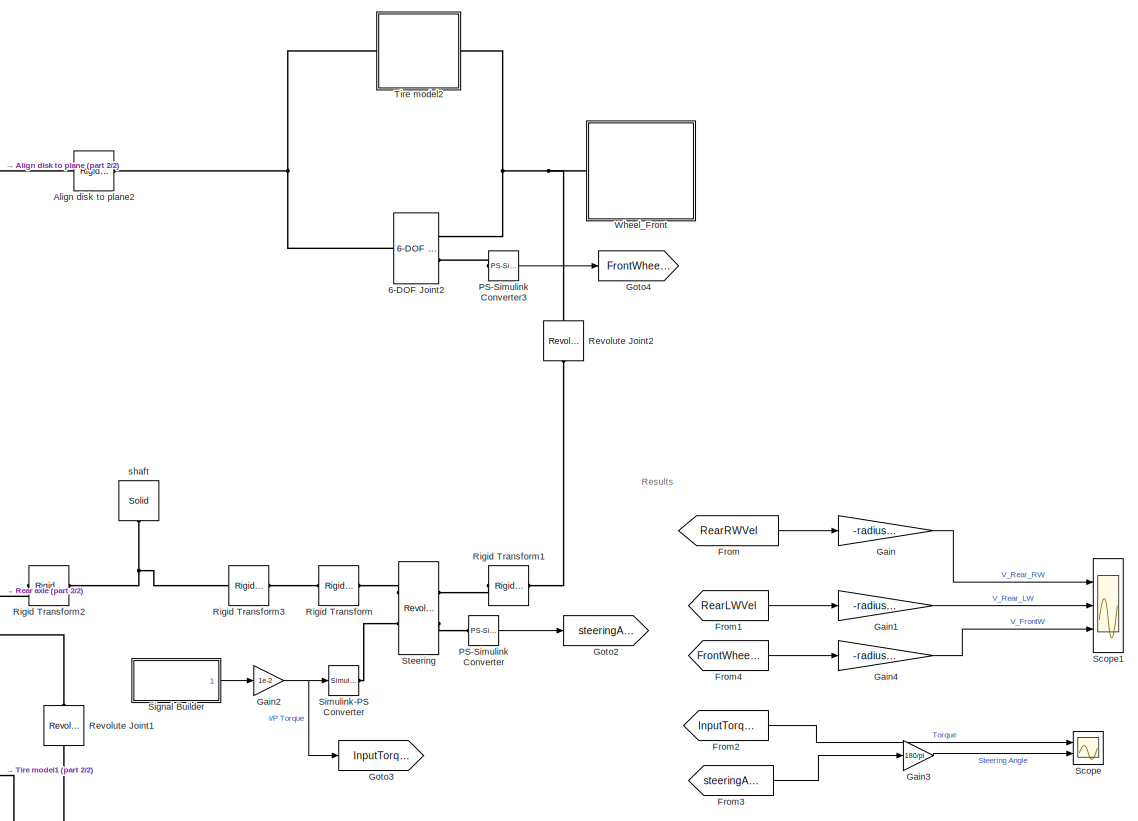
[diagram: root canvas - part 1/2, right side, full height]
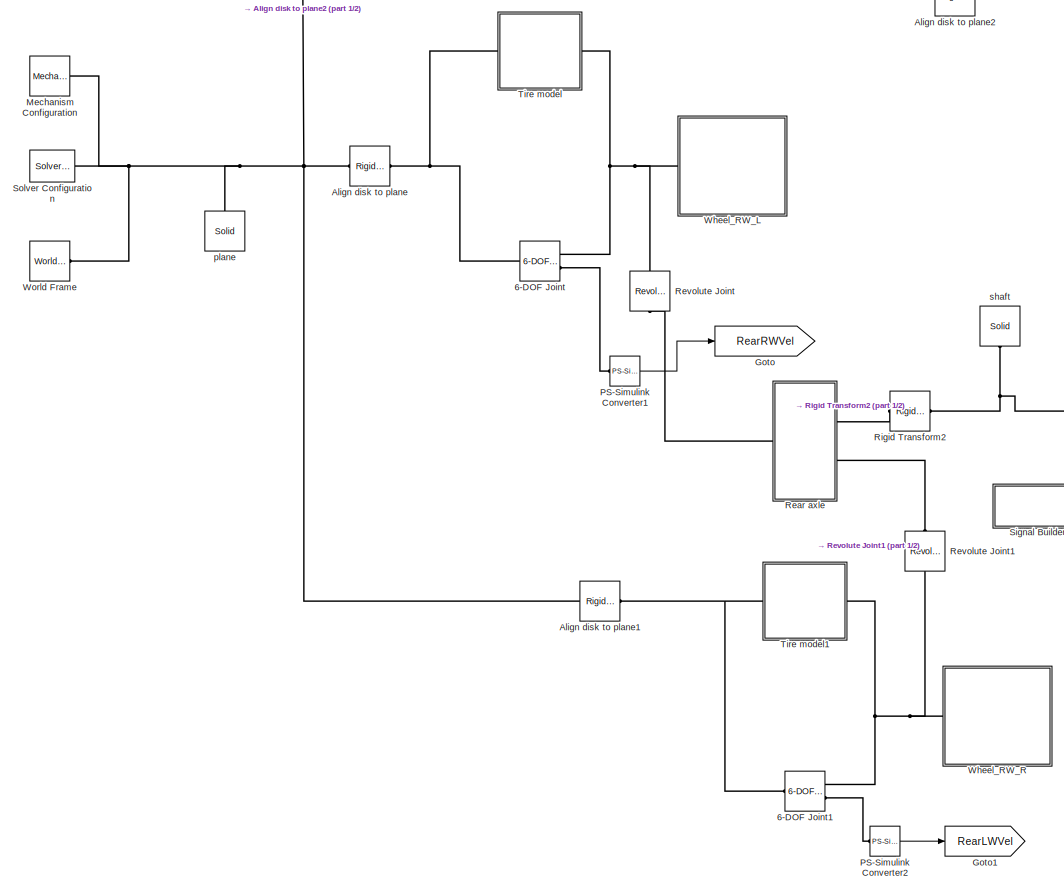
[diagram: root canvas - part 2/2, left side, full height]
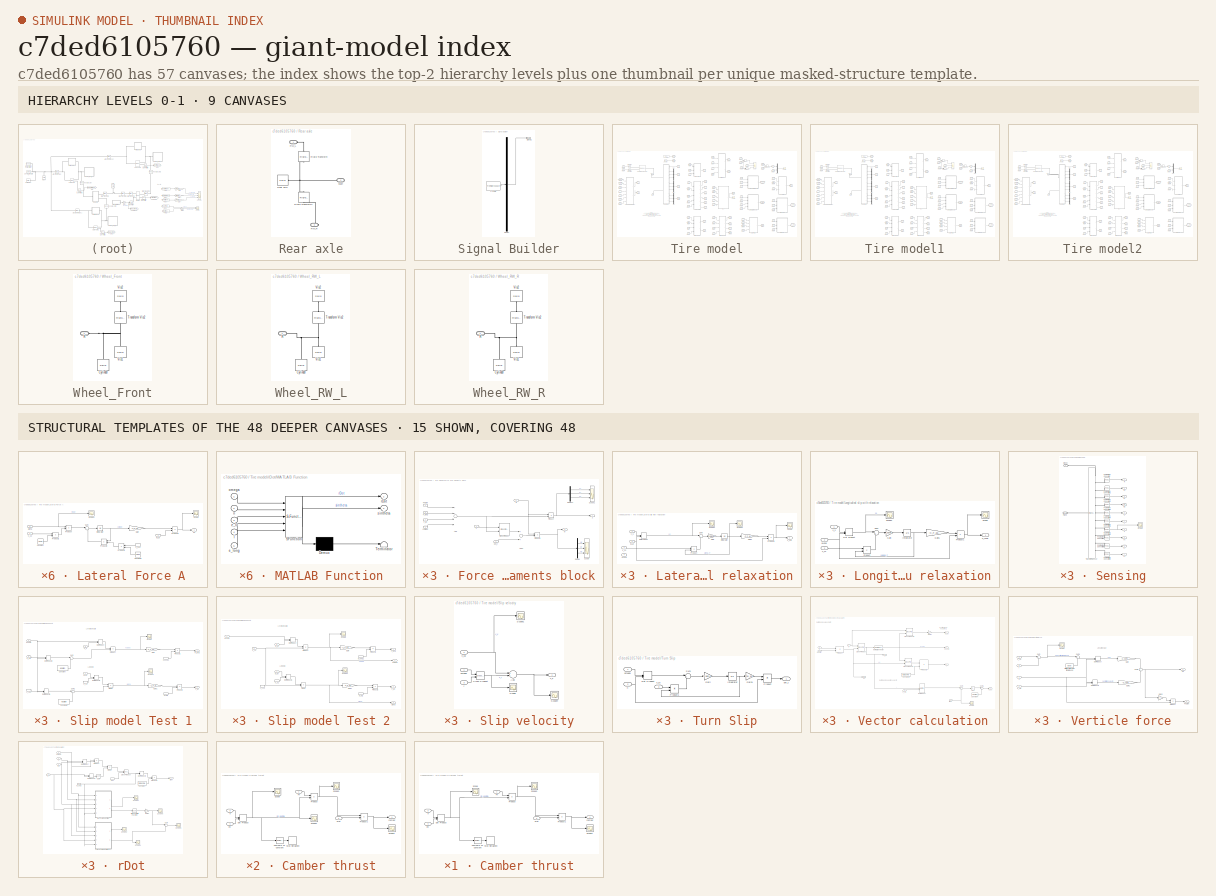
[diagram: thumbnail index - top-2 hierarchy levels (9 canvases) + 15 structural-template representatives of the remaining 48 canvases]
MODEL slx_c7ded6105760
KIND model
CONFIG AbsTol = auto
CONFIG EnableMultiTasking = off
CONFIG FixedStep = auto
CONFIG MaxStep = auto
CONFIG MinStep = auto
CONFIG RelTol = 1e-3
CONFIG SampleTimeConstraint = Unconstrained
CONFIG Solver = VariableStepAuto
CONFIG SolverName = VariableStepAuto
CONFIG StartTime = 0.0
CONFIG StopTime = 25
BLOCK [Reference] 6-DOF Joint  REF=sm_lib/Joints/6-DOF Joint
  Ports = [0, 0, 0, 0, 0, 1, 2]
  SourceBlock = sm_lib/Joints/6-DOF Joint
  SourceProductBaseCode = MS
  SourceProductName = Simscape Multibody
  SourceType = 6-DOF Joint
BLOCK [Reference] 6-DOF Joint1  REF=sm_lib/Joints/6-DOF Joint
  Ports = [0, 0, 0, 0, 0, 1, 2]
  SourceBlock = sm_lib/Joints/6-DOF Joint
  SourceProductBaseCode = MS
  SourceProductName = Simscape Multibody
  SourceType = 6-DOF Joint
BLOCK [Reference] 6-DOF Joint2  REF=sm_lib/Joints/6-DOF Joint
  Ports = [0, 0, 0, 0, 0, 1, 2]
  SourceBlock = sm_lib/Joints/6-DOF Joint
  SourceProductBaseCode = MS
  SourceProductName = Simscape Multibody
  SourceType = 6-DOF Joint
BLOCK [Reference] Align disk to plane  REF=sm_lib/Frames and
Transforms/Rigid
Transform
  Ports = [0, 0, 0, 0, 0, 1, 1]
  SourceBlock = sm_lib/Frames and\nTransforms/Rigid\nTransform
  SourceProductBaseCode = MS
  SourceProductName = Simscape Multibody
  SourceType = Rigid\nTransform
BLOCK [Reference] Align disk to plane1  REF=sm_lib/Frames and
Transforms/Rigid
Transform
  Ports = [0, 0, 0, 0, 0, 1, 1]
  SourceBlock = sm_lib/Frames and\nTransforms/Rigid\nTransform
  SourceProductBaseCode = MS
  SourceProductName = Simscape Multibody
  SourceType = Rigid\nTransform
BLOCK [Reference] Align disk to plane2  REF=sm_lib/Frames and
Transforms/Rigid
Transform
  Ports = [0, 0, 0, 0, 0, 1, 1]
  SourceBlock = sm_lib/Frames and\nTransforms/Rigid\nTransform
  SourceProductBaseCode = MS
  SourceProductName = Simscape Multibody
  SourceType = Rigid\nTransform
BLOCK [From] From
  GotoTag = RearRWVel
BLOCK [From] From1
  GotoTag = RearLWVel
BLOCK [From] From2
  GotoTag = InputTorque
BLOCK [From] From3
  GotoTag = steeringAngle
BLOCK [From] From4
  GotoTag = FrontWheelVel
BLOCK [Gain] Gain
  Gain = -radiusRW
  OutDataTypeStr = Inherit: Inherit via internal rule
  ParamDataTypeStr = Inherit: Inherit via internal rule
  SaturateOnIntegerOverflow = off
BLOCK [Gain] Gain1
  Gain = -radiusRW
  OutDataTypeStr = Inherit: Inherit via internal rule
  ParamDataTypeStr = Inherit: Inherit via internal rule
  SaturateOnIntegerOverflow = off
BLOCK [Gain] Gain2
  Gain = 1e-2
  OutDataTypeStr = Inherit: Inherit via internal rule
  ParamDataTypeStr = Inherit: Inherit via internal rule
  SaturateOnIntegerOverflow = off
BLOCK [Gain] Gain3
  Gain = 180/pi
  OutDataTypeStr = Inherit: Inherit via internal rule
  ParamDataTypeStr = Inherit: Inherit via internal rule
  SaturateOnIntegerOverflow = off
BLOCK [Gain] Gain4
  Gain = -radiusRW
  OutDataTypeStr = Inherit: Inherit via internal rule
  ParamDataTypeStr = Inherit: Inherit via internal rule
  SaturateOnIntegerOverflow = off
BLOCK [Goto] Goto
  GotoTag = RearRWVel
BLOCK [Goto] Goto1
  GotoTag = RearLWVel
BLOCK [Goto] Goto2
  GotoTag = steeringAngle
BLOCK [Goto] Goto3
  GotoTag = InputTorque
BLOCK [Goto] Goto4
  GotoTag = FrontWheelVel
BLOCK [Reference] Mechanism Configuration  REF=sm_lib/Utilities/Mechanism
Configuration
  Ports = [0, 0, 0, 0, 0, 0, 1]
  SourceBlock = sm_lib/Utilities/Mechanism\nConfiguration
  SourceProductBaseCode = MS
  SourceProductName = Simscape Multibody
  SourceType = Mechanism\nConfiguration
BLOCK [Reference] PS-Simulink Converter  REF=nesl_utility/PS-Simulink
Converter
  Ports = [0, 1, 0, 0, 0, 1]
  SourceBlock = nesl_utility/PS-Simulink\nConverter
  SourceProductBaseCode = SS
  SourceProductName = Simscape
  SourceType = PS-Simulink\nConverter
BLOCK [Reference] PS-Simulink Converter1  REF=nesl_utility/PS-Simulink
Converter
  Ports = [0, 1, 0, 0, 0, 1]
  SourceBlock = nesl_utility/PS-Simulink\nConverter
  SourceProductBaseCode = SS
  SourceProductName = Simscape
  SourceType = PS-Simulink\nConverter
BLOCK [Reference] PS-Simulink Converter2  REF=nesl_utility/PS-Simulink
Converter
  Ports = [0, 1, 0, 0, 0, 1]
  SourceBlock = nesl_utility/PS-Simulink\nConverter
  SourceProductBaseCode = SS
  SourceProductName = Simscape
  SourceType = PS-Simulink\nConverter
BLOCK [Reference] PS-Simulink Converter3  REF=nesl_utility/PS-Simulink
Converter
  Ports = [0, 1, 0, 0, 0, 1]
  SourceBlock = nesl_utility/PS-Simulink\nConverter
  SourceProductBaseCode = SS
  SourceProductName = Simscape
  SourceType = PS-Simulink\nConverter
BLOCK [SubSystem] Rear axle
  Ports = [0, 0, 0, 0, 0, 1, 2]
  RequestExecContextInheritance = off
  Variant = off
BLOCK [PMIOPort] Rear axle/RW_L
  Port = 1
  Side = Left
BLOCK [PMIOPort] Rear axle/RW_R
  Port = 3
  Side = Right
BLOCK [Reference] Rear axle/Rear axle  REF=sm_lib/Body Elements/Solid
  Ports = [0, 0, 0, 0, 0, 0, 1]
  SourceBlock = sm_lib/Body Elements/Solid
  SourceProductBaseCode = MS
  SourceProductName = Simscape Multibody
  SourceType = Solid
BLOCK [Reference] Rear axle/Rigid Transform  REF=sm_lib/Frames and
Transforms/Rigid
Transform
  Ports = [0, 0, 0, 0, 0, 1, 1]
  SourceBlock = sm_lib/Frames and\nTransforms/Rigid\nTransform
  SourceProductBaseCode = MS
  SourceProductName = Simscape Multibody
  SourceType = Rigid\nTransform
BLOCK [Reference] Rear axle/Rigid Transform1  REF=sm_lib/Frames and
Transforms/Rigid
Transform
  Ports = [0, 0, 0, 0, 0, 1, 1]
  SourceBlock = sm_lib/Frames and\nTransforms/Rigid\nTransform
  SourceProductBaseCode = MS
  SourceProductName = Simscape Multibody
  SourceType = Rigid\nTransform
BLOCK [PMIOPort] Rear axle/shaft
  Port = 2
  Side = Right
BLOCK [Reference] Revolute Joint  REF=sm_lib/Joints/Revolute Joint
  Ports = [0, 0, 0, 0, 0, 1, 1]
  SourceBlock = sm_lib/Joints/Revolute Joint
  SourceProductBaseCode = MS
  SourceProductName = Simscape Multibody
  SourceType = Revolute Joint
BLOCK [Reference] Revolute Joint1  REF=sm_lib/Joints/Revolute Joint
  Ports = [0, 0, 0, 0, 0, 1, 1]
  SourceBlock = sm_lib/Joints/Revolute Joint
  SourceProductBaseCode = MS
  SourceProductName = Simscape Multibody
  SourceType = Revolute Joint
BLOCK [Reference] Revolute Joint2  REF=sm_lib/Joints/Revolute Joint
  Ports = [0, 0, 0, 0, 0, 1, 1]
  SourceBlock = sm_lib/Joints/Revolute Joint
  SourceProductBaseCode = MS
  SourceProductName = Simscape Multibody
  SourceType = Revolute Joint
BLOCK [Reference] Rigid Transform  REF=sm_lib/Frames and
Transforms/Rigid
Transform
  Ports = [0, 0, 0, 0, 0, 1, 1]
  SourceBlock = sm_lib/Frames and\nTransforms/Rigid\nTransform
  SourceProductBaseCode = MS
  SourceProductName = Simscape Multibody
  SourceType = Rigid\nTransform
BLOCK [Reference] Rigid Transform1  REF=sm_lib/Frames and
Transforms/Rigid
Transform
  Ports = [0, 0, 0, 0, 0, 1, 1]
  SourceBlock = sm_lib/Frames and\nTransforms/Rigid\nTransform
  SourceProductBaseCode = MS
  SourceProductName = Simscape Multibody
  SourceType = Rigid\nTransform
BLOCK [Reference] Rigid Transform2  REF=sm_lib/Frames and
Transforms/Rigid
Transform
  Ports = [0, 0, 0, 0, 0, 1, 1]
  SourceBlock = sm_lib/Frames and\nTransforms/Rigid\nTransform
  SourceProductBaseCode = MS
  SourceProductName = Simscape Multibody
  SourceType = Rigid\nTransform
BLOCK [Reference] Rigid Transform3  REF=sm_lib/Frames and
Transforms/Rigid
Transform
  Ports = [0, 0, 0, 0, 0, 1, 1]
  SourceBlock = sm_lib/Frames and\nTransforms/Rigid\nTransform
  SourceProductBaseCode = MS
  SourceProductName = Simscape Multibody
  SourceType = Rigid\nTransform
BLOCK [Scope] Scope
  NumInputPorts = 2
  Ports = [2]
  ScopeSpecificationString = Simulink.scopes.TimeScopeBlockCfg('CurrentConfiguration', extmgr.ConfigurationSet(extmgr.Configuration('Core','General UI',true),extmgr.Configuration('Core','Source UI',true),extmgr.Configuration('Sources','WiredSimulink',true,'DataLoggingVariableName','ScopeData2'),extmgr.Configuration('Visuals','Time Domain',true,'SerializedDisplays',{struct('MinYLimReal','-0.00125','MaxYLimReal','0.01125','YLab...<+2117ch>
BLOCK [Scope] Scope1
  NumInputPorts = 3
  Ports = [3]
  ScopeSpecificationString = Simulink.scopes.TimeScopeBlockCfg('CurrentConfiguration', extmgr.ConfigurationSet(extmgr.Configuration('Core','General UI',true),extmgr.Configuration('Core','Source UI',true),extmgr.Configuration('Sources','WiredSimulink',true,'DataLoggingVariableName','ScopeData1'),extmgr.Configuration('Visuals','Time Domain',true,'SerializedDisplays',{struct('MinYLimReal','1.499995','MaxYLimReal','1.500045','YLa...<+2753ch>
BLOCK [SubSystem] Signal Builder
  ClipboardFcn = sigbuilder_block('clipboard');
  CloseFcn = sigbuilder_block('close');
  ContinueFcn = sigbuilder_block('continue');
  CopyFcn = sigbuilder_block('copy');
  DeleteFcn = sigbuilder_block('delete');
  LoadFcn = sigbuilder_block('load');
  MaskHideContents = on
  ModelCloseFcn = sigbuilder_block('modelClose');
  NameChangeFcn = sigbuilder_block('namechange');
  OpenFcn = sigbuilder_block('open',[437.6 199.2 550.4 400 ]);
  PauseFcn = sigbuilder_block('pause');
  Ports = [0, 1]
  PreSaveFcn = sigbuilder_block('preSave');
  RequestExecContextInheritance = off
  StartFcn = sigbuilder_block('start');
  StopFcn = sigbuilder_block('stop');
  Tag = STV Subsys
  Variant = off
BLOCK [Demux] Signal Builder/Demux
  Outputs = 1
  Ports = [1, 1]
  Tag = STV Demux
BLOCK [FromWorkspace] Signal Builder/FromWs
  SampleTime = 0
  Tag = STV FromWs
  VariableName = tuvar
  ZeroCross = on
BLOCK [Outport] Signal Builder/Signal 1
  IconDisplay = Port number
  Tag = STV Outport
BLOCK [Reference] Simulink-PS Converter  REF=nesl_utility/Simulink-PS
Converter
  Ports = [1, 0, 0, 0, 0, 0, 1]
  SourceBlock = nesl_utility/Simulink-PS\nConverter
  SourceProductBaseCode = SS
  SourceProductName = Simscape
  SourceType = Simulink-PS\nConverter
BLOCK [Reference] Solver Configuration  REF=nesl_utility/Solver
Configuration
  Ports = [0, 0, 0, 0, 0, 0, 1]
  SourceBlock = nesl_utility/Solver\nConfiguration
  SourceProductBaseCode = SS
  SourceProductName = Simscape
  SourceType = Solver\nConfiguration
BLOCK [Reference] Steering  REF=sm_lib/Joints/Revolute Joint
  Ports = [0, 0, 0, 0, 0, 2, 2]
  SourceBlock = sm_lib/Joints/Revolute Joint
  SourceProductBaseCode = MS
  SourceProductName = Simscape Multibody
  SourceType = Revolute Joint
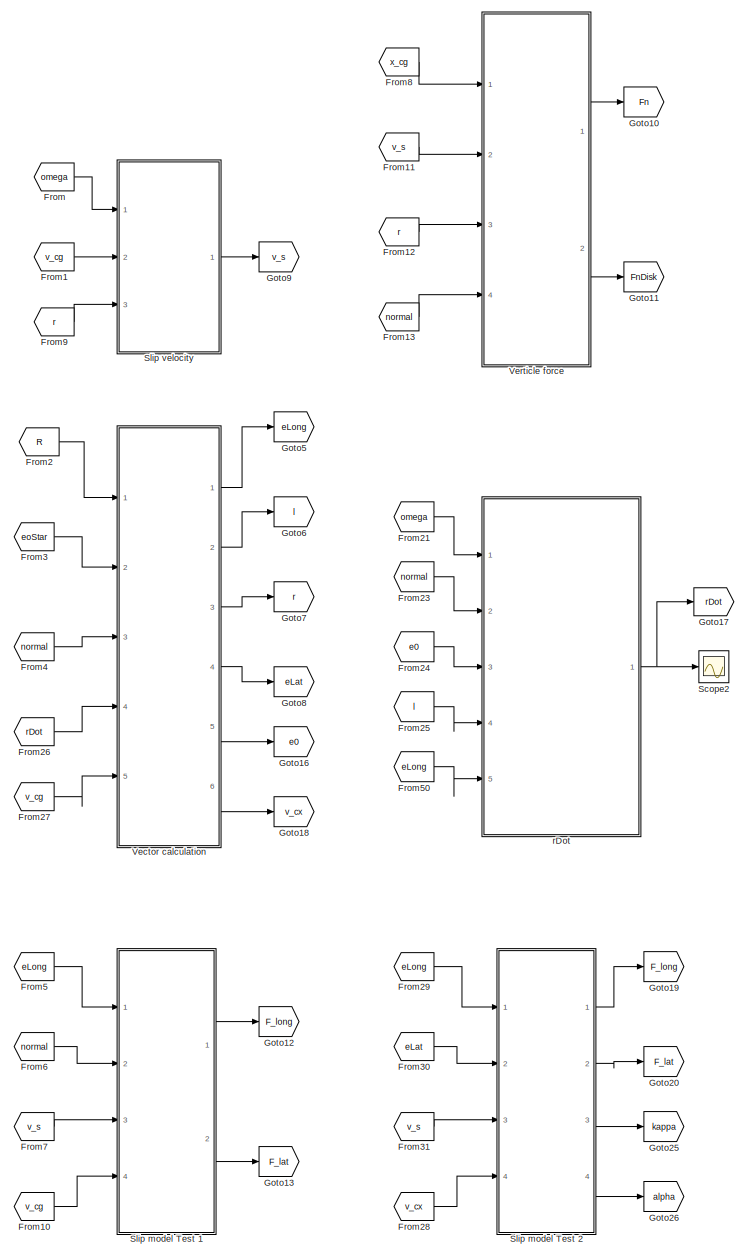
[diagram: Tire model - part 1/3, center side, full height]
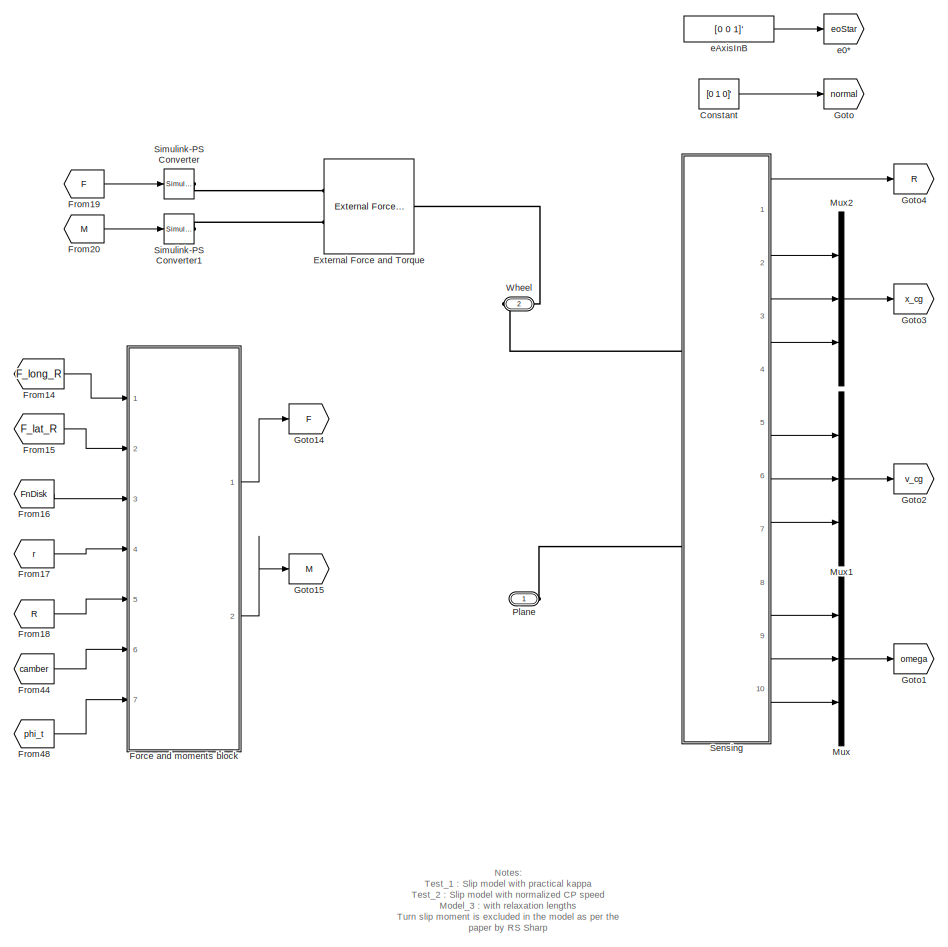
[diagram: Tire model - part 2/3, left side, full height]
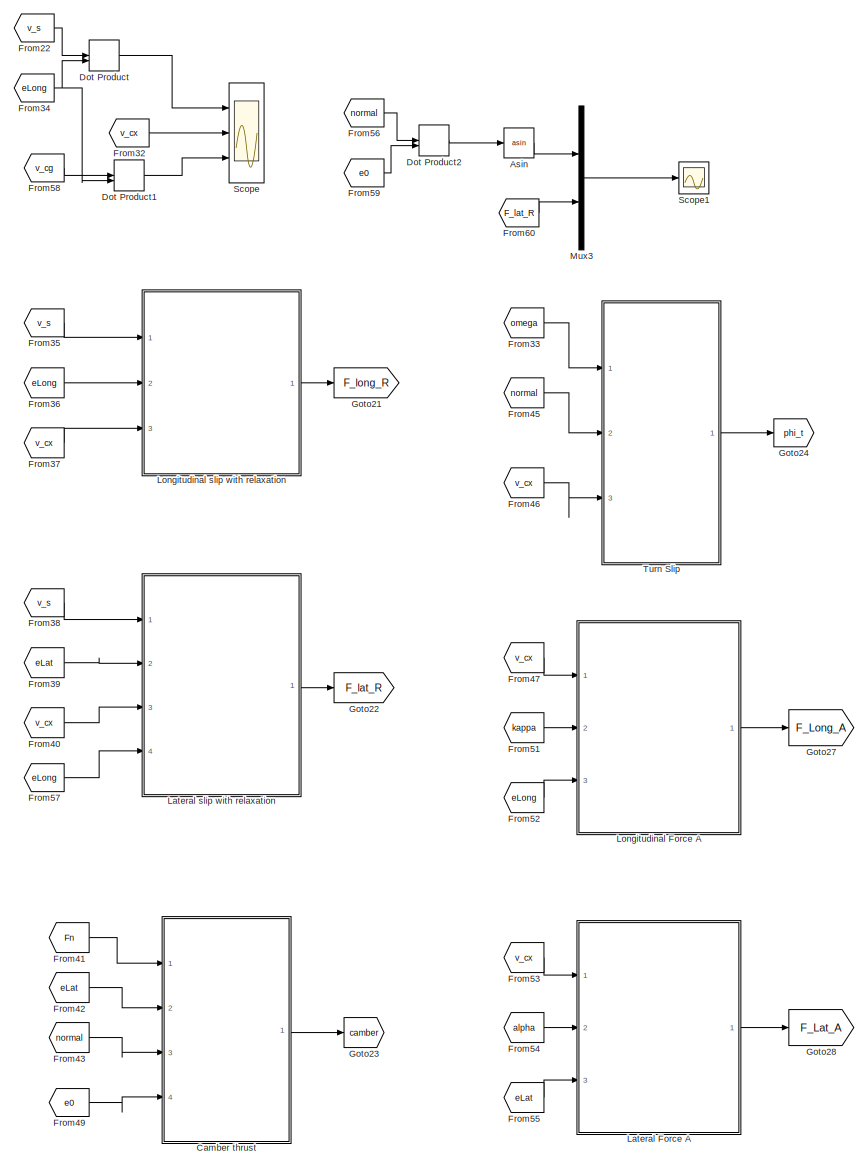
[diagram: Tire model - part 3/3, right side, full height]
BLOCK [SubSystem] Tire model
  Ports = [0, 0, 0, 0, 0, 1, 1]
  RequestExecContextInheritance = off
  Variant = off
BLOCK [Trigonometry] Tire model/Asin
  Operator = asin
  Ports = [1, 1]
BLOCK [SubSystem] Tire model/Camber thrust
  Ports = [4, 1]
  RequestExecContextInheritance = off
  Variant = off
BLOCK [Reference] Tire model/Camber thrust/Compare To Constant  REF=simulink/Logic and Bit
Operations/Compare
To Constant
  Ports = [1, 1]
  SourceBlock = simulink/Logic and Bit\nOperations/Compare\nTo Constant
  SourceProductBaseCode = SL
  SourceProductName = Simulink
  SourceType = Compare To Constant
BLOCK [DotProduct] Tire model/Camber thrust/Dot Product
  OutDataTypeStr = Inherit: Inherit via internal rule
BLOCK [Inport] Tire model/Camber thrust/Fn
  IconDisplay = Port number
BLOCK [Product] Tire model/Camber thrust/Product
  InputSameDT = off
  OutDataTypeStr = Inherit: Inherit via internal rule
  Ports = [2, 1]
  RndMeth = Floor
  SaturateOnIntegerOverflow = off
BLOCK [Product] Tire model/Camber thrust/Product1
  InputSameDT = off
  OutDataTypeStr = Inherit: Inherit via internal rule
  Ports = [2, 1]
  RndMeth = Floor
  SaturateOnIntegerOverflow = off
BLOCK [Scope] Tire model/Camber thrust/Scope
  NumInputPorts = 1
  Ports = [1]
  ScopeSpecificationString = Simulink.scopes.TimeScopeBlockCfg('CurrentConfiguration', extmgr.ConfigurationSet(extmgr.Configuration('Core','General UI',true),extmgr.Configuration('Core','Source UI',true),extmgr.Configuration('Sources','WiredSimulink',true,'DataLoggingVariableName','ScopeData6'),extmgr.Configuration('Visuals','Time Domain',true,'SerializedDisplays',{struct('MinYLimReal','-0.00000004','MaxYLimReal','0.000000012...<+1425ch>
BLOCK [Scope] Tire model/Camber thrust/Scope1
  NumInputPorts = 1
  Ports = [1]
  ScopeSpecificationString = Simulink.scopes.TimeScopeBlockCfg('CurrentConfiguration', extmgr.ConfigurationSet(extmgr.Configuration('Core','General UI',true),extmgr.Configuration('Core','Source UI',true),extmgr.Configuration('Sources','WiredSimulink',true,'DataLoggingVariableName','ScopeData3'),extmgr.Configuration('Visuals','Time Domain',true,'SerializedDisplays',{struct('MinYLimReal','-26.07789','MaxYLimReal','14.70995','YL...<+1499ch>  <repeated x3 — deduplicated; at blocks: Scope1>
BLOCK [Scope] Tire model/Camber thrust/Scope2
  NumInputPorts = 1
  Ports = [1]
  ScopeSpecificationString = Simulink.scopes.TimeScopeBlockCfg('CurrentConfiguration', extmgr.ConfigurationSet(extmgr.Configuration('Core','General UI',true),extmgr.Configuration('Core','Source UI',true),extmgr.Configuration('Sources','WiredSimulink',true,'DataLoggingVariableName','ScopeData10'),extmgr.Configuration('Visuals','Time Domain',true,'SerializedDisplays',{struct('MinYLimReal','-0.00000004','MaxYLimReal','0.00000001...<+1427ch>
BLOCK [Scope] Tire model/Camber thrust/Scope3
  NumInputPorts = 1
  Ports = [1]
  ScopeSpecificationString = Simulink.scopes.TimeScopeBlockCfg('CurrentConfiguration', extmgr.ConfigurationSet(extmgr.Configuration('Core','General UI',true),extmgr.Configuration('Core','Source UI',true),extmgr.Configuration('Sources','WiredSimulink',true,'DataLoggingVariableName','ScopeData11'),extmgr.Configuration('Visuals','Time Domain',true,'SerializedDisplays',{struct('MinYLimReal','-0.0000014','MaxYLimReal','0.0000004',...<+1410ch>
BLOCK [Stop] Tire model/Camber thrust/Stop Simulation
BLOCK [Outport] Tire model/Camber thrust/camber
  IconDisplay = Port number
BLOCK [Inport] Tire model/Camber thrust/e0
  IconDisplay = Port number
  Port = 4
BLOCK [Inport] Tire model/Camber thrust/eLat
  IconDisplay = Port number
  Port = 2
BLOCK [Inport] Tire model/Camber thrust/n
  IconDisplay = Port number
  Port = 3
BLOCK [Constant] Tire model/Constant
  Value = [0 1 0]'
BLOCK [DotProduct] Tire model/Dot Product
  Commented = on
  OutDataTypeStr = Inherit: Inherit via internal rule
BLOCK [DotProduct] Tire model/Dot Product1
  Commented = on
  OutDataTypeStr = Inherit: Inherit via internal rule
BLOCK [DotProduct] Tire model/Dot Product2
  OutDataTypeStr = Inherit: Inherit via internal rule
BLOCK [Reference] Tire model/External Force and Torque  REF=sm_lib/Forces and
Torques/External Force
and Torque
  Ports = [0, 0, 0, 0, 0, 2, 1]
  SourceBlock = sm_lib/Forces and\nTorques/External Force\nand Torque
  SourceProductBaseCode = MS
  SourceProductName = Simscape Multibody
  SourceType = External Force\nand Torque
BLOCK [SubSystem] Tire model/Force and moments block
  Ports = [7, 2]
  RequestExecContextInheritance = off
  Variant = off
BLOCK [Sum] Tire model/Force and moments block/Add
  InputSameDT = off
  Inputs = 4
  OutDataTypeStr = Inherit: Inherit via internal rule
  Ports = [4, 1]
  SaturateOnIntegerOverflow = off
BLOCK [Sum] Tire model/Force and moments block/Add1
  InputSameDT = off
  OutDataTypeStr = Inherit: Inherit via internal rule
  Ports = [2, 1]
  SaturateOnIntegerOverflow = off
BLOCK [Reference] Tire model/Force and moments block/Cross Product  REF=vrlib/Utilities/Cross Product
  Ports = [2, 1]
  SourceBlock = vrlib/Utilities/Cross Product
  SourceProductBaseCode = VR
  SourceProductName = Simulink 3D Animation
  SourceType = Cross Product
BLOCK [Demux] Tire model/Force and moments block/Demux
  DisplayOption = bar
  Outputs = 3
  Ports = [1, 3]
BLOCK [Demux] Tire model/Force and moments block/Demux1
  DisplayOption = bar
  Outputs = 3
  Ports = [1, 3]
BLOCK [Outport] Tire model/Force and moments block/F
  IconDisplay = Port number
BLOCK [Inport] Tire model/Force and moments block/F_lat
  IconDisplay = Port number
  Port = 2
BLOCK [Inport] Tire model/Force and moments block/F_long
  IconDisplay = Port number
BLOCK [Inport] Tire model/Force and moments block/FnDisk
  IconDisplay = Port number
  Port = 3
BLOCK [Outport] Tire model/Force and moments block/M
  IconDisplay = Port number
  Port = 2
BLOCK [Product] Tire model/Force and moments block/Product
  InputSameDT = off
  Inputs = /*
  Multiplication = Matrix(*)
  OutDataTypeStr = Inherit: Inherit via internal rule
  Ports = [2, 1]
  RndMeth = Floor
  SaturateOnIntegerOverflow = off
BLOCK [Product] Tire model/Force and moments block/Product1
  InputSameDT = off
  Inputs = /*
  Multiplication = Matrix(*)
  OutDataTypeStr = Inherit: Inherit via internal rule
  Ports = [2, 1]
  RndMeth = Floor
  SaturateOnIntegerOverflow = off
BLOCK [Inport] Tire model/Force and moments block/R
  IconDisplay = Port number
  Port = 5
BLOCK [Scope] Tire model/Force and moments block/Scope
  NumInputPorts = 3
  Ports = [3]
  ScopeSpecificationString = Simulink.scopes.TimeScopeBlockCfg('CurrentConfiguration', extmgr.ConfigurationSet(extmgr.Configuration('Core','General UI',true),extmgr.Configuration('Core','Source UI',true),extmgr.Configuration('Sources','WiredSimulink',true,'DataLoggingVariableName','ScopeData5'),extmgr.Configuration('Visuals','Time Domain',true,'SerializedDisplays',{struct('MinYLimReal','-66.57046','MaxYLimReal','58.75336','YL...<+2809ch>  <repeated x3 — deduplicated; at blocks: Scope>
BLOCK [Scope] Tire model/Force and moments block/Scope1
  NumInputPorts = 3
  Ports = [3]
  ScopeSpecificationString = Simulink.scopes.TimeScopeBlockCfg('CurrentConfiguration', extmgr.ConfigurationSet(extmgr.Configuration('Core','General UI',true),extmgr.Configuration('Core','Source UI',true),extmgr.Configuration('Sources','WiredSimulink',true,'DataLoggingVariableName','ScopeData4'),extmgr.Configuration('Visuals','Time Domain',true,'SerializedDisplays',{struct('MinYLimReal','-24.52536','MaxYLimReal','24.52493','YL...<+2786ch>  <repeated x3 — deduplicated; at blocks: Scope1>
BLOCK [Inport] Tire model/Force and moments block/camber
  IconDisplay = Port number
  Port = 6
BLOCK [Inport] Tire model/Force and moments block/phi_t
  IconDisplay = Port number
  Port = 7
BLOCK [Inport] Tire model/Force and moments block/r
  IconDisplay = Port number
  Port = 4
BLOCK [From] Tire model/From
  GotoTag = omega
BLOCK [From] Tire model/From1
  GotoTag = v_cg
BLOCK [From] Tire model/From10
  Commented = on
  GotoTag = v_cg
BLOCK [From] Tire model/From11
  GotoTag = v_s
BLOCK [From] Tire model/From12
  GotoTag = r
BLOCK [From] Tire model/From13
  GotoTag = normal
BLOCK [From] Tire model/From14
  GotoTag = F_long_R
BLOCK [From] Tire model/From15
  GotoTag = F_lat_R
BLOCK [From] Tire model/From16
  GotoTag = FnDisk
BLOCK [From] Tire model/From17
  GotoTag = r
BLOCK [From] Tire model/From18
  GotoTag = R
BLOCK [From] Tire model/From19
  GotoTag = F
BLOCK [From] Tire model/From2
  GotoTag = R
BLOCK [From] Tire model/From20
  GotoTag = M
BLOCK [From] Tire model/From21
  GotoTag = omega
BLOCK [From] Tire model/From22
  Commented = on
  GotoTag = v_s
BLOCK [From] Tire model/From23
  GotoTag = normal
BLOCK [From] Tire model/From24
  GotoTag = e0
BLOCK [From] Tire model/From25
  GotoTag = l
BLOCK [From] Tire model/From26
  GotoTag = rDot
BLOCK [From] Tire model/From27
  GotoTag = v_cg
BLOCK [From] Tire model/From28
  GotoTag = v_cx
BLOCK [From] Tire model/From29
  GotoTag = eLong
BLOCK [From] Tire model/From3
  GotoTag = eoStar
BLOCK [From] Tire model/From30
  GotoTag = eLat
BLOCK [From] Tire model/From31
  GotoTag = v_s
BLOCK [From] Tire model/From32
  Commented = on
  GotoTag = v_cx
BLOCK [From] Tire model/From33
  GotoTag = omega
BLOCK [From] Tire model/From34
  Commented = on
  GotoTag = eLong
BLOCK [From] Tire model/From35
  GotoTag = v_s
BLOCK [From] Tire model/From36
  GotoTag = eLong
BLOCK [From] Tire model/From37
  GotoTag = v_cx
BLOCK [From] Tire model/From38
  GotoTag = v_s
BLOCK [From] Tire model/From39
  GotoTag = eLat
BLOCK [From] Tire model/From4
  GotoTag = normal
BLOCK [From] Tire model/From40
  GotoTag = v_cx
BLOCK [From] Tire model/From41
  GotoTag = Fn
BLOCK [From] Tire model/From42
  GotoTag = eLat
BLOCK [From] Tire model/From43
  GotoTag = normal
BLOCK [From] Tire model/From44
  GotoTag = camber
BLOCK [From] Tire model/From45
  GotoTag = normal
BLOCK [From] Tire model/From46
  GotoTag = v_cx
BLOCK [From] Tire model/From47
  Commented = on
  GotoTag = v_cx
BLOCK [From] Tire model/From48
  GotoTag = phi_t
BLOCK [From] Tire model/From49
  GotoTag = e0
BLOCK [From] Tire model/From5
  Commented = on
  GotoTag = eLong
BLOCK [From] Tire model/From50
  GotoTag = eLong
BLOCK [From] Tire model/From51
  Commented = on
  GotoTag = kappa
BLOCK [From] Tire model/From52
  Commented = on
  GotoTag = eLong
BLOCK [From] Tire model/From53
  Commented = on
  GotoTag = v_cx
BLOCK [From] Tire model/From54
  Commented = on
  GotoTag = alpha
BLOCK [From] Tire model/From55
  Commented = on
  GotoTag = eLat
BLOCK [From] Tire model/From56
  GotoTag = normal
BLOCK [From] Tire model/From57
  GotoTag = eLong
BLOCK [From] Tire model/From58
  Commented = on
  GotoTag = v_cg
BLOCK [From] Tire model/From59
  GotoTag = e0
BLOCK [From] Tire model/From6
  Commented = on
  GotoTag = normal
BLOCK [From] Tire model/From60
  GotoTag = F_lat_R
BLOCK [From] Tire model/From7
  Commented = on
  GotoTag = v_s
BLOCK [From] Tire model/From8
  GotoTag = x_cg
BLOCK [From] Tire model/From9
  GotoTag = r
BLOCK [Goto] Tire model/Goto
  GotoTag = normal
BLOCK [Goto] Tire model/Goto1
  GotoTag = omega
BLOCK [Goto] Tire model/Goto10
  GotoTag = Fn
BLOCK [Goto] Tire model/Goto11
  GotoTag = FnDisk
BLOCK [Goto] Tire model/Goto12
  Commented = on
  GotoTag = F_long
BLOCK [Goto] Tire model/Goto13
  Commented = on
  GotoTag = F_lat
BLOCK [Goto] Tire model/Goto14
  GotoTag = F
BLOCK [Goto] Tire model/Goto15
  GotoTag = M
BLOCK [Goto] Tire model/Goto16
  GotoTag = e0
BLOCK [Goto] Tire model/Goto17
  GotoTag = rDot
BLOCK [Goto] Tire model/Goto18
  GotoTag = v_cx
BLOCK [Goto] Tire model/Goto19
  GotoTag = F_long
BLOCK [Goto] Tire model/Goto2
  GotoTag = v_cg
BLOCK [Goto] Tire model/Goto20
  GotoTag = F_lat
BLOCK [Goto] Tire model/Goto21
  GotoTag = F_long_R
BLOCK [Goto] Tire model/Goto22
  GotoTag = F_lat_R
BLOCK [Goto] Tire model/Goto23
  GotoTag = camber
BLOCK [Goto] Tire model/Goto24
  GotoTag = phi_t
BLOCK [Goto] Tire model/Goto25
  GotoTag = kappa
BLOCK [Goto] Tire model/Goto26
  GotoTag = alpha
BLOCK [Goto] Tire model/Goto27
  Commented = on
  GotoTag = F_Long_A
BLOCK [Goto] Tire model/Goto28
  Commented = on
  GotoTag = F_Lat_A
BLOCK [Goto] Tire model/Goto3
  GotoTag = x_cg
BLOCK [Goto] Tire model/Goto4
  GotoTag = R
BLOCK [Goto] Tire model/Goto5
  GotoTag = eLong
BLOCK [Goto] Tire model/Goto6
  GotoTag = l
BLOCK [Goto] Tire model/Goto7
  GotoTag = r
BLOCK [Goto] Tire model/Goto8
  GotoTag = eLat
BLOCK [Goto] Tire model/Goto9
  GotoTag = v_s
BLOCK [SubSystem] Tire model/Lateral Force A
  Commented = on
  Ports = [3, 1]
  RequestExecContextInheritance = off
  Variant = off
BLOCK [Constant] Tire model/Lateral Force A/Constant
  Value = sigma
BLOCK [Constant] Tire model/Lateral Force A/Constant1
  Value = sigma
BLOCK [Outport] Tire model/Lateral Force A/Fz
  IconDisplay = Port number
BLOCK [Gain] Tire model/Lateral Force A/Gain
  Gain = -C_F_alpha
  OutDataTypeStr = Inherit: Inherit via internal rule
  ParamDataTypeStr = Inherit: Inherit via internal rule
  SaturateOnIntegerOverflow = off
BLOCK [Integrator] Tire model/Lateral Force A/Integrator
  Ports = [1, 1]
BLOCK [Product] Tire model/Lateral Force A/Product
  InputSameDT = off
  OutDataTypeStr = Inherit: Inherit via internal rule
  Ports = [2, 1]
  RndMeth = Floor
  SaturateOnIntegerOverflow = off
BLOCK [Product] Tire model/Lateral Force A/Product1
  InputSameDT = off
  OutDataTypeStr = Inherit: Inherit via internal rule
  Ports = [2, 1]
  RndMeth = Floor
  SaturateOnIntegerOverflow = off
BLOCK [Product] Tire model/Lateral Force A/Product2
  InputSameDT = off
  OutDataTypeStr = Inherit: Inherit via internal rule
  Ports = [2, 1]
  RndMeth = Floor
  SaturateOnIntegerOverflow = off
BLOCK [Product] Tire model/Lateral Force A/Product3
  InputSameDT = off
  OutDataTypeStr = Inherit: Inherit via internal rule
  Ports = [2, 1]
  RndMeth = Floor
  SaturateOnIntegerOverflow = off
BLOCK [Product] Tire model/Lateral Force A/Product4
  InputSameDT = off
  OutDataTypeStr = Inherit: Inherit via internal rule
  Ports = [2, 1]
  RndMeth = Floor
  SaturateOnIntegerOverflow = off
BLOCK [Scope] Tire model/Lateral Force A/Scope
  NumInputPorts = 1
  Ports = [1]
  ScopeSpecificationString = Simulink.scopes.TimeScopeBlockCfg('CurrentConfiguration', extmgr.ConfigurationSet(extmgr.Configuration('Core','General UI',true),extmgr.Configuration('Core','Source UI',true),extmgr.Configuration('Sources','WiredSimulink',true,'DataLoggingVariableName','ScopeData1'),extmgr.Configuration('Visuals','Time Domain',true,'SerializedDisplays',{struct('MinYLimReal','-50.51292','MaxYLimReal','37.87807','YL...<+1455ch>  <repeated x3 — deduplicated; at blocks: Scope>
BLOCK [Scope] Tire model/Lateral Force A/Scope1
  NumInputPorts = 1
  Ports = [1]
  ScopeSpecificationString = Simulink.scopes.TimeScopeBlockCfg('CurrentConfiguration', extmgr.ConfigurationSet(extmgr.Configuration('Core','General UI',true),extmgr.Configuration('Core','Source UI',true),extmgr.Configuration('Sources','WiredSimulink',true,'DataLoggingVariableName','ScopeData2'),extmgr.Configuration('Visuals','Time Domain',true,'SerializedDisplays',{struct('MinYLimReal','-57.26425','MaxYLimReal','71.87686','YL...<+1425ch>  <repeated x3 — deduplicated; at blocks: Scope1>
BLOCK [Sum] Tire model/Lateral Force A/Sum
  IconShape = round
  InputSameDT = off
  Inputs = |+-
  OutDataTypeStr = Inherit: Inherit via internal rule
  Ports = [2, 1]
  SaturateOnIntegerOverflow = off
BLOCK [Inport] Tire model/Lateral Force A/alpha
  IconDisplay = Port number
  Port = 2
BLOCK [Inport] Tire model/Lateral Force A/eLat
  IconDisplay = Port number
  Port = 3
BLOCK [Inport] Tire model/Lateral Force A/v_cx
  IconDisplay = Port number
BLOCK [InportShadow] Tire model/Lateral Force A/v_cx1
  IconDisplay = Port number
BLOCK [SubSystem] Tire model/Lateral slip with relaxation
  Ports = [4, 1]
  RequestExecContextInheritance = off
  Variant = off
BLOCK [DotProduct] Tire model/Lateral slip with relaxation/Dot Product
  OutDataTypeStr = Inherit: Inherit via internal rule
BLOCK [Outport] Tire model/Lateral slip with relaxation/F_Lat
  IconDisplay = Port number
BLOCK [Gain] Tire model/Lateral slip with relaxation/Gain
  Gain = 1/sigma
  OutDataTypeStr = Inherit: Inherit via internal rule
  ParamDataTypeStr = Inherit: Inherit via internal rule
  SaturateOnIntegerOverflow = off
BLOCK [Gain] Tire model/Lateral slip with relaxation/Gain1
  Gain = -C_F_alpha
  OutDataTypeStr = Inherit: Inherit via internal rule
  ParamDataTypeStr = Inherit: Inherit via internal rule
  SaturateOnIntegerOverflow = off
BLOCK [Integrator] Tire model/Lateral slip with relaxation/Integrator
  Ports = [1, 1]
BLOCK [Product] Tire model/Lateral slip with relaxation/Product
  InputSameDT = off
  OutDataTypeStr = Inherit: Inherit via internal rule
  Ports = [2, 1]
  RndMeth = Floor
  SaturateOnIntegerOverflow = off
BLOCK [Product] Tire model/Lateral slip with relaxation/Product1
  InputSameDT = off
  OutDataTypeStr = Inherit: Inherit via internal rule
  Ports = [2, 1]
  RndMeth = Floor
  SaturateOnIntegerOverflow = off
BLOCK [Scope] Tire model/Lateral slip with relaxation/Scope
  NumInputPorts = 1
  Ports = [1]
  ScopeSpecificationString = Simulink.scopes.TimeScopeBlockCfg('CurrentConfiguration', extmgr.ConfigurationSet(extmgr.Configuration('Core','General UI',true),extmgr.Configuration('Core','Source UI',true),extmgr.Configuration('Sources','WiredSimulink',true,'DataLoggingVariableName','ScopeData4'),extmgr.Configuration('Visuals','Time Domain',true,'SerializedDisplays',{struct('MinYLimReal','-8.38765','MaxYLimReal','7.69064','YLab...<+1493ch>  <repeated x3 — deduplicated; at blocks: Scope>
BLOCK [Scope] Tire model/Lateral slip with relaxation/Scope1
  NumInputPorts = 1
  Ports = [1]
  ScopeSpecificationString = Simulink.scopes.TimeScopeBlockCfg('CurrentConfiguration', extmgr.ConfigurationSet(extmgr.Configuration('Core','General UI',true),extmgr.Configuration('Core','Source UI',true),extmgr.Configuration('Sources','WiredSimulink',true,'DataLoggingVariableName','ScopeData3'),extmgr.Configuration('Visuals','Time Domain',true,'SerializedDisplays',{struct('MinYLimReal','-0.02985','MaxYLimReal','0.0284','YLabe...<+1405ch>  <repeated x3 — deduplicated; at blocks: Scope1>
BLOCK [Scope] Tire model/Lateral slip with relaxation/Scope2
  NumInputPorts = 1
  Ports = [1]
  ScopeSpecificationString = Simulink.scopes.TimeScopeBlockCfg('CurrentConfiguration', extmgr.ConfigurationSet(extmgr.Configuration('Core','General UI',true),extmgr.Configuration('Core','Source UI',true),extmgr.Configuration('Sources','WiredSimulink',true,'DataLoggingVariableName','ScopeData2'),extmgr.Configuration('Visuals','Time Domain',true,'SerializedDisplays',{struct('MinYLimReal','-0.00001','MaxYLimReal','0.000006','YLa...<+1424ch>
BLOCK [Sum] Tire model/Lateral slip with relaxation/Sum
  IconShape = round
  InputSameDT = off
  Inputs = |+-
  OutDataTypeStr = Inherit: Inherit via internal rule
  Ports = [2, 1]
  SaturateOnIntegerOverflow = off
BLOCK [Inport] Tire model/Lateral slip with relaxation/eLat
  IconDisplay = Port number
  Port = 2
BLOCK [Inport] Tire model/Lateral slip with relaxation/eLong
  IconDisplay = Port number
  Port = 4
BLOCK [Inport] Tire model/Lateral slip with relaxation/v_cx
  IconDisplay = Port number
  Port = 3
BLOCK [Inport] Tire model/Lateral slip with relaxation/v_s
  IconDisplay = Port number
BLOCK [SubSystem] Tire model/Longitudinal Force A
  Commented = on
  Ports = [3, 1]
  RequestExecContextInheritance = off
  Variant = off
BLOCK [Constant] Tire model/Longitudinal Force A/Constant
  Value = sigma
BLOCK [Constant] Tire model/Longitudinal Force A/Constant1
  Value = sigma
BLOCK [Outport] Tire model/Longitudinal Force A/Fx
  IconDisplay = Port number
BLOCK [Gain] Tire model/Longitudinal Force A/Gain
  Gain = -C_F_kappa
  OutDataTypeStr = Inherit: Inherit via internal rule
  ParamDataTypeStr = Inherit: Inherit via internal rule
  SaturateOnIntegerOverflow = off
BLOCK [Integrator] Tire model/Longitudinal Force A/Integrator
  Ports = [1, 1]
BLOCK [Product] Tire model/Longitudinal Force A/Product
  InputSameDT = off
  OutDataTypeStr = Inherit: Inherit via internal rule
  Ports = [2, 1]
  RndMeth = Floor
  SaturateOnIntegerOverflow = off
BLOCK [Product] Tire model/Longitudinal Force A/Product1
  InputSameDT = off
  OutDataTypeStr = Inherit: Inherit via internal rule
  Ports = [2, 1]
  RndMeth = Floor
  SaturateOnIntegerOverflow = off
BLOCK [Product] Tire model/Longitudinal Force A/Product2
  InputSameDT = off
  OutDataTypeStr = Inherit: Inherit via internal rule
  Ports = [2, 1]
  RndMeth = Floor
  SaturateOnIntegerOverflow = off
BLOCK [Product] Tire model/Longitudinal Force A/Product3
  InputSameDT = off
  OutDataTypeStr = Inherit: Inherit via internal rule
  Ports = [2, 1]
  RndMeth = Floor
  SaturateOnIntegerOverflow = off
BLOCK [Product] Tire model/Longitudinal Force A/Product4
  InputSameDT = off
  OutDataTypeStr = Inherit: Inherit via internal rule
  Ports = [2, 1]
  RndMeth = Floor
  SaturateOnIntegerOverflow = off
BLOCK [Scope] Tire model/Longitudinal Force A/Scope
  NumInputPorts = 1
  Ports = [1]
  ScopeSpecificationString = Simulink.scopes.TimeScopeBlockCfg('CurrentConfiguration', extmgr.ConfigurationSet(extmgr.Configuration('Core','General UI',true),extmgr.Configuration('Core','Source UI',true),extmgr.Configuration('Sources','WiredSimulink',true,'DataLoggingVariableName','ScopeData1'),extmgr.Configuration('Visuals','Time Domain',true,'SerializedDisplays',{struct('MinYLimReal','-58.40108','MaxYLimReal','60.5257','YLa...<+1451ch>  <repeated x3 — deduplicated; at blocks: Scope>
BLOCK [Scope] Tire model/Longitudinal Force A/Scope1
  NumInputPorts = 1
  Ports = [1]
  ScopeSpecificationString = Simulink.scopes.TimeScopeBlockCfg('CurrentConfiguration', extmgr.ConfigurationSet(extmgr.Configuration('Core','General UI',true),extmgr.Configuration('Core','Source UI',true),extmgr.Configuration('Sources','WiredSimulink',true,'DataLoggingVariableName','ScopeData2'),extmgr.Configuration('Visuals','Time Domain',true,'SerializedDisplays',{struct('MinYLimReal','-119.66099','MaxYLimReal','135.70614','...<+1408ch>  <repeated x3 — deduplicated; at blocks: Scope1>
BLOCK [Sum] Tire model/Longitudinal Force A/Sum
  IconShape = round
  InputSameDT = off
  Inputs = |+-
  OutDataTypeStr = Inherit: Inherit via internal rule
  Ports = [2, 1]
  SaturateOnIntegerOverflow = off
BLOCK [Inport] Tire model/Longitudinal Force A/eLong
  IconDisplay = Port number
  Port = 3
BLOCK [Inport] Tire model/Longitudinal Force A/kappa
  IconDisplay = Port number
  Port = 2
BLOCK [Inport] Tire model/Longitudinal Force A/v_cx
  IconDisplay = Port number
BLOCK [InportShadow] Tire model/Longitudinal Force A/v_cx1
  IconDisplay = Port number
BLOCK [SubSystem] Tire model/Longitudinal slip with relaxation
  Ports = [3, 1]
  RequestExecContextInheritance = off
  Variant = off
BLOCK [DotProduct] Tire model/Longitudinal slip with relaxation/Dot Product
  OutDataTypeStr = Inherit: Inherit via internal rule
BLOCK [Outport] Tire model/Longitudinal slip with relaxation/F_Long
  IconDisplay = Port number
BLOCK [Gain] Tire model/Longitudinal slip with relaxation/Gain
  Gain = 1/sigma
  OutDataTypeStr = Inherit: Inherit via internal rule
  ParamDataTypeStr = Inherit: Inherit via internal rule
  SaturateOnIntegerOverflow = off
BLOCK [Gain] Tire model/Longitudinal slip with relaxation/Gain1
  Gain = -C_F_kappa
  OutDataTypeStr = Inherit: Inherit via internal rule
  ParamDataTypeStr = Inherit: Inherit via internal rule
  SaturateOnIntegerOverflow = off
BLOCK [Integrator] Tire model/Longitudinal slip with relaxation/Integrator
  Ports = [1, 1]
BLOCK [Product] Tire model/Longitudinal slip with relaxation/Product
  InputSameDT = off
  OutDataTypeStr = Inherit: Inherit via internal rule
  Ports = [2, 1]
  RndMeth = Floor
  SaturateOnIntegerOverflow = off
BLOCK [Product] Tire model/Longitudinal slip with relaxation/Product1
  InputSameDT = off
  OutDataTypeStr = Inherit: Inherit via internal rule
  Ports = [2, 1]
  RndMeth = Floor
  SaturateOnIntegerOverflow = off
BLOCK [Scope] Tire model/Longitudinal slip with relaxation/Scope
  NumInputPorts = 1
  Ports = [1]
  ScopeSpecificationString = Simulink.scopes.TimeScopeBlockCfg('CurrentConfiguration', extmgr.ConfigurationSet(extmgr.Configuration('Core','General UI',true),extmgr.Configuration('Core','Source UI',true),extmgr.Configuration('Sources','WiredSimulink',true,'DataLoggingVariableName','ScopeData3'),extmgr.Configuration('Visuals','Time Domain',true,'SerializedDisplays',{struct('MinYLimReal','-2.68529','MaxYLimReal','2.7036','YLabe...<+1465ch>  <repeated x3 — deduplicated; at blocks: Scope>
BLOCK [Scope] Tire model/Longitudinal slip with relaxation/Scope1
  NumInputPorts = 1
  Ports = [1]
  ScopeSpecificationString = Simulink.scopes.TimeScopeBlockCfg('CurrentConfiguration', extmgr.ConfigurationSet(extmgr.Configuration('Core','General UI',true),extmgr.Configuration('Core','Source UI',true),extmgr.Configuration('Sources','WiredSimulink',true,'DataLoggingVariableName','ScopeData3'),extmgr.Configuration('Visuals','Time Domain',true,'SerializedDisplays',{struct('MinYLimReal','-0.0001','MaxYLimReal','0.00013','YLabe...<+1388ch>  <repeated x3 — deduplicated; at blocks: Scope1>
BLOCK [Sum] Tire model/Longitudinal slip with relaxation/Sum
  IconShape = round
  InputSameDT = off
  Inputs = |+-
  OutDataTypeStr = Inherit: Inherit via internal rule
  Ports = [2, 1]
  SaturateOnIntegerOverflow = off
BLOCK [Inport] Tire model/Longitudinal slip with relaxation/eLong
  IconDisplay = Port number
  Port = 2
BLOCK [Inport] Tire model/Longitudinal slip with relaxation/v_cx
  IconDisplay = Port number
  Port = 3
BLOCK [Inport] Tire model/Longitudinal slip with relaxation/v_s
  IconDisplay = Port number
BLOCK [Mux] Tire model/Mux
  DisplayOption = bar
  Inputs = 3
  Ports = [3, 1]
BLOCK [Mux] Tire model/Mux1
  DisplayOption = bar
  Inputs = 3
  Ports = [3, 1]
BLOCK [Mux] Tire model/Mux2
  DisplayOption = bar
  Inputs = 3
  Ports = [3, 1]
BLOCK [Mux] Tire model/Mux3
  DisplayOption = bar
  Inputs = 2
  Ports = [2, 1]
BLOCK [PMIOPort] Tire model/Plane
  Port = 1
  Side = Left
BLOCK [Scope] Tire model/Scope
  Commented = on
  NumInputPorts = 3
  Ports = [3]
  ScopeSpecificationString = Simulink.scopes.TimeScopeBlockCfg('CurrentConfiguration', extmgr.ConfigurationSet(extmgr.Configuration('Core','General UI',true),extmgr.Configuration('Core','Source UI',true),extmgr.Configuration('Sources','WiredSimulink',true,'DataLoggingVariableName','ScopeData1'),extmgr.Configuration('Visuals','Time Domain',true,'SerializedDisplays',{struct('MinYLimReal','-12014490364.71066','MaxYLimReal','8765...<+2859ch>  <repeated x3 — deduplicated; at blocks: Scope>
BLOCK [Scope] Tire model/Scope1
  NumInputPorts = 1
  Ports = [1]
  ScopeSpecificationString = Simulink.scopes.TimeScopeBlockCfg('CurrentConfiguration', extmgr.ConfigurationSet(extmgr.Configuration('Core','General UI',true),extmgr.Configuration('Core','Source UI',true),extmgr.Configuration('Sources','WiredSimulink',true,'DataLoggingVariableName','ScopeData4'),extmgr.Configuration('Visuals','Time Domain',true,'SerializedDisplays',{struct('MinYLimReal','-0.0000000095','MaxYLimReal','0.0000000...<+1574ch>  <repeated x3 — deduplicated; at blocks: Scope1>
BLOCK [Scope] Tire model/Scope2
  NumInputPorts = 1
  Ports = [1]
  ScopeSpecificationString = Simulink.scopes.TimeScopeBlockCfg('CurrentConfiguration', extmgr.ConfigurationSet(extmgr.Configuration('Core','General UI',true),extmgr.Configuration('Core','Source UI',true),extmgr.Configuration('Sources','WiredSimulink',true,'DataLoggingVariableName','ScopeData5'),extmgr.Configuration('Visuals','Time Domain',true,'SerializedDisplays',{struct('MinYLimReal','-14.12789','MaxYLimReal','1.56977','YLa...<+1367ch>  <repeated x3 — deduplicated; at blocks: Scope2>
BLOCK [SubSystem] Tire model/Sensing
  Ports = [0, 10, 0, 0, 0, 2]
  RequestExecContextInheritance = off
  Variant = off
BLOCK [Reference] Tire model/Sensing/PS-Simulink Converter  REF=nesl_utility/PS-Simulink
Converter
  Ports = [0, 1, 0, 0, 0, 1]
  SourceBlock = nesl_utility/PS-Simulink\nConverter
  SourceProductBaseCode = SS
  SourceProductName = Simscape
  SourceType = PS-Simulink\nConverter
BLOCK [Reference] Tire model/Sensing/PS-Simulink Converter1  REF=nesl_utility/PS-Simulink
Converter
  Ports = [0, 1, 0, 0, 0, 1]
  SourceBlock = nesl_utility/PS-Simulink\nConverter
  SourceProductBaseCode = SS
  SourceProductName = Simscape
  SourceType = PS-Simulink\nConverter
BLOCK [Reference] Tire model/Sensing/PS-Simulink Converter2  REF=nesl_utility/PS-Simulink
Converter
  Ports = [0, 1, 0, 0, 0, 1]
  SourceBlock = nesl_utility/PS-Simulink\nConverter
  SourceProductBaseCode = SS
  SourceProductName = Simscape
  SourceType = PS-Simulink\nConverter
BLOCK [Reference] Tire model/Sensing/PS-Simulink Converter3  REF=nesl_utility/PS-Simulink
Converter
  Ports = [0, 1, 0, 0, 0, 1]
  SourceBlock = nesl_utility/PS-Simulink\nConverter
  SourceProductBaseCode = SS
  SourceProductName = Simscape
  SourceType = PS-Simulink\nConverter
BLOCK [Reference] Tire model/Sensing/PS-Simulink Converter4  REF=nesl_utility/PS-Simulink
Converter
  Ports = [0, 1, 0, 0, 0, 1]
  SourceBlock = nesl_utility/PS-Simulink\nConverter
  SourceProductBaseCode = SS
  SourceProductName = Simscape
  SourceType = PS-Simulink\nConverter
BLOCK [Reference] Tire model/Sensing/PS-Simulink Converter5  REF=nesl_utility/PS-Simulink
Converter
  Ports = [0, 1, 0, 0, 0, 1]
  SourceBlock = nesl_utility/PS-Simulink\nConverter
  SourceProductBaseCode = SS
  SourceProductName = Simscape
  SourceType = PS-Simulink\nConverter
BLOCK [Reference] Tire model/Sensing/PS-Simulink Converter6  REF=nesl_utility/PS-Simulink
Converter
  Ports = [0, 1, 0, 0, 0, 1]
  SourceBlock = nesl_utility/PS-Simulink\nConverter
  SourceProductBaseCode = SS
  SourceProductName = Simscape
  SourceType = PS-Simulink\nConverter
BLOCK [Reference] Tire model/Sensing/PS-Simulink Converter7  REF=nesl_utility/PS-Simulink
Converter
  Ports = [0, 1, 0, 0, 0, 1]
  SourceBlock = nesl_utility/PS-Simulink\nConverter
  SourceProductBaseCode = SS
  SourceProductName = Simscape
  SourceType = PS-Simulink\nConverter
BLOCK [Reference] Tire model/Sensing/PS-Simulink Converter8  REF=nesl_utility/PS-Simulink
Converter
  Ports = [0, 1, 0, 0, 0, 1]
  SourceBlock = nesl_utility/PS-Simulink\nConverter
  SourceProductBaseCode = SS
  SourceProductName = Simscape
  SourceType = PS-Simulink\nConverter
BLOCK [Reference] Tire model/Sensing/PS-Simulink Converter9  REF=nesl_utility/PS-Simulink
Converter
  Ports = [0, 1, 0, 0, 0, 1]
  SourceBlock = nesl_utility/PS-Simulink\nConverter
  SourceProductBaseCode = SS
  SourceProductName = Simscape
  SourceType = PS-Simulink\nConverter
BLOCK [PMIOPort] Tire model/Sensing/Plane
  Port = 2
  Side = Left
BLOCK [Outport] Tire model/Sensing/R
  IconDisplay = Port number
BLOCK [Scope] Tire model/Sensing/Scope
  NumInputPorts = 1
  Ports = [1]
  ScopeSpecificationString = Simulink.scopes.TimeScopeBlockCfg('CurrentConfiguration', extmgr.ConfigurationSet(extmgr.Configuration('Core','General UI',true),extmgr.Configuration('Core','Source UI',true),extmgr.Configuration('Sources','WiredSimulink',true,'DataLoggingVariableName','ScopeData7'),extmgr.Configuration('Visuals','Time Domain',true,'SerializedDisplays',{struct('MinYLimReal','-0.0000000036','MaxYLimReal','0.0000000...<+1494ch>  <repeated x3 — deduplicated; at blocks: Scope>
BLOCK [Reference] Tire model/Sensing/Transform Sensor  REF=sm_lib/Frames and
Transforms/Transform
Sensor
  Ports = [0, 0, 0, 0, 0, 1, 11]
  SourceBlock = sm_lib/Frames and\nTransforms/Transform\nSensor
  SourceProductBaseCode = MS
  SourceProductName = Simscape Multibody
  SourceType = Transform\nSensor
BLOCK [PMIOPort] Tire model/Sensing/Wheel
  Port = 1
  Side = Left
BLOCK [Outport] Tire model/Sensing/vx
  IconDisplay = Port number
  Port = 5
BLOCK [Outport] Tire model/Sensing/vy
  IconDisplay = Port number
  Port = 6
BLOCK [Outport] Tire model/Sensing/vz
  IconDisplay = Port number
  Port = 7
BLOCK [Outport] Tire model/Sensing/wx
  IconDisplay = Port number
  Port = 8
BLOCK [Outport] Tire model/Sensing/wy
  IconDisplay = Port number
  Port = 9
BLOCK [Outport] Tire model/Sensing/wz
  IconDisplay = Port number
  Port = 10
BLOCK [Outport] Tire model/Sensing/x
  IconDisplay = Port number
  Port = 2
BLOCK [Outport] Tire model/Sensing/y
  IconDisplay = Port number
  Port = 3
BLOCK [Outport] Tire model/Sensing/z
  IconDisplay = Port number
  Port = 4
BLOCK [Reference] Tire model/Simulink-PS Converter  REF=nesl_utility/Simulink-PS
Converter
  Ports = [1, 0, 0, 0, 0, 0, 1]
  SourceBlock = nesl_utility/Simulink-PS\nConverter
  SourceProductBaseCode = SS
  SourceProductName = Simscape
  SourceType = Simulink-PS\nConverter
BLOCK [Reference] Tire model/Simulink-PS Converter1  REF=nesl_utility/Simulink-PS
Converter
  Ports = [1, 0, 0, 0, 0, 0, 1]
  SourceBlock = nesl_utility/Simulink-PS\nConverter
  SourceProductBaseCode = SS
  SourceProductName = Simscape
  SourceType = Simulink-PS\nConverter
BLOCK [SubSystem] Tire model/Slip model Test 1
  Commented = on
  Ports = [4, 2]
  RequestExecContextInheritance = off
  Variant = off
BLOCK [Constant] Tire model/Slip model Test 1/Constant
  Value = epsilon
BLOCK [Constant] Tire model/Slip model Test 1/Constant1
  Value = epsilon
BLOCK [Product] Tire model/Slip model Test 1/Divide
  InputSameDT = off
  Inputs = */
  OutDataTypeStr = Inherit: Inherit via internal rule
  Ports = [2, 1]
  RndMeth = Floor
  SaturateOnIntegerOverflow = off
BLOCK [DotProduct] Tire model/Slip model Test 1/Dot Product
  OutDataTypeStr = Inherit: Inherit via internal rule
BLOCK [DotProduct] Tire model/Slip model Test 1/Dot Product1
  OutDataTypeStr = Inherit: Inherit via internal rule
BLOCK [DotProduct] Tire model/Slip model Test 1/Dot Product2
  OutDataTypeStr = Inherit: Inherit via internal rule
BLOCK [DotProduct] Tire model/Slip model Test 1/Dot Product3
  OutDataTypeStr = Inherit: Inherit via internal rule
BLOCK [Outport] Tire model/Slip model Test 1/F_lat
  IconDisplay = Port number
  Port = 2
BLOCK [Outport] Tire model/Slip model Test 1/F_long
  IconDisplay = Port number
BLOCK [Gain] Tire model/Slip model Test 1/Gain
  Gain = -C_F_kappa
  OutDataTypeStr = Inherit: Inherit via internal rule
  ParamDataTypeStr = Inherit: Inherit via internal rule
  SaturateOnIntegerOverflow = off
BLOCK [Gain] Tire model/Slip model Test 1/Gain1
  Gain = -C_F_alpha
  OutDataTypeStr = Inherit: Inherit via internal rule
  ParamDataTypeStr = Inherit: Inherit via internal rule
  SaturateOnIntegerOverflow = off
BLOCK [Product] Tire model/Slip model Test 1/Product
  InputSameDT = off
  Inputs = */
  OutDataTypeStr = Inherit: Inherit via internal rule
  Ports = [2, 1]
  RndMeth = Floor
  SaturateOnIntegerOverflow = off
BLOCK [Product] Tire model/Slip model Test 1/Product1
  InputSameDT = off
  OutDataTypeStr = Inherit: Inherit via internal rule
  Ports = [2, 1]
  RndMeth = Floor
  SaturateOnIntegerOverflow = off
BLOCK [Product] Tire model/Slip model Test 1/Product2
  InputSameDT = off
  OutDataTypeStr = Inherit: Inherit via internal rule
  Ports = [2, 1]
  RndMeth = Floor
  SaturateOnIntegerOverflow = off
BLOCK [Scope] Tire model/Slip model Test 1/Scope
  NumInputPorts = 1
  Ports = [1]
  ScopeSpecificationString = Simulink.scopes.TimeScopeBlockCfg('CurrentConfiguration', extmgr.ConfigurationSet(extmgr.Configuration('Core','General UI',true),extmgr.Configuration('Core','Source UI',true),extmgr.Configuration('Sources','WiredSimulink',true),extmgr.Configuration('Visuals','Time Domain',true,'SerializedDisplays',{struct('MinYLimReal','-0.00000000000000009','MaxYLimReal','0.00000000000000001','YLabelReal','','Min...<+1476ch>  <repeated x3 — deduplicated; at blocks: Scope>
BLOCK [Scope] Tire model/Slip model Test 1/Scope1
  NumInputPorts = 1
  Ports = [1]
  ScopeSpecificationString = Simulink.scopes.TimeScopeBlockCfg('CurrentConfiguration', extmgr.ConfigurationSet(extmgr.Configuration('Core','General UI',true),extmgr.Configuration('Core','Source UI',true),extmgr.Configuration('Sources','WiredSimulink',true,'DataLoggingVariableName','ScopeData1'),extmgr.Configuration('Visuals','Time Domain',true,'SerializedDisplays',{struct('MinYLimReal','-0.02013','MaxYLimReal','0.00224','YLab...<+1418ch>  <repeated x3 — deduplicated; at blocks: Scope1>
BLOCK [Sum] Tire model/Slip model Test 1/Sum
  IconShape = round
  InputSameDT = off
  Inputs = |++
  OutDataTypeStr = Inherit: Inherit via internal rule
  Ports = [2, 1]
  SaturateOnIntegerOverflow = off
BLOCK [Sum] Tire model/Slip model Test 1/Sum1
  IconShape = round
  InputSameDT = off
  Inputs = |++
  OutDataTypeStr = Inherit: Inherit via internal rule
  Ports = [2, 1]
  SaturateOnIntegerOverflow = off
BLOCK [Inport] Tire model/Slip model Test 1/eLat
  IconDisplay = Port number
  Port = 2
BLOCK [InportShadow] Tire model/Slip model Test 1/eLat1
  IconDisplay = Port number
  Port = 2
BLOCK [Inport] Tire model/Slip model Test 1/eLong
  IconDisplay = Port number
BLOCK [InportShadow] Tire model/Slip model Test 1/eLong1
  IconDisplay = Port number
BLOCK [Inport] Tire model/Slip model Test 1/v_cg
  IconDisplay = Port number
  Port = 4
BLOCK [InportShadow] Tire model/Slip model Test 1/v_cg1
  IconDisplay = Port number
  Port = 4
BLOCK [Inport] Tire model/Slip model Test 1/v_s
  IconDisplay = Port number
  Port = 3
BLOCK [InportShadow] Tire model/Slip model Test 1/v_s1
  IconDisplay = Port number
  Port = 3
BLOCK [SubSystem] Tire model/Slip model Test 2
  Ports = [4, 4]
  RequestExecContextInheritance = off
  Variant = off
BLOCK [Product] Tire model/Slip model Test 2/Divide
  InputSameDT = off
  Inputs = */
  OutDataTypeStr = Inherit: Inherit via internal rule
  Ports = [2, 1]
  RndMeth = Floor
  SaturateOnIntegerOverflow = off
BLOCK [DotProduct] Tire model/Slip model Test 2/Dot Product
  OutDataTypeStr = Inherit: Inherit via internal rule
BLOCK [DotProduct] Tire model/Slip model Test 2/Dot Product1
  OutDataTypeStr = Inherit: Inherit via internal rule
BLOCK [Outport] Tire model/Slip model Test 2/F_lat
  IconDisplay = Port number
  Port = 2
BLOCK [Outport] Tire model/Slip model Test 2/F_long
  IconDisplay = Port number
BLOCK [Gain] Tire model/Slip model Test 2/Gain
  Gain = -C_F_kappa
  OutDataTypeStr = Inherit: Inherit via internal rule
  ParamDataTypeStr = Inherit: Inherit via internal rule
  SaturateOnIntegerOverflow = off
BLOCK [Gain] Tire model/Slip model Test 2/Gain1
  Gain = -C_F_alpha
  OutDataTypeStr = Inherit: Inherit via internal rule
  ParamDataTypeStr = Inherit: Inherit via internal rule
  SaturateOnIntegerOverflow = off
BLOCK [Product] Tire model/Slip model Test 2/Product
  InputSameDT = off
  Inputs = */
  OutDataTypeStr = Inherit: Inherit via internal rule
  Ports = [2, 1]
  RndMeth = Floor
  SaturateOnIntegerOverflow = off
BLOCK [Product] Tire model/Slip model Test 2/Product1
  InputSameDT = off
  OutDataTypeStr = Inherit: Inherit via internal rule
  Ports = [2, 1]
  RndMeth = Floor
  SaturateOnIntegerOverflow = off
BLOCK [Product] Tire model/Slip model Test 2/Product2
  InputSameDT = off
  OutDataTypeStr = Inherit: Inherit via internal rule
  Ports = [2, 1]
  RndMeth = Floor
  SaturateOnIntegerOverflow = off
BLOCK [Scope] Tire model/Slip model Test 2/Scope
  NumInputPorts = 1
  Ports = [1]
  ScopeSpecificationString = Simulink.scopes.TimeScopeBlockCfg('CurrentConfiguration', extmgr.ConfigurationSet(extmgr.Configuration('Core','General UI',true),extmgr.Configuration('Core','Source UI',true),extmgr.Configuration('Sources','WiredSimulink',true),extmgr.Configuration('Visuals','Time Domain',true,'SerializedDisplays',{struct('MinYLimReal','-0.00982','MaxYLimReal','0.01045','YLabelReal','','MinYLimMag','0.00000','MaxY...<+1426ch>  <repeated x3 — deduplicated; at blocks: Scope>
BLOCK [Scope] Tire model/Slip model Test 2/Scope1
  NumInputPorts = 1
  Ports = [1]
  ScopeSpecificationString = Simulink.scopes.TimeScopeBlockCfg('CurrentConfiguration', extmgr.ConfigurationSet(extmgr.Configuration('Core','General UI',true),extmgr.Configuration('Core','Source UI',true),extmgr.Configuration('Sources','WiredSimulink',true,'DataLoggingVariableName','ScopeData1'),extmgr.Configuration('Visuals','Time Domain',true,'SerializedDisplays',{struct('MinYLimReal','-0.20635','MaxYLimReal','0.32737','YLab...<+1419ch>  <repeated x3 — deduplicated; at blocks: Scope1>
BLOCK [Outport] Tire model/Slip model Test 2/alpha
  IconDisplay = Port number
  Port = 4
BLOCK [Inport] Tire model/Slip model Test 2/eLat
  IconDisplay = Port number
  Port = 2
BLOCK [InportShadow] Tire model/Slip model Test 2/eLat1
  IconDisplay = Port number
  Port = 2
BLOCK [Inport] Tire model/Slip model Test 2/eLong
  IconDisplay = Port number
BLOCK [InportShadow] Tire model/Slip model Test 2/eLong1
  IconDisplay = Port number
BLOCK [Outport] Tire model/Slip model Test 2/kappa
  IconDisplay = Port number
  Port = 3
BLOCK [Inport] Tire model/Slip model Test 2/v_cx
  IconDisplay = Port number
  Port = 4
BLOCK [InportShadow] Tire model/Slip model Test 2/v_cx1
  IconDisplay = Port number
  Port = 4
BLOCK [Inport] Tire model/Slip model Test 2/v_s
  IconDisplay = Port number
  Port = 3
BLOCK [InportShadow] Tire model/Slip model Test 2/v_s1
  IconDisplay = Port number
  Port = 3
BLOCK [SubSystem] Tire model/Slip velocity
  Ports = [3, 1]
  RequestExecContextInheritance = off
  Variant = off
BLOCK [Sum] Tire model/Slip velocity/Add
  InputSameDT = off
  OutDataTypeStr = Inherit: Inherit via internal rule
  Ports = [2, 1]
  SaturateOnIntegerOverflow = off
BLOCK [Reference] Tire model/Slip velocity/Cross Product  REF=vrlib/Utilities/Cross Product
  Ports = [2, 1]
  SourceBlock = vrlib/Utilities/Cross Product
  SourceProductBaseCode = VR
  SourceProductName = Simulink 3D Animation
  SourceType = Cross Product
BLOCK [Scope] Tire model/Slip velocity/Scope
  NumInputPorts = 1
  Ports = [1]
  ScopeSpecificationString = Simulink.scopes.TimeScopeBlockCfg('CurrentConfiguration', extmgr.ConfigurationSet(extmgr.Configuration('Core','General UI',true),extmgr.Configuration('Core','Source UI',true),extmgr.Configuration('Sources','WiredSimulink',true,'DataLoggingVariableName','ScopeData6'),extmgr.Configuration('Visuals','Time Domain',true,'SerializedDisplays',{struct('MinYLimReal','-0.6975','MaxYLimReal','0.0775','YLabel...<+1472ch>  <repeated x3 — deduplicated; at blocks: Scope>
BLOCK [Scope] Tire model/Slip velocity/Scope1
  NumInputPorts = 1
  Ports = [1]
  ScopeSpecificationString = Simulink.scopes.TimeScopeBlockCfg('CurrentConfiguration', extmgr.ConfigurationSet(extmgr.Configuration('Core','General UI',true),extmgr.Configuration('Core','Source UI',true),extmgr.Configuration('Sources','WiredSimulink',true,'DataLoggingVariableName','ScopeData1'),extmgr.Configuration('Visuals','Time Domain',true,'SerializedDisplays',{struct('MinYLimReal','-0.00000014','MaxYLimReal','0.00000037'...<+1475ch>  <repeated x3 — deduplicated; at blocks: Scope1>
BLOCK [Scope] Tire model/Slip velocity/Scope4
  NumInputPorts = 1
  Ports = [1]
  ScopeSpecificationString = Simulink.scopes.TimeScopeBlockCfg('CurrentConfiguration', extmgr.ConfigurationSet(extmgr.Configuration('Core','General UI',true),extmgr.Configuration('Core','Source UI',true),extmgr.Configuration('Sources','WiredSimulink',true,'DataLoggingVariableName','ScopeData12'),extmgr.Configuration('Visuals','Time Domain',true,'SerializedDisplays',{struct('MinYLimReal','-0.00022','MaxYLimReal','0.00022','YLa...<+1477ch>  <repeated x3 — deduplicated; at blocks: Scope4>
BLOCK [Inport] Tire model/Slip velocity/omega
  IconDisplay = Port number
BLOCK [Inport] Tire model/Slip velocity/r
  IconDisplay = Port number
  Port = 3
BLOCK [Inport] Tire model/Slip velocity/v_cg
  IconDisplay = Port number
  Port = 2
BLOCK [Outport] Tire model/Slip velocity/v_s
  IconDisplay = Port number
BLOCK [SubSystem] Tire model/Turn Slip
  Ports = [3, 1]
  RequestExecContextInheritance = off
  Variant = off
BLOCK [DotProduct] Tire model/Turn Slip/Dot Product
  OutDataTypeStr = Inherit: Inherit via internal rule
BLOCK [Gain] Tire model/Turn Slip/Gain
  Gain = 1/sigma
  OutDataTypeStr = Inherit: Inherit via internal rule
  ParamDataTypeStr = Inherit: Inherit via internal rule
  SaturateOnIntegerOverflow = off
BLOCK [Gain] Tire model/Turn Slip/Gain1
  Gain = -CM_phi
  OutDataTypeStr = Inherit: Inherit via internal rule
  ParamDataTypeStr = Inherit: Inherit via internal rule
  SaturateOnIntegerOverflow = off
BLOCK [Integrator] Tire model/Turn Slip/Integrator
  Ports = [1, 1]
BLOCK [Product] Tire model/Turn Slip/Product
  InputSameDT = off
  OutDataTypeStr = Inherit: Inherit via internal rule
  Ports = [2, 1]
  RndMeth = Floor
  SaturateOnIntegerOverflow = off
BLOCK [Product] Tire model/Turn Slip/Product1
  InputSameDT = off
  OutDataTypeStr = Inherit: Inherit via internal rule
  Ports = [2, 1]
  RndMeth = Floor
  SaturateOnIntegerOverflow = off
BLOCK [Sum] Tire model/Turn Slip/Sum
  IconShape = round
  InputSameDT = off
  Inputs = |+-
  OutDataTypeStr = Inherit: Inherit via internal rule
  Ports = [2, 1]
  SaturateOnIntegerOverflow = off
BLOCK [Inport] Tire model/Turn Slip/n
  IconDisplay = Port number
  Port = 2
BLOCK [Inport] Tire model/Turn Slip/omega
  IconDisplay = Port number
BLOCK [Outport] Tire model/Turn Slip/phi_t
  IconDisplay = Port number
BLOCK [Inport] Tire model/Turn Slip/v_cx
  IconDisplay = Port number
  Port = 3
BLOCK [SubSystem] Tire model/Vector calculation
  Ports = [5, 6]
  RequestExecContextInheritance = off
  Variant = off
BLOCK [Abs] Tire model/Vector calculation/Abs
  SaturateOnIntegerOverflow = off
  ZeroCross = off
BLOCK [Constant] Tire model/Vector calculation/Constant
  Value = epsilon
BLOCK [Constant] Tire model/Vector calculation/Constant1
  Value = radiusRW
BLOCK [Reference] Tire model/Vector calculation/Cross Product  REF=vrlib/Utilities/Cross Product
  Ports = [2, 1]
  SourceBlock = vrlib/Utilities/Cross Product
  SourceProductBaseCode = VR
  SourceProductName = Simulink 3D Animation
  SourceType = Cross Product
BLOCK [Reference] Tire model/Vector calculation/Cross Product1  REF=vrlib/Utilities/Cross Product
  Ports = [2, 1]
  SourceBlock = vrlib/Utilities/Cross Product
  SourceProductBaseCode = VR
  SourceProductName = Simulink 3D Animation
  SourceType = Cross Product
BLOCK [Reference] Tire model/Vector calculation/Cross Product2  REF=vrlib/Utilities/Cross Product
  Ports = [2, 1]
  SourceBlock = vrlib/Utilities/Cross Product
  SourceProductBaseCode = VR
  SourceProductName = Simulink 3D Animation
  SourceType = Cross Product
BLOCK [DotProduct] Tire model/Vector calculation/Dot Product
  OutDataTypeStr = Inherit: Inherit via internal rule
BLOCK [Gain] Tire model/Vector calculation/Gain1
  Commented = through
  Gain = -1
  OutDataTypeStr = Inherit: Inherit via internal rule
  ParamDataTypeStr = Inherit: Inherit via internal rule
  SaturateOnIntegerOverflow = off
BLOCK [Reference] Tire model/Vector calculation/Normalize Vector  REF=vrlib/Utilities/Normalize Vector
  Ports = [1, 1]
  SourceBlock = vrlib/Utilities/Normalize Vector
  SourceProductBaseCode = VR
  SourceProductName = Simulink 3D Animation
  SourceType = Normalize Vector
BLOCK [Product] Tire model/Vector calculation/Product
  InputSameDT = off
  Multiplication = Matrix(*)
  OutDataTypeStr = Inherit: Inherit via internal rule
  Ports = [2, 1]
  RndMeth = Floor
  SaturateOnIntegerOverflow = off
BLOCK [Product] Tire model/Vector calculation/Product1
  InputSameDT = off
  OutDataTypeStr = Inherit: Inherit via internal rule
  Ports = [2, 1]
  RndMeth = Floor
  SaturateOnIntegerOverflow = off
BLOCK [Inport] Tire model/Vector calculation/R
  IconDisplay = Port number
BLOCK [Scope] Tire model/Vector calculation/Scope
  NumInputPorts = 1
  Ports = [1]
  ScopeSpecificationString = Simulink.scopes.TimeScopeBlockCfg('CurrentConfiguration', extmgr.ConfigurationSet(extmgr.Configuration('Core','General UI',true),extmgr.Configuration('Core','Source UI',true),extmgr.Configuration('Sources','WiredSimulink',true,'DataLoggingVariableName','ScopeData3'),extmgr.Configuration('Visuals','Time Domain',true,'SerializedDisplays',{struct('MinYLimReal','-0.0000000000000000000002','MaxYLimReal...<+1552ch>  <repeated x3 — deduplicated; at blocks: Scope>
BLOCK [Sum] Tire model/Vector calculation/Sum
  IconShape = round
  InputSameDT = off
  Inputs = |+-
  OutDataTypeStr = Inherit: Inherit via internal rule
  Ports = [2, 1]
  SaturateOnIntegerOverflow = off
BLOCK [Sum] Tire model/Vector calculation/Sum1
  IconShape = round
  InputSameDT = off
  Inputs = |++
  OutDataTypeStr = Inherit: Inherit via internal rule
  Ports = [2, 1]
  SaturateOnIntegerOverflow = off
BLOCK [Outport] Tire model/Vector calculation/e0
  IconDisplay = Port number
  Port = 5
BLOCK [Inport] Tire model/Vector calculation/e0star
  IconDisplay = Port number
  Port = 2
BLOCK [Outport] Tire model/Vector calculation/eLat
  IconDisplay = Port number
  Port = 4
BLOCK [Outport] Tire model/Vector calculation/eLong
  IconDisplay = Port number
BLOCK [Outport] Tire model/Vector calculation/l
  IconDisplay = Port number
  Port = 2
BLOCK [Inport] Tire model/Vector calculation/n
  IconDisplay = Port number
  Port = 3
BLOCK [Outport] Tire model/Vector calculation/r
  IconDisplay = Port number
  Port = 3
BLOCK [Inport] Tire model/Vector calculation/rDot
  IconDisplay = Port number
  Port = 4
BLOCK [Inport] Tire model/Vector calculation/v_cg
  IconDisplay = Port number
  Port = 5
BLOCK [Outport] Tire model/Vector calculation/v_cx
  IconDisplay = Port number
  Port = 6
BLOCK [SubSystem] Tire model/Verticle force
  Ports = [4, 2]
  RequestExecContextInheritance = off
  Variant = off
BLOCK [DotProduct] Tire model/Verticle force/Dot Product
  OutDataTypeStr = Inherit: Inherit via internal rule
BLOCK [DotProduct] Tire model/Verticle force/Dot Product1
  OutDataTypeStr = Inherit: Inherit via internal rule
BLOCK [Outport] Tire model/Verticle force/Fn
  IconDisplay = Port number
BLOCK [Outport] Tire model/Verticle force/FnDisk
  IconDisplay = Port number
  Port = 2
BLOCK [Gain] Tire model/Verticle force/Gain
  Gain = -k_contact_RW
  OutDataTypeStr = Inherit: Inherit via internal rule
  ParamDataTypeStr = Inherit: Inherit via internal rule
  SaturateOnIntegerOverflow = off
BLOCK [Gain] Tire model/Verticle force/Gain1
  Gain = -b_contact_RW
  OutDataTypeStr = Inherit: Inherit via internal rule
  ParamDataTypeStr = Inherit: Inherit via internal rule
  SaturateOnIntegerOverflow = off
BLOCK [Gain] Tire model/Verticle force/Gain2
  Commented = through
  Gain = -1
  OutDataTypeStr = Inherit: Inherit via internal rule
  ParamDataTypeStr = Inherit: Inherit via internal rule
  SaturateOnIntegerOverflow = off
BLOCK [Constant] Tire model/Verticle force/Initial position of CP from ground
  Value = [0 0 0]'
BLOCK [Product] Tire model/Verticle force/Product
  InputSameDT = off
  OutDataTypeStr = Inherit: Inherit via internal rule
  Ports = [2, 1]
  RndMeth = Floor
  SaturateOnIntegerOverflow = off
BLOCK [Scope] Tire model/Verticle force/Scope
  NumInputPorts = 1
  Ports = [1]
  ScopeSpecificationString = Simulink.scopes.TimeScopeBlockCfg('CurrentConfiguration', extmgr.ConfigurationSet(extmgr.Configuration('Core','General UI',true),extmgr.Configuration('Core','Source UI',true),extmgr.Configuration('Sources','WiredSimulink',true,'DataLoggingVariableName','ScopeData1'),extmgr.Configuration('Visuals','Time Domain',true,'SerializedDisplays',{struct('MinYLimReal','-10.52493','MaxYLimReal','20.72439','YL...<+1519ch>
BLOCK [Sum] Tire model/Verticle force/Sum
  IconShape = round
  InputSameDT = off
  Inputs = |++
  OutDataTypeStr = Inherit: Inherit via internal rule
  Ports = [2, 1]
  SaturateOnIntegerOverflow = off
BLOCK [Sum] Tire model/Verticle force/Sum1
  IconShape = round
  InputSameDT = off
  Inputs = |+-
  OutDataTypeStr = Inherit: Inherit via internal rule
  Ports = [2, 1]
  SaturateOnIntegerOverflow = off
BLOCK [Sum] Tire model/Verticle force/Sum2
  IconShape = round
  InputSameDT = off
  OutDataTypeStr = Inherit: Inherit via internal rule
  Ports = [2, 1]
  SaturateOnIntegerOverflow = off
BLOCK [Inport] Tire model/Verticle force/n
  IconDisplay = Port number
  Port = 4
BLOCK [Inport] Tire model/Verticle force/r
  IconDisplay = Port number
  Port = 3
BLOCK [Inport] Tire model/Verticle force/v_cg
  IconDisplay = Port number
  Port = 2
BLOCK [Inport] Tire model/Verticle force/x_cg
  IconDisplay = Port number
BLOCK [PMIOPort] Tire model/Wheel
  Port = 2
  Side = Right
BLOCK [Goto] Tire model/e0*
  GotoTag = eoStar
BLOCK [Constant] Tire model/eAxisInB
  Value = [0 0 1]'
BLOCK [SubSystem] Tire model/rDot
  Ports = [5, 1]
  RequestExecContextInheritance = off
  Variant = off
BLOCK [Constant] Tire model/rDot/Constant
  Value = radiusRW
BLOCK [Reference] Tire model/rDot/Cross Product  REF=vrlib/Utilities/Cross Product
  Ports = [2, 1]
  SourceBlock = vrlib/Utilities/Cross Product
  SourceProductBaseCode = VR
  SourceProductName = Simulink 3D Animation
  SourceType = Cross Product
BLOCK [Product] Tire model/rDot/Divide
  InputSameDT = off
  Inputs = */
  OutDataTypeStr = Inherit: Inherit via internal rule
  Ports = [2, 1]
  RndMeth = Floor
  SaturateOnIntegerOverflow = off
BLOCK [DotProduct] Tire model/rDot/Dot Product
  OutDataTypeStr = Inherit: Inherit via internal rule
BLOCK [DotProduct] Tire model/rDot/Dot Product1
  OutDataTypeStr = Inherit: Inherit via internal rule
BLOCK [DotProduct] Tire model/rDot/Dot Product2
  OutDataTypeStr = Inherit: Inherit via internal rule
BLOCK [Gain] Tire model/rDot/Gain1
  Commented = on
  Gain = 180/pi
  OutDataTypeStr = Inherit: Inherit via internal rule
  ParamDataTypeStr = Inherit: Inherit via internal rule
  SaturateOnIntegerOverflow = off
BLOCK [SubSystem] Tire model/rDot/MATLAB Function
  Commented = on
  ErrorFcn = Stateflow.Translate.translate
  PermitHierarchicalResolution = ExplicitOnly
  Ports = [5, 2]
  RequestExecContextInheritance = off
  SFBlockType = MATLAB Function
  TreatAsAtomicUnit = on
  Variant = off
BLOCK [Demux] Tire model/rDot/MATLAB Function/ Demux 
  Outputs = 1
  Ports = [1, 1]
BLOCK [S-Function] Tire model/rDot/MATLAB Function/ SFunction 
  EnableBusSupport = on
  FunctionName = sf_sfun
  Parameters = radiusRW
  PortCounts = [5 3]
  Ports = [5, 3]
  SFcnIsStateOwnerBlock = off
  SFunctionDeploymentMode = off
  Tag = Stateflow S-Function ThreeWheeledVehicle 2
BLOCK [Terminator] Tire model/rDot/MATLAB Function/ Terminator 
BLOCK [Inport] Tire model/rDot/MATLAB Function/e_0
  IconDisplay = Port number
  Port = 3
BLOCK [Inport] Tire model/rDot/MATLAB Function/e_long
  IconDisplay = Port number
  Port = 5
BLOCK [Inport] Tire model/rDot/MATLAB Function/l
  IconDisplay = Port number
  Port = 4
BLOCK [Inport] Tire model/rDot/MATLAB Function/n
  IconDisplay = Port number
  Port = 2
BLOCK [Inport] Tire model/rDot/MATLAB Function/omega
  IconDisplay = Port number
BLOCK [Outport] Tire model/rDot/MATLAB Function/rDot
  IconDisplay = Port number
BLOCK [Outport] Tire model/rDot/MATLAB Function/sintheta
  IconDisplay = Port number
  Port = 2
BLOCK [SubSystem] Tire model/rDot/MATLAB Function1
  Commented = on
  ErrorFcn = Stateflow.Translate.translate
  PermitHierarchicalResolution = ExplicitOnly
  Ports = [5, 2]
  RequestExecContextInheritance = off
  SFBlockType = MATLAB Function
  TreatAsAtomicUnit = on
  Variant = off
BLOCK [Demux] Tire model/rDot/MATLAB Function1/ Demux 
  Outputs = 1
  Ports = [1, 1]
BLOCK [S-Function] Tire model/rDot/MATLAB Function1/ SFunction 
  EnableBusSupport = on
  FunctionName = sf_sfun
  PortCounts = [5 3]
  Ports = [5, 3]
  SFcnIsStateOwnerBlock = off
  SFunctionDeploymentMode = off
  Tag = Stateflow S-Function ThreeWheeledVehicle 1
BLOCK [Terminator] Tire model/rDot/MATLAB Function1/ Terminator 
BLOCK [Inport] Tire model/rDot/MATLAB Function1/e_0
  IconDisplay = Port number
  Port = 3
BLOCK [Inport] Tire model/rDot/MATLAB Function1/e_long
  IconDisplay = Port number
  Port = 5
BLOCK [Outport] Tire model/rDot/MATLAB Function1/gamma
  IconDisplay = Port number
  Port = 2
BLOCK [Inport] Tire model/rDot/MATLAB Function1/l
  IconDisplay = Port number
  Port = 4
BLOCK [Inport] Tire model/rDot/MATLAB Function1/n
  IconDisplay = Port number
  Port = 2
BLOCK [Inport] Tire model/rDot/MATLAB Function1/omega
  IconDisplay = Port number
BLOCK [Outport] Tire model/rDot/MATLAB Function1/rDot
  IconDisplay = Port number
BLOCK [Product] Tire model/rDot/Product
  InputSameDT = off
  OutDataTypeStr = Inherit: Inherit via internal rule
  Ports = [2, 1]
  RndMeth = Floor
  SaturateOnIntegerOverflow = off
BLOCK [Product] Tire model/rDot/Product1
  InputSameDT = off
  OutDataTypeStr = Inherit: Inherit via internal rule
  Ports = [2, 1]
  RndMeth = Floor
  SaturateOnIntegerOverflow = off
BLOCK [Scope] Tire model/rDot/Scope1
  Commented = on
  NumInputPorts = 1
  Ports = [1]
  ScopeSpecificationString = Simulink.scopes.TimeScopeBlockCfg('CurrentConfiguration', extmgr.ConfigurationSet(extmgr.Configuration('Core','General UI',true),extmgr.Configuration('Core','Source UI',true),extmgr.Configuration('Sources','WiredSimulink',true,'DataLoggingVariableName','ScopeData5'),extmgr.Configuration('Visuals','Time Domain',true,'SerializedDisplays',{struct('MinYLimReal','-0.00151','MaxYLimReal','0.01347','YLab...<+1408ch>  <repeated x3 — deduplicated; at blocks: Scope1>
BLOCK [Scope] Tire model/rDot/Scope2
  Commented = on
  NumInputPorts = 1
  Ports = [1]
  ScopeSpecificationString = Simulink.scopes.TimeScopeBlockCfg('CurrentConfiguration', extmgr.ConfigurationSet(extmgr.Configuration('Core','General UI',true),extmgr.Configuration('Core','Source UI',true),extmgr.Configuration('Sources','WiredSimulink',true,'DataLoggingVariableName','ScopeData4'),extmgr.Configuration('Visuals','Time Domain',true,'SerializedDisplays',{struct('MinYLimReal','-0.00504','MaxYLimReal','0.04489','YLab...<+1410ch>  <repeated x3 — deduplicated; at blocks: Scope2>
BLOCK [Scope] Tire model/rDot/Scope4
  Commented = on
  NumInputPorts = 1
  Ports = [1]
  ScopeSpecificationString = Simulink.scopes.TimeScopeBlockCfg('CurrentConfiguration', extmgr.ConfigurationSet(extmgr.Configuration('Core','General UI',true),extmgr.Configuration('Core','Source UI',true),extmgr.Configuration('Sources','WiredSimulink',true,'DataLoggingVariableName','ScopeData7'),extmgr.Configuration('Visuals','Time Domain',true,'SerializedDisplays',{struct('MinYLimReal','-0.05773','MaxYLimReal','0.51433','YLab...<+1393ch>  <repeated x3 — deduplicated; at blocks: Scope4>
BLOCK [Scope] Tire model/rDot/Scope5
  Commented = on
  NumInputPorts = 1
  Ports = [1]
  ScopeSpecificationString = Simulink.scopes.TimeScopeBlockCfg('CurrentConfiguration', extmgr.ConfigurationSet(extmgr.Configuration('Core','General UI',true),extmgr.Configuration('Core','Source UI',true),extmgr.Configuration('Sources','WiredSimulink',true,'DataLoggingVariableName','ScopeData8'),extmgr.Configuration('Visuals','Time Domain',true,'SerializedDisplays',{struct('MinYLimReal','89.48574','MaxYLimReal','90.05714','YLa...<+1399ch>  <repeated x3 — deduplicated; at blocks: Scope5>
BLOCK [Scope] Tire model/rDot/Scope6
  Commented = on
  NumInputPorts = 1
  Ports = [1]
  ScopeSpecificationString = Simulink.scopes.TimeScopeBlockCfg('CurrentConfiguration', extmgr.ConfigurationSet(extmgr.Configuration('Core','General UI',true),extmgr.Configuration('Core','Source UI',true),extmgr.Configuration('Sources','WiredSimulink',true,'DataLoggingVariableName','ScopeData9'),extmgr.Configuration('Visuals','Time Domain',true,'SerializedDisplays',{struct('MinYLimReal','89.99881','MaxYLimReal','90.00013','YLa...<+1397ch>  <repeated x3 — deduplicated; at blocks: Scope6>
BLOCK [Sqrt] Tire model/rDot/Sqrt
BLOCK [Sum] Tire model/rDot/Sum
  Commented = on
  IconShape = round
  InputSameDT = off
  Inputs = |++
  OutDataTypeStr = Inherit: Inherit via internal rule
  Ports = [2, 1]
  SaturateOnIntegerOverflow = off
BLOCK [Trigonometry] Tire model/rDot/Trigonometric Function
  Commented = on
  Operator = asin
  Ports = [1, 1]
BLOCK [Inport] Tire model/rDot/e0
  IconDisplay = Port number
  Port = 3
BLOCK [InportShadow] Tire model/rDot/e01
  IconDisplay = Port number
  Port = 3
BLOCK [Inport] Tire model/rDot/eLong
  IconDisplay = Port number
  Port = 5
BLOCK [Inport] Tire model/rDot/l
  IconDisplay = Port number
  Port = 4
BLOCK [Inport] Tire model/rDot/n
  IconDisplay = Port number
  Port = 2
BLOCK [Inport] Tire model/rDot/omega
  IconDisplay = Port number
BLOCK [Outport] Tire model/rDot/rDot
  IconDisplay = Port number
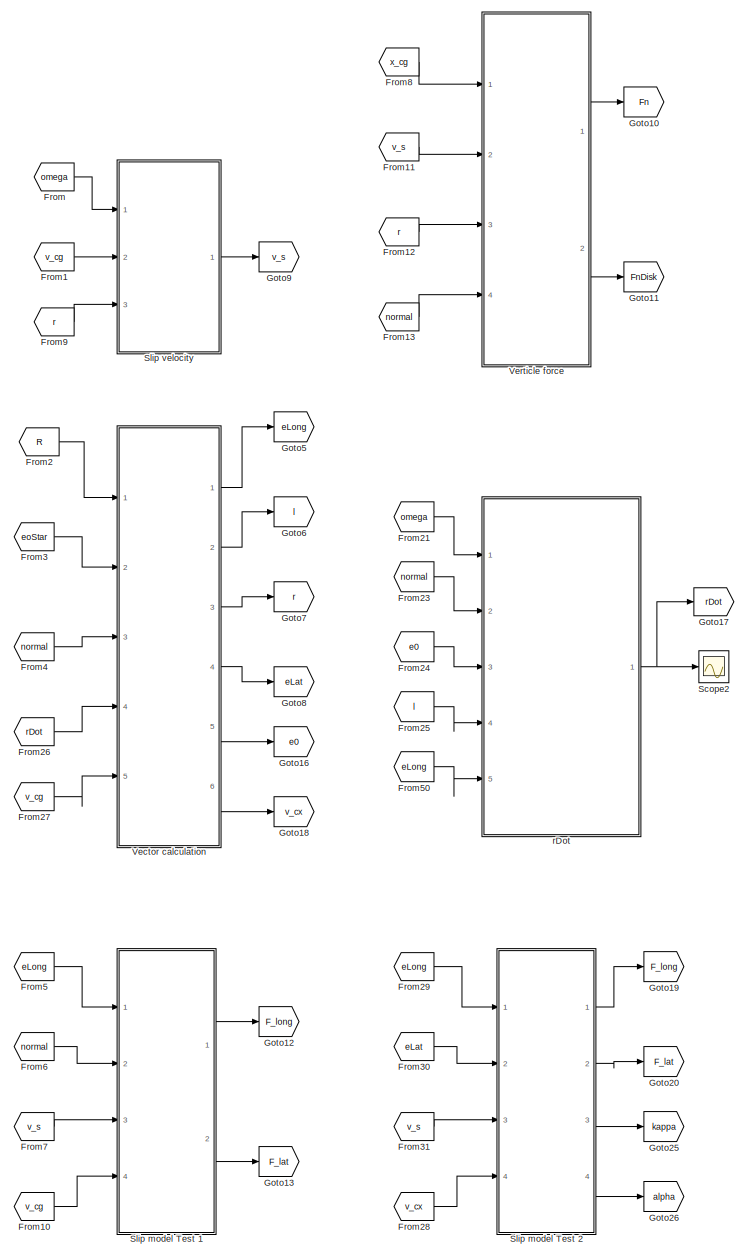
[diagram: Tire model1 - part 1/3, center side, full height]
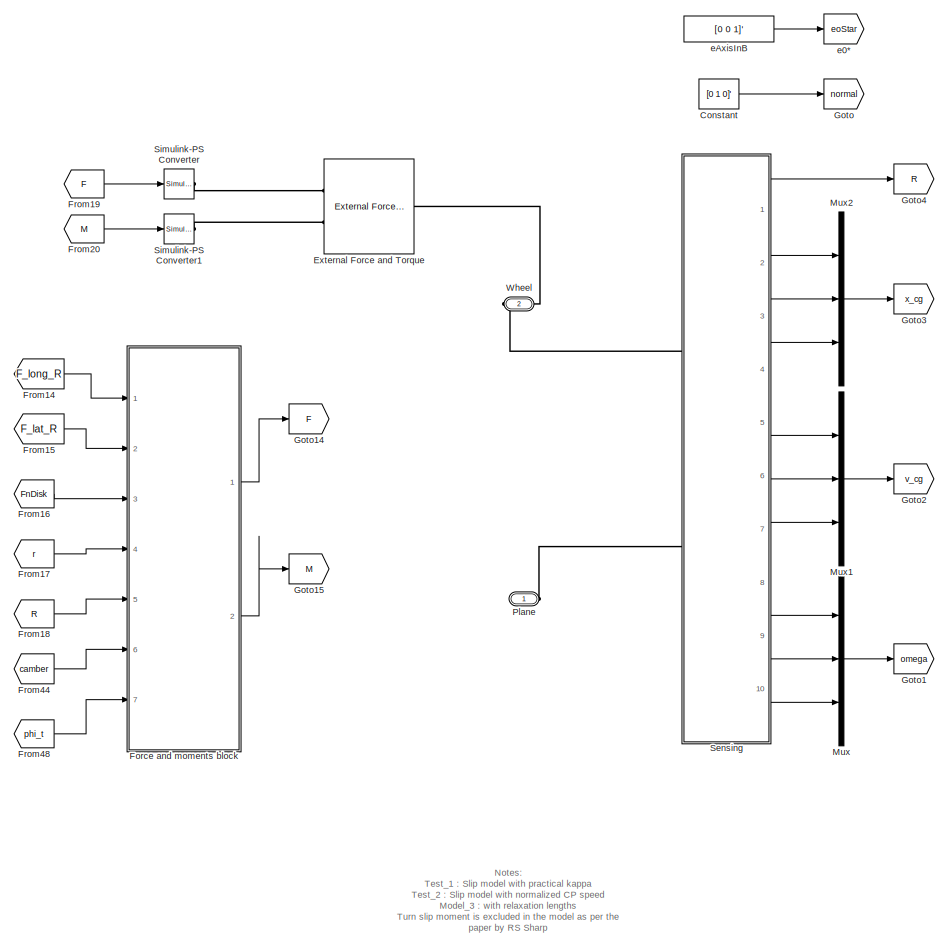
[diagram: Tire model1 - part 2/3, left side, full height]
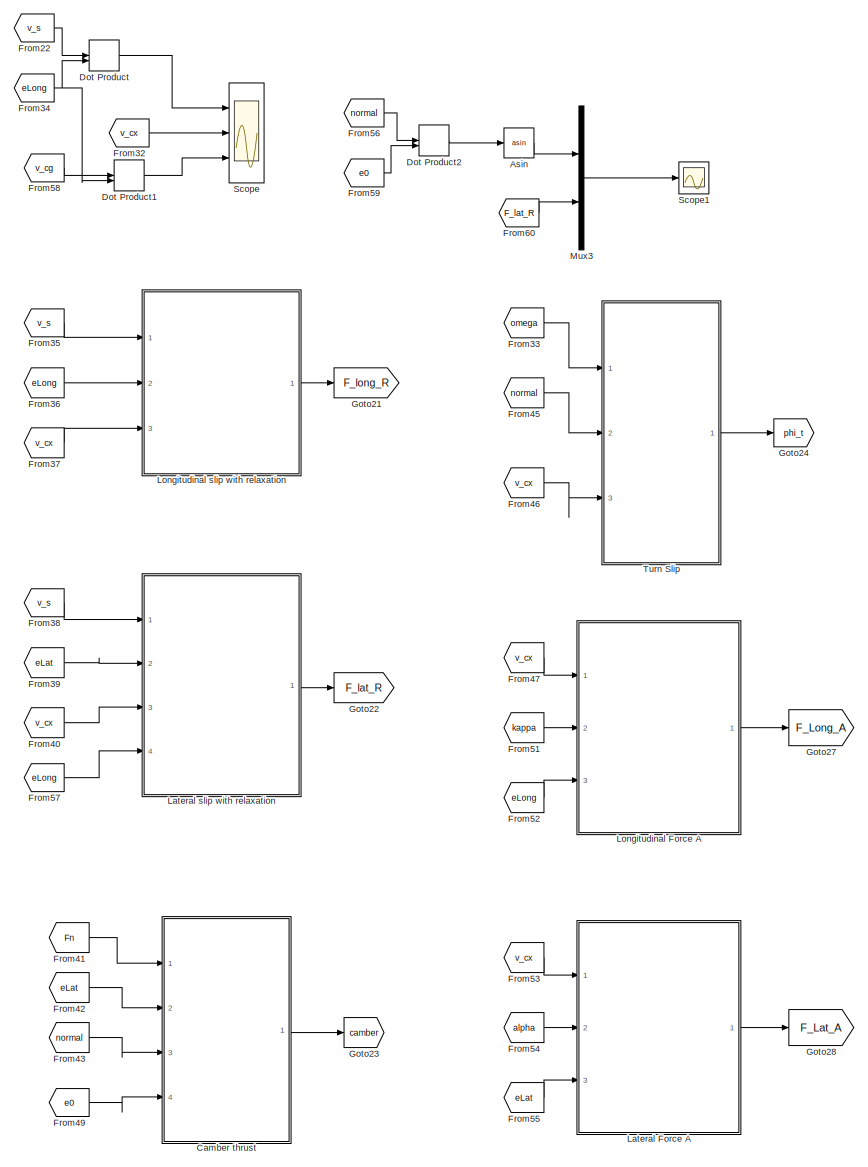
[diagram: Tire model1 - part 3/3, right side, full height]
BLOCK [SubSystem] Tire model1
  Ports = [0, 0, 0, 0, 0, 1, 1]
  RequestExecContextInheritance = off
  Variant = off
BLOCK [Trigonometry] Tire model1/Asin
  Operator = asin
  Ports = [1, 1]
BLOCK [SubSystem] Tire model1/Camber thrust
  Ports = [4, 1]
  RequestExecContextInheritance = off
  Variant = off
BLOCK [Reference] Tire model1/Camber thrust/Compare To Constant  REF=simulink/Logic and Bit
Operations/Compare
To Constant
  Ports = [1, 1]
  SourceBlock = simulink/Logic and Bit\nOperations/Compare\nTo Constant
  SourceProductBaseCode = SL
  SourceProductName = Simulink
  SourceType = Compare To Constant
BLOCK [DotProduct] Tire model1/Camber thrust/Dot Product
  OutDataTypeStr = Inherit: Inherit via internal rule
BLOCK [Inport] Tire model1/Camber thrust/Fn
  IconDisplay = Port number
BLOCK [Product] Tire model1/Camber thrust/Product
  InputSameDT = off
  OutDataTypeStr = Inherit: Inherit via internal rule
  Ports = [2, 1]
  RndMeth = Floor
  SaturateOnIntegerOverflow = off
BLOCK [Product] Tire model1/Camber thrust/Product1
  InputSameDT = off
  OutDataTypeStr = Inherit: Inherit via internal rule
  Ports = [2, 1]
  RndMeth = Floor
  SaturateOnIntegerOverflow = off
BLOCK [Scope] Tire model1/Camber thrust/Scope
  NumInputPorts = 1
  Ports = [1]
  ScopeSpecificationString = Simulink.scopes.TimeScopeBlockCfg('CurrentConfiguration', extmgr.ConfigurationSet(extmgr.Configuration('Core','General UI',true),extmgr.Configuration('Core','Source UI',true),extmgr.Configuration('Sources','WiredSimulink',true,'DataLoggingVariableName','ScopeData6'),extmgr.Configuration('Visuals','Time Domain',true,'SerializedDisplays',{struct('MinYLimReal','-1.125','MaxYLimReal','0.125','YLabelRe...<+1385ch>
BLOCK [Scope] Tire model1/Camber thrust/Scope1
  NumInputPorts = 1
  Ports = [1]
BLOCK [Scope] Tire model1/Camber thrust/Scope3
  NumInputPorts = 1
  Ports = [1]
  ScopeSpecificationString = Simulink.scopes.TimeScopeBlockCfg('CurrentConfiguration', extmgr.ConfigurationSet(extmgr.Configuration('Core','General UI',true),extmgr.Configuration('Core','Source UI',true),extmgr.Configuration('Sources','WiredSimulink',true,'DataLoggingVariableName','ScopeData11'),extmgr.Configuration('Visuals','Time Domain',true,'SerializedDisplays',{struct('MinYLimReal','-14.70995','MaxYLimReal','26.07789','Y...<+1400ch>
BLOCK [Stop] Tire model1/Camber thrust/Stop Simulation
BLOCK [Outport] Tire model1/Camber thrust/camber
  IconDisplay = Port number
BLOCK [Inport] Tire model1/Camber thrust/e0
  IconDisplay = Port number
  Port = 4
BLOCK [Inport] Tire model1/Camber thrust/eLat
  IconDisplay = Port number
  Port = 2
BLOCK [Inport] Tire model1/Camber thrust/n
  IconDisplay = Port number
  Port = 3
BLOCK [Constant] Tire model1/Constant
  Value = [0 1 0]'
BLOCK [DotProduct] Tire model1/Dot Product
  Commented = on
  OutDataTypeStr = Inherit: Inherit via internal rule
BLOCK [DotProduct] Tire model1/Dot Product1
  Commented = on
  OutDataTypeStr = Inherit: Inherit via internal rule
BLOCK [DotProduct] Tire model1/Dot Product2
  OutDataTypeStr = Inherit: Inherit via internal rule
BLOCK [Reference] Tire model1/External Force and Torque  REF=sm_lib/Forces and
Torques/External Force
and Torque
  Ports = [0, 0, 0, 0, 0, 2, 1]
  SourceBlock = sm_lib/Forces and\nTorques/External Force\nand Torque
  SourceProductBaseCode = MS
  SourceProductName = Simscape Multibody
  SourceType = External Force\nand Torque
BLOCK [SubSystem] Tire model1/Force and moments block
  Ports = [7, 2]
  RequestExecContextInheritance = off
  Variant = off
BLOCK [Sum] Tire model1/Force and moments block/Add
  InputSameDT = off
  Inputs = 4
  OutDataTypeStr = Inherit: Inherit via internal rule
  Ports = [4, 1]
  SaturateOnIntegerOverflow = off
BLOCK [Sum] Tire model1/Force and moments block/Add1
  InputSameDT = off
  OutDataTypeStr = Inherit: Inherit via internal rule
  Ports = [2, 1]
  SaturateOnIntegerOverflow = off
BLOCK [Reference] Tire model1/Force and moments block/Cross Product  REF=vrlib/Utilities/Cross Product
  Ports = [2, 1]
  SourceBlock = vrlib/Utilities/Cross Product
  SourceProductBaseCode = VR
  SourceProductName = Simulink 3D Animation
  SourceType = Cross Product
BLOCK [Demux] Tire model1/Force and moments block/Demux
  DisplayOption = bar
  Outputs = 3
  Ports = [1, 3]
BLOCK [Demux] Tire model1/Force and moments block/Demux1
  DisplayOption = bar
  Outputs = 3
  Ports = [1, 3]
BLOCK [Outport] Tire model1/Force and moments block/F
  IconDisplay = Port number
BLOCK [Inport] Tire model1/Force and moments block/F_lat
  IconDisplay = Port number
  Port = 2
BLOCK [Inport] Tire model1/Force and moments block/F_long
  IconDisplay = Port number
BLOCK [Inport] Tire model1/Force and moments block/FnDisk
  IconDisplay = Port number
  Port = 3
BLOCK [Outport] Tire model1/Force and moments block/M
  IconDisplay = Port number
  Port = 2
BLOCK [Product] Tire model1/Force and moments block/Product
  InputSameDT = off
  Inputs = /*
  Multiplication = Matrix(*)
  OutDataTypeStr = Inherit: Inherit via internal rule
  Ports = [2, 1]
  RndMeth = Floor
  SaturateOnIntegerOverflow = off
BLOCK [Product] Tire model1/Force and moments block/Product1
  InputSameDT = off
  Inputs = /*
  Multiplication = Matrix(*)
  OutDataTypeStr = Inherit: Inherit via internal rule
  Ports = [2, 1]
  RndMeth = Floor
  SaturateOnIntegerOverflow = off
BLOCK [Inport] Tire model1/Force and moments block/R
  IconDisplay = Port number
  Port = 5
BLOCK [Scope] Tire model1/Force and moments block/Scope
  NumInputPorts = 3
  Ports = [3]
BLOCK [Scope] Tire model1/Force and moments block/Scope1
  NumInputPorts = 3
  Ports = [3]
BLOCK [Inport] Tire model1/Force and moments block/camber
  IconDisplay = Port number
  Port = 6
BLOCK [Inport] Tire model1/Force and moments block/phi_t
  IconDisplay = Port number
  Port = 7
BLOCK [Inport] Tire model1/Force and moments block/r
  IconDisplay = Port number
  Port = 4
BLOCK [From] Tire model1/From
  GotoTag = omega
BLOCK [From] Tire model1/From1
  GotoTag = v_cg
BLOCK [From] Tire model1/From10
  Commented = on
  GotoTag = v_cg
BLOCK [From] Tire model1/From11
  GotoTag = v_s
BLOCK [From] Tire model1/From12
  GotoTag = r
BLOCK [From] Tire model1/From13
  GotoTag = normal
BLOCK [From] Tire model1/From14
  GotoTag = F_long_R
BLOCK [From] Tire model1/From15
  GotoTag = F_lat_R
BLOCK [From] Tire model1/From16
  GotoTag = FnDisk
BLOCK [From] Tire model1/From17
  GotoTag = r
BLOCK [From] Tire model1/From18
  GotoTag = R
BLOCK [From] Tire model1/From19
  GotoTag = F
BLOCK [From] Tire model1/From2
  GotoTag = R
BLOCK [From] Tire model1/From20
  GotoTag = M
BLOCK [From] Tire model1/From21
  GotoTag = omega
BLOCK [From] Tire model1/From22
  Commented = on
  GotoTag = v_s
BLOCK [From] Tire model1/From23
  GotoTag = normal
BLOCK [From] Tire model1/From24
  GotoTag = e0
BLOCK [From] Tire model1/From25
  GotoTag = l
BLOCK [From] Tire model1/From26
  GotoTag = rDot
BLOCK [From] Tire model1/From27
  GotoTag = v_cg
BLOCK [From] Tire model1/From28
  GotoTag = v_cx
BLOCK [From] Tire model1/From29
  GotoTag = eLong
BLOCK [From] Tire model1/From3
  GotoTag = eoStar
BLOCK [From] Tire model1/From30
  GotoTag = eLat
BLOCK [From] Tire model1/From31
  GotoTag = v_s
BLOCK [From] Tire model1/From32
  Commented = on
  GotoTag = v_cx
BLOCK [From] Tire model1/From33
  GotoTag = omega
BLOCK [From] Tire model1/From34
  Commented = on
  GotoTag = eLong
BLOCK [From] Tire model1/From35
  GotoTag = v_s
BLOCK [From] Tire model1/From36
  GotoTag = eLong
BLOCK [From] Tire model1/From37
  GotoTag = v_cx
BLOCK [From] Tire model1/From38
  GotoTag = v_s
BLOCK [From] Tire model1/From39
  GotoTag = eLat
BLOCK [From] Tire model1/From4
  GotoTag = normal
BLOCK [From] Tire model1/From40
  GotoTag = v_cx
BLOCK [From] Tire model1/From41
  GotoTag = Fn
BLOCK [From] Tire model1/From42
  GotoTag = eLat
BLOCK [From] Tire model1/From43
  GotoTag = normal
BLOCK [From] Tire model1/From44
  GotoTag = camber
BLOCK [From] Tire model1/From45
  GotoTag = normal
BLOCK [From] Tire model1/From46
  GotoTag = v_cx
BLOCK [From] Tire model1/From47
  Commented = on
  GotoTag = v_cx
BLOCK [From] Tire model1/From48
  GotoTag = phi_t
BLOCK [From] Tire model1/From49
  GotoTag = e0
BLOCK [From] Tire model1/From5
  Commented = on
  GotoTag = eLong
BLOCK [From] Tire model1/From50
  GotoTag = eLong
BLOCK [From] Tire model1/From51
  Commented = on
  GotoTag = kappa
BLOCK [From] Tire model1/From52
  Commented = on
  GotoTag = eLong
BLOCK [From] Tire model1/From53
  Commented = on
  GotoTag = v_cx
BLOCK [From] Tire model1/From54
  Commented = on
  GotoTag = alpha
BLOCK [From] Tire model1/From55
  Commented = on
  GotoTag = eLat
BLOCK [From] Tire model1/From56
  GotoTag = normal
BLOCK [From] Tire model1/From57
  GotoTag = eLong
BLOCK [From] Tire model1/From58
  Commented = on
  GotoTag = v_cg
BLOCK [From] Tire model1/From59
  GotoTag = e0
BLOCK [From] Tire model1/From6
  Commented = on
  GotoTag = normal
BLOCK [From] Tire model1/From60
  GotoTag = F_lat_R
BLOCK [From] Tire model1/From7
  Commented = on
  GotoTag = v_s
BLOCK [From] Tire model1/From8
  GotoTag = x_cg
BLOCK [From] Tire model1/From9
  GotoTag = r
BLOCK [Goto] Tire model1/Goto
  GotoTag = normal
BLOCK [Goto] Tire model1/Goto1
  GotoTag = omega
BLOCK [Goto] Tire model1/Goto10
  GotoTag = Fn
BLOCK [Goto] Tire model1/Goto11
  GotoTag = FnDisk
BLOCK [Goto] Tire model1/Goto12
  Commented = on
  GotoTag = F_long
BLOCK [Goto] Tire model1/Goto13
  Commented = on
  GotoTag = F_lat
BLOCK [Goto] Tire model1/Goto14
  GotoTag = F
BLOCK [Goto] Tire model1/Goto15
  GotoTag = M
BLOCK [Goto] Tire model1/Goto16
  GotoTag = e0
BLOCK [Goto] Tire model1/Goto17
  GotoTag = rDot
BLOCK [Goto] Tire model1/Goto18
  GotoTag = v_cx
BLOCK [Goto] Tire model1/Goto19
  GotoTag = F_long
BLOCK [Goto] Tire model1/Goto2
  GotoTag = v_cg
BLOCK [Goto] Tire model1/Goto20
  GotoTag = F_lat
BLOCK [Goto] Tire model1/Goto21
  GotoTag = F_long_R
BLOCK [Goto] Tire model1/Goto22
  GotoTag = F_lat_R
BLOCK [Goto] Tire model1/Goto23
  GotoTag = camber
BLOCK [Goto] Tire model1/Goto24
  GotoTag = phi_t
BLOCK [Goto] Tire model1/Goto25
  GotoTag = kappa
BLOCK [Goto] Tire model1/Goto26
  GotoTag = alpha
BLOCK [Goto] Tire model1/Goto27
  Commented = on
  GotoTag = F_Long_A
BLOCK [Goto] Tire model1/Goto28
  Commented = on
  GotoTag = F_Lat_A
BLOCK [Goto] Tire model1/Goto3
  GotoTag = x_cg
BLOCK [Goto] Tire model1/Goto4
  GotoTag = R
BLOCK [Goto] Tire model1/Goto5
  GotoTag = eLong
BLOCK [Goto] Tire model1/Goto6
  GotoTag = l
BLOCK [Goto] Tire model1/Goto7
  GotoTag = r
BLOCK [Goto] Tire model1/Goto8
  GotoTag = eLat
BLOCK [Goto] Tire model1/Goto9
  GotoTag = v_s
BLOCK [SubSystem] Tire model1/Lateral Force A
  Commented = on
  Ports = [3, 1]
  RequestExecContextInheritance = off
  Variant = off
BLOCK [Constant] Tire model1/Lateral Force A/Constant
  Value = sigma
BLOCK [Constant] Tire model1/Lateral Force A/Constant1
  Value = sigma
BLOCK [Outport] Tire model1/Lateral Force A/Fz
  IconDisplay = Port number
BLOCK [Gain] Tire model1/Lateral Force A/Gain
  Gain = -C_F_alpha
  OutDataTypeStr = Inherit: Inherit via internal rule
  ParamDataTypeStr = Inherit: Inherit via internal rule
  SaturateOnIntegerOverflow = off
BLOCK [Integrator] Tire model1/Lateral Force A/Integrator
  Ports = [1, 1]
BLOCK [Product] Tire model1/Lateral Force A/Product
  InputSameDT = off
  OutDataTypeStr = Inherit: Inherit via internal rule
  Ports = [2, 1]
  RndMeth = Floor
  SaturateOnIntegerOverflow = off
BLOCK [Product] Tire model1/Lateral Force A/Product1
  InputSameDT = off
  OutDataTypeStr = Inherit: Inherit via internal rule
  Ports = [2, 1]
  RndMeth = Floor
  SaturateOnIntegerOverflow = off
BLOCK [Product] Tire model1/Lateral Force A/Product2
  InputSameDT = off
  OutDataTypeStr = Inherit: Inherit via internal rule
  Ports = [2, 1]
  RndMeth = Floor
  SaturateOnIntegerOverflow = off
BLOCK [Product] Tire model1/Lateral Force A/Product3
  InputSameDT = off
  OutDataTypeStr = Inherit: Inherit via internal rule
  Ports = [2, 1]
  RndMeth = Floor
  SaturateOnIntegerOverflow = off
BLOCK [Product] Tire model1/Lateral Force A/Product4
  InputSameDT = off
  OutDataTypeStr = Inherit: Inherit via internal rule
  Ports = [2, 1]
  RndMeth = Floor
  SaturateOnIntegerOverflow = off
BLOCK [Scope] Tire model1/Lateral Force A/Scope
  NumInputPorts = 1
  Ports = [1]
BLOCK [Scope] Tire model1/Lateral Force A/Scope1
  NumInputPorts = 1
  Ports = [1]
BLOCK [Sum] Tire model1/Lateral Force A/Sum
  IconShape = round
  InputSameDT = off
  Inputs = |+-
  OutDataTypeStr = Inherit: Inherit via internal rule
  Ports = [2, 1]
  SaturateOnIntegerOverflow = off
BLOCK [Inport] Tire model1/Lateral Force A/alpha
  IconDisplay = Port number
  Port = 2
BLOCK [Inport] Tire model1/Lateral Force A/eLat
  IconDisplay = Port number
  Port = 3
BLOCK [Inport] Tire model1/Lateral Force A/v_cx
  IconDisplay = Port number
BLOCK [InportShadow] Tire model1/Lateral Force A/v_cx1
  IconDisplay = Port number
BLOCK [SubSystem] Tire model1/Lateral slip with relaxation
  Ports = [4, 1]
  RequestExecContextInheritance = off
  Variant = off
BLOCK [DotProduct] Tire model1/Lateral slip with relaxation/Dot Product
  OutDataTypeStr = Inherit: Inherit via internal rule
BLOCK [Outport] Tire model1/Lateral slip with relaxation/F_Lat
  IconDisplay = Port number
BLOCK [Gain] Tire model1/Lateral slip with relaxation/Gain
  Gain = 1/sigma
  OutDataTypeStr = Inherit: Inherit via internal rule
  ParamDataTypeStr = Inherit: Inherit via internal rule
  SaturateOnIntegerOverflow = off
BLOCK [Gain] Tire model1/Lateral slip with relaxation/Gain1
  Gain = -C_F_alpha
  OutDataTypeStr = Inherit: Inherit via internal rule
  ParamDataTypeStr = Inherit: Inherit via internal rule
  SaturateOnIntegerOverflow = off
BLOCK [Integrator] Tire model1/Lateral slip with relaxation/Integrator
  Ports = [1, 1]
BLOCK [Product] Tire model1/Lateral slip with relaxation/Product
  InputSameDT = off
  OutDataTypeStr = Inherit: Inherit via internal rule
  Ports = [2, 1]
  RndMeth = Floor
  SaturateOnIntegerOverflow = off
BLOCK [Product] Tire model1/Lateral slip with relaxation/Product1
  InputSameDT = off
  OutDataTypeStr = Inherit: Inherit via internal rule
  Ports = [2, 1]
  RndMeth = Floor
  SaturateOnIntegerOverflow = off
BLOCK [Scope] Tire model1/Lateral slip with relaxation/Scope
  NumInputPorts = 1
  Ports = [1]
BLOCK [Scope] Tire model1/Lateral slip with relaxation/Scope1
  NumInputPorts = 1
  Ports = [1]
BLOCK [Scope] Tire model1/Lateral slip with relaxation/Scope2
  NumInputPorts = 1
  Ports = [1]
  ScopeSpecificationString = Simulink.scopes.TimeScopeBlockCfg('CurrentConfiguration', extmgr.ConfigurationSet(extmgr.Configuration('Core','General UI',true),extmgr.Configuration('Core','Source UI',true),extmgr.Configuration('Sources','WiredSimulink',true,'DataLoggingVariableName','ScopeData2'),extmgr.Configuration('Visuals','Time Domain',true,'SerializedDisplays',{struct('MinYLimReal','-0.00385','MaxYLimReal','0.00384','YLab...<+1420ch>
BLOCK [Sum] Tire model1/Lateral slip with relaxation/Sum
  IconShape = round
  InputSameDT = off
  Inputs = |+-
  OutDataTypeStr = Inherit: Inherit via internal rule
  Ports = [2, 1]
  SaturateOnIntegerOverflow = off
BLOCK [Inport] Tire model1/Lateral slip with relaxation/eLat
  IconDisplay = Port number
  Port = 2
BLOCK [Inport] Tire model1/Lateral slip with relaxation/eLong
  IconDisplay = Port number
  Port = 4
BLOCK [Inport] Tire model1/Lateral slip with relaxation/v_cx
  IconDisplay = Port number
  Port = 3
BLOCK [Inport] Tire model1/Lateral slip with relaxation/v_s
  IconDisplay = Port number
BLOCK [SubSystem] Tire model1/Longitudinal Force A
  Commented = on
  Ports = [3, 1]
  RequestExecContextInheritance = off
  Variant = off
BLOCK [Constant] Tire model1/Longitudinal Force A/Constant
  Value = sigma
BLOCK [Constant] Tire model1/Longitudinal Force A/Constant1
  Value = sigma
BLOCK [Outport] Tire model1/Longitudinal Force A/Fx
  IconDisplay = Port number
BLOCK [Gain] Tire model1/Longitudinal Force A/Gain
  Gain = -C_F_kappa
  OutDataTypeStr = Inherit: Inherit via internal rule
  ParamDataTypeStr = Inherit: Inherit via internal rule
  SaturateOnIntegerOverflow = off
BLOCK [Integrator] Tire model1/Longitudinal Force A/Integrator
  Ports = [1, 1]
BLOCK [Product] Tire model1/Longitudinal Force A/Product
  InputSameDT = off
  OutDataTypeStr = Inherit: Inherit via internal rule
  Ports = [2, 1]
  RndMeth = Floor
  SaturateOnIntegerOverflow = off
BLOCK [Product] Tire model1/Longitudinal Force A/Product1
  InputSameDT = off
  OutDataTypeStr = Inherit: Inherit via internal rule
  Ports = [2, 1]
  RndMeth = Floor
  SaturateOnIntegerOverflow = off
BLOCK [Product] Tire model1/Longitudinal Force A/Product2
  InputSameDT = off
  OutDataTypeStr = Inherit: Inherit via internal rule
  Ports = [2, 1]
  RndMeth = Floor
  SaturateOnIntegerOverflow = off
BLOCK [Product] Tire model1/Longitudinal Force A/Product3
  InputSameDT = off
  OutDataTypeStr = Inherit: Inherit via internal rule
  Ports = [2, 1]
  RndMeth = Floor
  SaturateOnIntegerOverflow = off
BLOCK [Product] Tire model1/Longitudinal Force A/Product4
  InputSameDT = off
  OutDataTypeStr = Inherit: Inherit via internal rule
  Ports = [2, 1]
  RndMeth = Floor
  SaturateOnIntegerOverflow = off
BLOCK [Scope] Tire model1/Longitudinal Force A/Scope
  NumInputPorts = 1
  Ports = [1]
BLOCK [Scope] Tire model1/Longitudinal Force A/Scope1
  NumInputPorts = 1
  Ports = [1]
BLOCK [Sum] Tire model1/Longitudinal Force A/Sum
  IconShape = round
  InputSameDT = off
  Inputs = |+-
  OutDataTypeStr = Inherit: Inherit via internal rule
  Ports = [2, 1]
  SaturateOnIntegerOverflow = off
BLOCK [Inport] Tire model1/Longitudinal Force A/eLong
  IconDisplay = Port number
  Port = 3
BLOCK [Inport] Tire model1/Longitudinal Force A/kappa
  IconDisplay = Port number
  Port = 2
BLOCK [Inport] Tire model1/Longitudinal Force A/v_cx
  IconDisplay = Port number
BLOCK [InportShadow] Tire model1/Longitudinal Force A/v_cx1
  IconDisplay = Port number
BLOCK [SubSystem] Tire model1/Longitudinal slip with relaxation
  Ports = [3, 1]
  RequestExecContextInheritance = off
  Variant = off
BLOCK [DotProduct] Tire model1/Longitudinal slip with relaxation/Dot Product
  OutDataTypeStr = Inherit: Inherit via internal rule
BLOCK [Outport] Tire model1/Longitudinal slip with relaxation/F_Long
  IconDisplay = Port number
BLOCK [Gain] Tire model1/Longitudinal slip with relaxation/Gain
  Gain = 1/sigma
  OutDataTypeStr = Inherit: Inherit via internal rule
  ParamDataTypeStr = Inherit: Inherit via internal rule
  SaturateOnIntegerOverflow = off
BLOCK [Gain] Tire model1/Longitudinal slip with relaxation/Gain1
  Gain = -C_F_kappa
  OutDataTypeStr = Inherit: Inherit via internal rule
  ParamDataTypeStr = Inherit: Inherit via internal rule
  SaturateOnIntegerOverflow = off
BLOCK [Integrator] Tire model1/Longitudinal slip with relaxation/Integrator
  Ports = [1, 1]
BLOCK [Product] Tire model1/Longitudinal slip with relaxation/Product
  InputSameDT = off
  OutDataTypeStr = Inherit: Inherit via internal rule
  Ports = [2, 1]
  RndMeth = Floor
  SaturateOnIntegerOverflow = off
BLOCK [Product] Tire model1/Longitudinal slip with relaxation/Product1
  InputSameDT = off
  OutDataTypeStr = Inherit: Inherit via internal rule
  Ports = [2, 1]
  RndMeth = Floor
  SaturateOnIntegerOverflow = off
BLOCK [Scope] Tire model1/Longitudinal slip with relaxation/Scope
  NumInputPorts = 1
  Ports = [1]
BLOCK [Scope] Tire model1/Longitudinal slip with relaxation/Scope1
  NumInputPorts = 1
  Ports = [1]
BLOCK [Sum] Tire model1/Longitudinal slip with relaxation/Sum
  IconShape = round
  InputSameDT = off
  Inputs = |+-
  OutDataTypeStr = Inherit: Inherit via internal rule
  Ports = [2, 1]
  SaturateOnIntegerOverflow = off
BLOCK [Inport] Tire model1/Longitudinal slip with relaxation/eLong
  IconDisplay = Port number
  Port = 2
BLOCK [Inport] Tire model1/Longitudinal slip with relaxation/v_cx
  IconDisplay = Port number
  Port = 3
BLOCK [Inport] Tire model1/Longitudinal slip with relaxation/v_s
  IconDisplay = Port number
BLOCK [Mux] Tire model1/Mux
  DisplayOption = bar
  Inputs = 3
  Ports = [3, 1]
BLOCK [Mux] Tire model1/Mux1
  DisplayOption = bar
  Inputs = 3
  Ports = [3, 1]
BLOCK [Mux] Tire model1/Mux2
  DisplayOption = bar
  Inputs = 3
  Ports = [3, 1]
BLOCK [Mux] Tire model1/Mux3
  DisplayOption = bar
  Inputs = 2
  Ports = [2, 1]
BLOCK [PMIOPort] Tire model1/Plane
  Port = 1
  Side = Left
BLOCK [Scope] Tire model1/Scope
  Commented = on
  NumInputPorts = 3
  Ports = [3]
BLOCK [Scope] Tire model1/Scope1
  NumInputPorts = 1
  Ports = [1]
BLOCK [Scope] Tire model1/Scope2
  NumInputPorts = 1
  Ports = [1]
BLOCK [SubSystem] Tire model1/Sensing
  Ports = [0, 10, 0, 0, 0, 2]
  RequestExecContextInheritance = off
  Variant = off
BLOCK [Reference] Tire model1/Sensing/PS-Simulink Converter  REF=nesl_utility/PS-Simulink
Converter
  Ports = [0, 1, 0, 0, 0, 1]
  SourceBlock = nesl_utility/PS-Simulink\nConverter
  SourceProductBaseCode = SS
  SourceProductName = Simscape
  SourceType = PS-Simulink\nConverter
BLOCK [Reference] Tire model1/Sensing/PS-Simulink Converter1  REF=nesl_utility/PS-Simulink
Converter
  Ports = [0, 1, 0, 0, 0, 1]
  SourceBlock = nesl_utility/PS-Simulink\nConverter
  SourceProductBaseCode = SS
  SourceProductName = Simscape
  SourceType = PS-Simulink\nConverter
BLOCK [Reference] Tire model1/Sensing/PS-Simulink Converter2  REF=nesl_utility/PS-Simulink
Converter
  Ports = [0, 1, 0, 0, 0, 1]
  SourceBlock = nesl_utility/PS-Simulink\nConverter
  SourceProductBaseCode = SS
  SourceProductName = Simscape
  SourceType = PS-Simulink\nConverter
BLOCK [Reference] Tire model1/Sensing/PS-Simulink Converter3  REF=nesl_utility/PS-Simulink
Converter
  Ports = [0, 1, 0, 0, 0, 1]
  SourceBlock = nesl_utility/PS-Simulink\nConverter
  SourceProductBaseCode = SS
  SourceProductName = Simscape
  SourceType = PS-Simulink\nConverter
BLOCK [Reference] Tire model1/Sensing/PS-Simulink Converter4  REF=nesl_utility/PS-Simulink
Converter
  Ports = [0, 1, 0, 0, 0, 1]
  SourceBlock = nesl_utility/PS-Simulink\nConverter
  SourceProductBaseCode = SS
  SourceProductName = Simscape
  SourceType = PS-Simulink\nConverter
BLOCK [Reference] Tire model1/Sensing/PS-Simulink Converter5  REF=nesl_utility/PS-Simulink
Converter
  Ports = [0, 1, 0, 0, 0, 1]
  SourceBlock = nesl_utility/PS-Simulink\nConverter
  SourceProductBaseCode = SS
  SourceProductName = Simscape
  SourceType = PS-Simulink\nConverter
BLOCK [Reference] Tire model1/Sensing/PS-Simulink Converter6  REF=nesl_utility/PS-Simulink
Converter
  Ports = [0, 1, 0, 0, 0, 1]
  SourceBlock = nesl_utility/PS-Simulink\nConverter
  SourceProductBaseCode = SS
  SourceProductName = Simscape
  SourceType = PS-Simulink\nConverter
BLOCK [Reference] Tire model1/Sensing/PS-Simulink Converter7  REF=nesl_utility/PS-Simulink
Converter
  Ports = [0, 1, 0, 0, 0, 1]
  SourceBlock = nesl_utility/PS-Simulink\nConverter
  SourceProductBaseCode = SS
  SourceProductName = Simscape
  SourceType = PS-Simulink\nConverter
BLOCK [Reference] Tire model1/Sensing/PS-Simulink Converter8  REF=nesl_utility/PS-Simulink
Converter
  Ports = [0, 1, 0, 0, 0, 1]
  SourceBlock = nesl_utility/PS-Simulink\nConverter
  SourceProductBaseCode = SS
  SourceProductName = Simscape
  SourceType = PS-Simulink\nConverter
BLOCK [Reference] Tire model1/Sensing/PS-Simulink Converter9  REF=nesl_utility/PS-Simulink
Converter
  Ports = [0, 1, 0, 0, 0, 1]
  SourceBlock = nesl_utility/PS-Simulink\nConverter
  SourceProductBaseCode = SS
  SourceProductName = Simscape
  SourceType = PS-Simulink\nConverter
BLOCK [PMIOPort] Tire model1/Sensing/Plane
  Port = 2
  Side = Left
BLOCK [Outport] Tire model1/Sensing/R
  IconDisplay = Port number
BLOCK [Scope] Tire model1/Sensing/Scope
  NumInputPorts = 1
  Ports = [1]
BLOCK [Reference] Tire model1/Sensing/Transform Sensor  REF=sm_lib/Frames and
Transforms/Transform
Sensor
  Ports = [0, 0, 0, 0, 0, 1, 11]
  SourceBlock = sm_lib/Frames and\nTransforms/Transform\nSensor
  SourceProductBaseCode = MS
  SourceProductName = Simscape Multibody
  SourceType = Transform\nSensor
BLOCK [PMIOPort] Tire model1/Sensing/Wheel
  Port = 1
  Side = Left
BLOCK [Outport] Tire model1/Sensing/vx
  IconDisplay = Port number
  Port = 5
BLOCK [Outport] Tire model1/Sensing/vy
  IconDisplay = Port number
  Port = 6
BLOCK [Outport] Tire model1/Sensing/vz
  IconDisplay = Port number
  Port = 7
BLOCK [Outport] Tire model1/Sensing/wx
  IconDisplay = Port number
  Port = 8
BLOCK [Outport] Tire model1/Sensing/wy
  IconDisplay = Port number
  Port = 9
BLOCK [Outport] Tire model1/Sensing/wz
  IconDisplay = Port number
  Port = 10
BLOCK [Outport] Tire model1/Sensing/x
  IconDisplay = Port number
  Port = 2
BLOCK [Outport] Tire model1/Sensing/y
  IconDisplay = Port number
  Port = 3
BLOCK [Outport] Tire model1/Sensing/z
  IconDisplay = Port number
  Port = 4
BLOCK [Reference] Tire model1/Simulink-PS Converter  REF=nesl_utility/Simulink-PS
Converter
  Ports = [1, 0, 0, 0, 0, 0, 1]
  SourceBlock = nesl_utility/Simulink-PS\nConverter
  SourceProductBaseCode = SS
  SourceProductName = Simscape
  SourceType = Simulink-PS\nConverter
BLOCK [Reference] Tire model1/Simulink-PS Converter1  REF=nesl_utility/Simulink-PS
Converter
  Ports = [1, 0, 0, 0, 0, 0, 1]
  SourceBlock = nesl_utility/Simulink-PS\nConverter
  SourceProductBaseCode = SS
  SourceProductName = Simscape
  SourceType = Simulink-PS\nConverter
BLOCK [SubSystem] Tire model1/Slip model Test 1
  Commented = on
  Ports = [4, 2]
  RequestExecContextInheritance = off
  Variant = off
BLOCK [Constant] Tire model1/Slip model Test 1/Constant
  Value = epsilon
BLOCK [Constant] Tire model1/Slip model Test 1/Constant1
  Value = epsilon
BLOCK [Product] Tire model1/Slip model Test 1/Divide
  InputSameDT = off
  Inputs = */
  OutDataTypeStr = Inherit: Inherit via internal rule
  Ports = [2, 1]
  RndMeth = Floor
  SaturateOnIntegerOverflow = off
BLOCK [DotProduct] Tire model1/Slip model Test 1/Dot Product
  OutDataTypeStr = Inherit: Inherit via internal rule
BLOCK [DotProduct] Tire model1/Slip model Test 1/Dot Product1
  OutDataTypeStr = Inherit: Inherit via internal rule
BLOCK [DotProduct] Tire model1/Slip model Test 1/Dot Product2
  OutDataTypeStr = Inherit: Inherit via internal rule
BLOCK [DotProduct] Tire model1/Slip model Test 1/Dot Product3
  OutDataTypeStr = Inherit: Inherit via internal rule
BLOCK [Outport] Tire model1/Slip model Test 1/F_lat
  IconDisplay = Port number
  Port = 2
BLOCK [Outport] Tire model1/Slip model Test 1/F_long
  IconDisplay = Port number
BLOCK [Gain] Tire model1/Slip model Test 1/Gain
  Gain = -C_F_kappa
  OutDataTypeStr = Inherit: Inherit via internal rule
  ParamDataTypeStr = Inherit: Inherit via internal rule
  SaturateOnIntegerOverflow = off
BLOCK [Gain] Tire model1/Slip model Test 1/Gain1
  Gain = -C_F_alpha
  OutDataTypeStr = Inherit: Inherit via internal rule
  ParamDataTypeStr = Inherit: Inherit via internal rule
  SaturateOnIntegerOverflow = off
BLOCK [Product] Tire model1/Slip model Test 1/Product
  InputSameDT = off
  Inputs = */
  OutDataTypeStr = Inherit: Inherit via internal rule
  Ports = [2, 1]
  RndMeth = Floor
  SaturateOnIntegerOverflow = off
BLOCK [Product] Tire model1/Slip model Test 1/Product1
  InputSameDT = off
  OutDataTypeStr = Inherit: Inherit via internal rule
  Ports = [2, 1]
  RndMeth = Floor
  SaturateOnIntegerOverflow = off
BLOCK [Product] Tire model1/Slip model Test 1/Product2
  InputSameDT = off
  OutDataTypeStr = Inherit: Inherit via internal rule
  Ports = [2, 1]
  RndMeth = Floor
  SaturateOnIntegerOverflow = off
BLOCK [Scope] Tire model1/Slip model Test 1/Scope
  NumInputPorts = 1
  Ports = [1]
BLOCK [Scope] Tire model1/Slip model Test 1/Scope1
  NumInputPorts = 1
  Ports = [1]
BLOCK [Sum] Tire model1/Slip model Test 1/Sum
  IconShape = round
  InputSameDT = off
  Inputs = |++
  OutDataTypeStr = Inherit: Inherit via internal rule
  Ports = [2, 1]
  SaturateOnIntegerOverflow = off
BLOCK [Sum] Tire model1/Slip model Test 1/Sum1
  IconShape = round
  InputSameDT = off
  Inputs = |++
  OutDataTypeStr = Inherit: Inherit via internal rule
  Ports = [2, 1]
  SaturateOnIntegerOverflow = off
BLOCK [Inport] Tire model1/Slip model Test 1/eLat
  IconDisplay = Port number
  Port = 2
BLOCK [InportShadow] Tire model1/Slip model Test 1/eLat1
  IconDisplay = Port number
  Port = 2
BLOCK [Inport] Tire model1/Slip model Test 1/eLong
  IconDisplay = Port number
BLOCK [InportShadow] Tire model1/Slip model Test 1/eLong1
  IconDisplay = Port number
BLOCK [Inport] Tire model1/Slip model Test 1/v_cg
  IconDisplay = Port number
  Port = 4
BLOCK [InportShadow] Tire model1/Slip model Test 1/v_cg1
  IconDisplay = Port number
  Port = 4
BLOCK [Inport] Tire model1/Slip model Test 1/v_s
  IconDisplay = Port number
  Port = 3
BLOCK [InportShadow] Tire model1/Slip model Test 1/v_s1
  IconDisplay = Port number
  Port = 3
BLOCK [SubSystem] Tire model1/Slip model Test 2
  Ports = [4, 4]
  RequestExecContextInheritance = off
  Variant = off
BLOCK [Product] Tire model1/Slip model Test 2/Divide
  InputSameDT = off
  Inputs = */
  OutDataTypeStr = Inherit: Inherit via internal rule
  Ports = [2, 1]
  RndMeth = Floor
  SaturateOnIntegerOverflow = off
BLOCK [DotProduct] Tire model1/Slip model Test 2/Dot Product
  OutDataTypeStr = Inherit: Inherit via internal rule
BLOCK [DotProduct] Tire model1/Slip model Test 2/Dot Product1
  OutDataTypeStr = Inherit: Inherit via internal rule
BLOCK [Outport] Tire model1/Slip model Test 2/F_lat
  IconDisplay = Port number
  Port = 2
BLOCK [Outport] Tire model1/Slip model Test 2/F_long
  IconDisplay = Port number
BLOCK [Gain] Tire model1/Slip model Test 2/Gain
  Gain = -C_F_kappa
  OutDataTypeStr = Inherit: Inherit via internal rule
  ParamDataTypeStr = Inherit: Inherit via internal rule
  SaturateOnIntegerOverflow = off
BLOCK [Gain] Tire model1/Slip model Test 2/Gain1
  Gain = -C_F_alpha
  OutDataTypeStr = Inherit: Inherit via internal rule
  ParamDataTypeStr = Inherit: Inherit via internal rule
  SaturateOnIntegerOverflow = off
BLOCK [Product] Tire model1/Slip model Test 2/Product
  InputSameDT = off
  Inputs = */
  OutDataTypeStr = Inherit: Inherit via internal rule
  Ports = [2, 1]
  RndMeth = Floor
  SaturateOnIntegerOverflow = off
BLOCK [Product] Tire model1/Slip model Test 2/Product1
  InputSameDT = off
  OutDataTypeStr = Inherit: Inherit via internal rule
  Ports = [2, 1]
  RndMeth = Floor
  SaturateOnIntegerOverflow = off
BLOCK [Product] Tire model1/Slip model Test 2/Product2
  InputSameDT = off
  OutDataTypeStr = Inherit: Inherit via internal rule
  Ports = [2, 1]
  RndMeth = Floor
  SaturateOnIntegerOverflow = off
BLOCK [Scope] Tire model1/Slip model Test 2/Scope
  NumInputPorts = 1
  Ports = [1]
BLOCK [Scope] Tire model1/Slip model Test 2/Scope1
  NumInputPorts = 1
  Ports = [1]
BLOCK [Outport] Tire model1/Slip model Test 2/alpha
  IconDisplay = Port number
  Port = 4
BLOCK [Inport] Tire model1/Slip model Test 2/eLat
  IconDisplay = Port number
  Port = 2
BLOCK [InportShadow] Tire model1/Slip model Test 2/eLat1
  IconDisplay = Port number
  Port = 2
BLOCK [Inport] Tire model1/Slip model Test 2/eLong
  IconDisplay = Port number
BLOCK [InportShadow] Tire model1/Slip model Test 2/eLong1
  IconDisplay = Port number
BLOCK [Outport] Tire model1/Slip model Test 2/kappa
  IconDisplay = Port number
  Port = 3
BLOCK [Inport] Tire model1/Slip model Test 2/v_cx
  IconDisplay = Port number
  Port = 4
BLOCK [InportShadow] Tire model1/Slip model Test 2/v_cx1
  IconDisplay = Port number
  Port = 4
BLOCK [Inport] Tire model1/Slip model Test 2/v_s
  IconDisplay = Port number
  Port = 3
BLOCK [InportShadow] Tire model1/Slip model Test 2/v_s1
  IconDisplay = Port number
  Port = 3
BLOCK [SubSystem] Tire model1/Slip velocity
  Ports = [3, 1]
  RequestExecContextInheritance = off
  Variant = off
BLOCK [Sum] Tire model1/Slip velocity/Add
  InputSameDT = off
  OutDataTypeStr = Inherit: Inherit via internal rule
  Ports = [2, 1]
  SaturateOnIntegerOverflow = off
BLOCK [Reference] Tire model1/Slip velocity/Cross Product  REF=vrlib/Utilities/Cross Product
  Ports = [2, 1]
  SourceBlock = vrlib/Utilities/Cross Product
  SourceProductBaseCode = VR
  SourceProductName = Simulink 3D Animation
  SourceType = Cross Product
BLOCK [Scope] Tire model1/Slip velocity/Scope
  NumInputPorts = 1
  Ports = [1]
BLOCK [Scope] Tire model1/Slip velocity/Scope1
  NumInputPorts = 1
  Ports = [1]
BLOCK [Scope] Tire model1/Slip velocity/Scope4
  NumInputPorts = 1
  Ports = [1]
BLOCK [Inport] Tire model1/Slip velocity/omega
  IconDisplay = Port number
BLOCK [Inport] Tire model1/Slip velocity/r
  IconDisplay = Port number
  Port = 3
BLOCK [Inport] Tire model1/Slip velocity/v_cg
  IconDisplay = Port number
  Port = 2
BLOCK [Outport] Tire model1/Slip velocity/v_s
  IconDisplay = Port number
BLOCK [SubSystem] Tire model1/Turn Slip
  Ports = [3, 1]
  RequestExecContextInheritance = off
  Variant = off
BLOCK [DotProduct] Tire model1/Turn Slip/Dot Product
  OutDataTypeStr = Inherit: Inherit via internal rule
BLOCK [Gain] Tire model1/Turn Slip/Gain
  Gain = 1/sigma
  OutDataTypeStr = Inherit: Inherit via internal rule
  ParamDataTypeStr = Inherit: Inherit via internal rule
  SaturateOnIntegerOverflow = off
BLOCK [Gain] Tire model1/Turn Slip/Gain1
  Gain = -CM_phi
  OutDataTypeStr = Inherit: Inherit via internal rule
  ParamDataTypeStr = Inherit: Inherit via internal rule
  SaturateOnIntegerOverflow = off
BLOCK [Integrator] Tire model1/Turn Slip/Integrator
  Ports = [1, 1]
BLOCK [Product] Tire model1/Turn Slip/Product
  InputSameDT = off
  OutDataTypeStr = Inherit: Inherit via internal rule
  Ports = [2, 1]
  RndMeth = Floor
  SaturateOnIntegerOverflow = off
BLOCK [Product] Tire model1/Turn Slip/Product1
  InputSameDT = off
  OutDataTypeStr = Inherit: Inherit via internal rule
  Ports = [2, 1]
  RndMeth = Floor
  SaturateOnIntegerOverflow = off
BLOCK [Sum] Tire model1/Turn Slip/Sum
  IconShape = round
  InputSameDT = off
  Inputs = |+-
  OutDataTypeStr = Inherit: Inherit via internal rule
  Ports = [2, 1]
  SaturateOnIntegerOverflow = off
BLOCK [Inport] Tire model1/Turn Slip/n
  IconDisplay = Port number
  Port = 2
BLOCK [Inport] Tire model1/Turn Slip/omega
  IconDisplay = Port number
BLOCK [Outport] Tire model1/Turn Slip/phi_t
  IconDisplay = Port number
BLOCK [Inport] Tire model1/Turn Slip/v_cx
  IconDisplay = Port number
  Port = 3
BLOCK [SubSystem] Tire model1/Vector calculation
  Ports = [5, 6]
  RequestExecContextInheritance = off
  Variant = off
BLOCK [Abs] Tire model1/Vector calculation/Abs
  SaturateOnIntegerOverflow = off
  ZeroCross = off
BLOCK [Constant] Tire model1/Vector calculation/Constant
  Value = epsilon
BLOCK [Constant] Tire model1/Vector calculation/Constant1
  Value = radiusRW
BLOCK [Reference] Tire model1/Vector calculation/Cross Product  REF=vrlib/Utilities/Cross Product
  Ports = [2, 1]
  SourceBlock = vrlib/Utilities/Cross Product
  SourceProductBaseCode = VR
  SourceProductName = Simulink 3D Animation
  SourceType = Cross Product
BLOCK [Reference] Tire model1/Vector calculation/Cross Product1  REF=vrlib/Utilities/Cross Product
  Ports = [2, 1]
  SourceBlock = vrlib/Utilities/Cross Product
  SourceProductBaseCode = VR
  SourceProductName = Simulink 3D Animation
  SourceType = Cross Product
BLOCK [Reference] Tire model1/Vector calculation/Cross Product2  REF=vrlib/Utilities/Cross Product
  Ports = [2, 1]
  SourceBlock = vrlib/Utilities/Cross Product
  SourceProductBaseCode = VR
  SourceProductName = Simulink 3D Animation
  SourceType = Cross Product
BLOCK [DotProduct] Tire model1/Vector calculation/Dot Product
  OutDataTypeStr = Inherit: Inherit via internal rule
BLOCK [Gain] Tire model1/Vector calculation/Gain1
  Commented = through
  Gain = -1
  OutDataTypeStr = Inherit: Inherit via internal rule
  ParamDataTypeStr = Inherit: Inherit via internal rule
  SaturateOnIntegerOverflow = off
BLOCK [Reference] Tire model1/Vector calculation/Normalize Vector  REF=vrlib/Utilities/Normalize Vector
  Ports = [1, 1]
  SourceBlock = vrlib/Utilities/Normalize Vector
  SourceProductBaseCode = VR
  SourceProductName = Simulink 3D Animation
  SourceType = Normalize Vector
BLOCK [Product] Tire model1/Vector calculation/Product
  InputSameDT = off
  Multiplication = Matrix(*)
  OutDataTypeStr = Inherit: Inherit via internal rule
  Ports = [2, 1]
  RndMeth = Floor
  SaturateOnIntegerOverflow = off
BLOCK [Product] Tire model1/Vector calculation/Product1
  InputSameDT = off
  OutDataTypeStr = Inherit: Inherit via internal rule
  Ports = [2, 1]
  RndMeth = Floor
  SaturateOnIntegerOverflow = off
BLOCK [Inport] Tire model1/Vector calculation/R
  IconDisplay = Port number
BLOCK [Scope] Tire model1/Vector calculation/Scope
  NumInputPorts = 1
  Ports = [1]
BLOCK [Sum] Tire model1/Vector calculation/Sum
  IconShape = round
  InputSameDT = off
  Inputs = |+-
  OutDataTypeStr = Inherit: Inherit via internal rule
  Ports = [2, 1]
  SaturateOnIntegerOverflow = off
BLOCK [Sum] Tire model1/Vector calculation/Sum1
  IconShape = round
  InputSameDT = off
  Inputs = |++
  OutDataTypeStr = Inherit: Inherit via internal rule
  Ports = [2, 1]
  SaturateOnIntegerOverflow = off
BLOCK [Outport] Tire model1/Vector calculation/e0
  IconDisplay = Port number
  Port = 5
BLOCK [Inport] Tire model1/Vector calculation/e0star
  IconDisplay = Port number
  Port = 2
BLOCK [Outport] Tire model1/Vector calculation/eLat
  IconDisplay = Port number
  Port = 4
BLOCK [Outport] Tire model1/Vector calculation/eLong
  IconDisplay = Port number
BLOCK [Outport] Tire model1/Vector calculation/l
  IconDisplay = Port number
  Port = 2
BLOCK [Inport] Tire model1/Vector calculation/n
  IconDisplay = Port number
  Port = 3
BLOCK [Outport] Tire model1/Vector calculation/r
  IconDisplay = Port number
  Port = 3
BLOCK [Inport] Tire model1/Vector calculation/rDot
  IconDisplay = Port number
  Port = 4
BLOCK [Inport] Tire model1/Vector calculation/v_cg
  IconDisplay = Port number
  Port = 5
BLOCK [Outport] Tire model1/Vector calculation/v_cx
  IconDisplay = Port number
  Port = 6
BLOCK [SubSystem] Tire model1/Verticle force
  Ports = [4, 2]
  RequestExecContextInheritance = off
  Variant = off
BLOCK [DotProduct] Tire model1/Verticle force/Dot Product
  OutDataTypeStr = Inherit: Inherit via internal rule
BLOCK [DotProduct] Tire model1/Verticle force/Dot Product1
  OutDataTypeStr = Inherit: Inherit via internal rule
BLOCK [Outport] Tire model1/Verticle force/Fn
  IconDisplay = Port number
BLOCK [Outport] Tire model1/Verticle force/FnDisk
  IconDisplay = Port number
  Port = 2
BLOCK [Gain] Tire model1/Verticle force/Gain
  Gain = -k_contact_RW
  OutDataTypeStr = Inherit: Inherit via internal rule
  ParamDataTypeStr = Inherit: Inherit via internal rule
  SaturateOnIntegerOverflow = off
BLOCK [Gain] Tire model1/Verticle force/Gain1
  Gain = -b_contact_RW
  OutDataTypeStr = Inherit: Inherit via internal rule
  ParamDataTypeStr = Inherit: Inherit via internal rule
  SaturateOnIntegerOverflow = off
BLOCK [Gain] Tire model1/Verticle force/Gain2
  Commented = through
  Gain = -1
  OutDataTypeStr = Inherit: Inherit via internal rule
  ParamDataTypeStr = Inherit: Inherit via internal rule
  SaturateOnIntegerOverflow = off
BLOCK [Constant] Tire model1/Verticle force/Initial position of CP from ground
  Value = [0 0 0]'
BLOCK [Product] Tire model1/Verticle force/Product
  InputSameDT = off
  OutDataTypeStr = Inherit: Inherit via internal rule
  Ports = [2, 1]
  RndMeth = Floor
  SaturateOnIntegerOverflow = off
BLOCK [Scope] Tire model1/Verticle force/Scope
  NumInputPorts = 1
  Ports = [1]
  ScopeSpecificationString = Simulink.scopes.TimeScopeBlockCfg('CurrentConfiguration', extmgr.ConfigurationSet(extmgr.Configuration('Core','General UI',true),extmgr.Configuration('Core','Source UI',true),extmgr.Configuration('Sources','WiredSimulink',true,'DataLoggingVariableName','ScopeData1'),extmgr.Configuration('Visuals','Time Domain',true,'SerializedDisplays',{struct('MinYLimReal','-0.08026','MaxYLimReal','0.71032','YLab...<+1538ch>
BLOCK [Sum] Tire model1/Verticle force/Sum
  IconShape = round
  InputSameDT = off
  Inputs = |++
  OutDataTypeStr = Inherit: Inherit via internal rule
  Ports = [2, 1]
  SaturateOnIntegerOverflow = off
BLOCK [Sum] Tire model1/Verticle force/Sum1
  IconShape = round
  InputSameDT = off
  Inputs = |+-
  OutDataTypeStr = Inherit: Inherit via internal rule
  Ports = [2, 1]
  SaturateOnIntegerOverflow = off
BLOCK [Sum] Tire model1/Verticle force/Sum2
  IconShape = round
  InputSameDT = off
  OutDataTypeStr = Inherit: Inherit via internal rule
  Ports = [2, 1]
  SaturateOnIntegerOverflow = off
BLOCK [Inport] Tire model1/Verticle force/n
  IconDisplay = Port number
  Port = 4
BLOCK [Inport] Tire model1/Verticle force/r
  IconDisplay = Port number
  Port = 3
BLOCK [Inport] Tire model1/Verticle force/v_cg
  IconDisplay = Port number
  Port = 2
BLOCK [Inport] Tire model1/Verticle force/x_cg
  IconDisplay = Port number
BLOCK [PMIOPort] Tire model1/Wheel
  Port = 2
  Side = Right
BLOCK [Goto] Tire model1/e0*
  GotoTag = eoStar
BLOCK [Constant] Tire model1/eAxisInB
  Value = [0 0 1]'
BLOCK [SubSystem] Tire model1/rDot
  Ports = [5, 1]
  RequestExecContextInheritance = off
  Variant = off
BLOCK [Constant] Tire model1/rDot/Constant
  Value = radiusRW
BLOCK [Reference] Tire model1/rDot/Cross Product  REF=vrlib/Utilities/Cross Product
  Ports = [2, 1]
  SourceBlock = vrlib/Utilities/Cross Product
  SourceProductBaseCode = VR
  SourceProductName = Simulink 3D Animation
  SourceType = Cross Product
BLOCK [Product] Tire model1/rDot/Divide
  InputSameDT = off
  Inputs = */
  OutDataTypeStr = Inherit: Inherit via internal rule
  Ports = [2, 1]
  RndMeth = Floor
  SaturateOnIntegerOverflow = off
BLOCK [DotProduct] Tire model1/rDot/Dot Product
  OutDataTypeStr = Inherit: Inherit via internal rule
BLOCK [DotProduct] Tire model1/rDot/Dot Product1
  OutDataTypeStr = Inherit: Inherit via internal rule
BLOCK [DotProduct] Tire model1/rDot/Dot Product2
  OutDataTypeStr = Inherit: Inherit via internal rule
BLOCK [Gain] Tire model1/rDot/Gain1
  Commented = on
  Gain = 180/pi
  OutDataTypeStr = Inherit: Inherit via internal rule
  ParamDataTypeStr = Inherit: Inherit via internal rule
  SaturateOnIntegerOverflow = off
BLOCK [SubSystem] Tire model1/rDot/MATLAB Function
  Commented = on
  ErrorFcn = Stateflow.Translate.translate
  PermitHierarchicalResolution = ExplicitOnly
  Ports = [5, 2]
  RequestExecContextInheritance = off
  SFBlockType = MATLAB Function
  TreatAsAtomicUnit = on
  Variant = off
BLOCK [Demux] Tire model1/rDot/MATLAB Function/ Demux 
  Outputs = 1
  Ports = [1, 1]
BLOCK [S-Function] Tire model1/rDot/MATLAB Function/ SFunction 
  EnableBusSupport = on
  FunctionName = sf_sfun
  Parameters = radiusRW
  PortCounts = [5 3]
  Ports = [5, 3]
  SFcnIsStateOwnerBlock = off
  SFunctionDeploymentMode = off
  Tag = Stateflow S-Function ThreeWheeledVehicle 3
BLOCK [Terminator] Tire model1/rDot/MATLAB Function/ Terminator 
BLOCK [Inport] Tire model1/rDot/MATLAB Function/e_0
  IconDisplay = Port number
  Port = 3
BLOCK [Inport] Tire model1/rDot/MATLAB Function/e_long
  IconDisplay = Port number
  Port = 5
BLOCK [Inport] Tire model1/rDot/MATLAB Function/l
  IconDisplay = Port number
  Port = 4
BLOCK [Inport] Tire model1/rDot/MATLAB Function/n
  IconDisplay = Port number
  Port = 2
BLOCK [Inport] Tire model1/rDot/MATLAB Function/omega
  IconDisplay = Port number
BLOCK [Outport] Tire model1/rDot/MATLAB Function/rDot
  IconDisplay = Port number
BLOCK [Outport] Tire model1/rDot/MATLAB Function/sintheta
  IconDisplay = Port number
  Port = 2
BLOCK [SubSystem] Tire model1/rDot/MATLAB Function1
  Commented = on
  ErrorFcn = Stateflow.Translate.translate
  PermitHierarchicalResolution = ExplicitOnly
  Ports = [5, 2]
  RequestExecContextInheritance = off
  SFBlockType = MATLAB Function
  TreatAsAtomicUnit = on
  Variant = off
BLOCK [Demux] Tire model1/rDot/MATLAB Function1/ Demux 
  Outputs = 1
  Ports = [1, 1]
BLOCK [S-Function] Tire model1/rDot/MATLAB Function1/ SFunction 
  EnableBusSupport = on
  FunctionName = sf_sfun
  PortCounts = [5 3]
  Ports = [5, 3]
  SFcnIsStateOwnerBlock = off
  SFunctionDeploymentMode = off
  Tag = Stateflow S-Function ThreeWheeledVehicle 4
BLOCK [Terminator] Tire model1/rDot/MATLAB Function1/ Terminator 
BLOCK [Inport] Tire model1/rDot/MATLAB Function1/e_0
  IconDisplay = Port number
  Port = 3
BLOCK [Inport] Tire model1/rDot/MATLAB Function1/e_long
  IconDisplay = Port number
  Port = 5
BLOCK [Outport] Tire model1/rDot/MATLAB Function1/gamma
  IconDisplay = Port number
  Port = 2
BLOCK [Inport] Tire model1/rDot/MATLAB Function1/l
  IconDisplay = Port number
  Port = 4
BLOCK [Inport] Tire model1/rDot/MATLAB Function1/n
  IconDisplay = Port number
  Port = 2
BLOCK [Inport] Tire model1/rDot/MATLAB Function1/omega
  IconDisplay = Port number
BLOCK [Outport] Tire model1/rDot/MATLAB Function1/rDot
  IconDisplay = Port number
BLOCK [Product] Tire model1/rDot/Product
  InputSameDT = off
  OutDataTypeStr = Inherit: Inherit via internal rule
  Ports = [2, 1]
  RndMeth = Floor
  SaturateOnIntegerOverflow = off
BLOCK [Product] Tire model1/rDot/Product1
  InputSameDT = off
  OutDataTypeStr = Inherit: Inherit via internal rule
  Ports = [2, 1]
  RndMeth = Floor
  SaturateOnIntegerOverflow = off
BLOCK [Scope] Tire model1/rDot/Scope1
  Commented = on
  NumInputPorts = 1
  Ports = [1]
BLOCK [Scope] Tire model1/rDot/Scope2
  Commented = on
  NumInputPorts = 1
  Ports = [1]
BLOCK [Scope] Tire model1/rDot/Scope4
  Commented = on
  NumInputPorts = 1
  Ports = [1]
BLOCK [Scope] Tire model1/rDot/Scope5
  Commented = on
  NumInputPorts = 1
  Ports = [1]
BLOCK [Scope] Tire model1/rDot/Scope6
  Commented = on
  NumInputPorts = 1
  Ports = [1]
BLOCK [Sqrt] Tire model1/rDot/Sqrt
BLOCK [Sum] Tire model1/rDot/Sum
  Commented = on
  IconShape = round
  InputSameDT = off
  Inputs = |++
  OutDataTypeStr = Inherit: Inherit via internal rule
  Ports = [2, 1]
  SaturateOnIntegerOverflow = off
BLOCK [Trigonometry] Tire model1/rDot/Trigonometric Function
  Commented = on
  Operator = asin
  Ports = [1, 1]
BLOCK [Inport] Tire model1/rDot/e0
  IconDisplay = Port number
  Port = 3
BLOCK [InportShadow] Tire model1/rDot/e01
  IconDisplay = Port number
  Port = 3
BLOCK [Inport] Tire model1/rDot/eLong
  IconDisplay = Port number
  Port = 5
BLOCK [Inport] Tire model1/rDot/l
  IconDisplay = Port number
  Port = 4
BLOCK [Inport] Tire model1/rDot/n
  IconDisplay = Port number
  Port = 2
BLOCK [Inport] Tire model1/rDot/omega
  IconDisplay = Port number
BLOCK [Outport] Tire model1/rDot/rDot
  IconDisplay = Port number
BLOCK [SubSystem] Tire model2
  Ports = [0, 0, 0, 0, 0, 1, 1]
  RequestExecContextInheritance = off
  Variant = off
BLOCK [Trigonometry] Tire model2/Asin
  Operator = asin
  Ports = [1, 1]
BLOCK [SubSystem] Tire model2/Camber thrust
  Ports = [4, 1]
  RequestExecContextInheritance = off
  Variant = off
BLOCK [Reference] Tire model2/Camber thrust/Compare To Constant  REF=simulink/Logic and Bit
Operations/Compare
To Constant
  Ports = [1, 1]
  SourceBlock = simulink/Logic and Bit\nOperations/Compare\nTo Constant
  SourceProductBaseCode = SL
  SourceProductName = Simulink
  SourceType = Compare To Constant
BLOCK [DotProduct] Tire model2/Camber thrust/Dot Product
  OutDataTypeStr = Inherit: Inherit via internal rule
BLOCK [Inport] Tire model2/Camber thrust/Fn
  IconDisplay = Port number
BLOCK [Product] Tire model2/Camber thrust/Product
  InputSameDT = off
  OutDataTypeStr = Inherit: Inherit via internal rule
  Ports = [2, 1]
  RndMeth = Floor
  SaturateOnIntegerOverflow = off
BLOCK [Product] Tire model2/Camber thrust/Product1
  InputSameDT = off
  OutDataTypeStr = Inherit: Inherit via internal rule
  Ports = [2, 1]
  RndMeth = Floor
  SaturateOnIntegerOverflow = off
BLOCK [Scope] Tire model2/Camber thrust/Scope
  NumInputPorts = 1
  Ports = [1]
  ScopeSpecificationString = Simulink.scopes.TimeScopeBlockCfg('CurrentConfiguration', extmgr.ConfigurationSet(extmgr.Configuration('Core','General UI',true),extmgr.Configuration('Core','Source UI',true),extmgr.Configuration('Sources','WiredSimulink',true,'DataLoggingVariableName','ScopeData6'),extmgr.Configuration('Visuals','Time Domain',true,'SerializedDisplays',{struct('MinYLimReal','-0.0000000014','MaxYLimReal','0.0000000...<+1437ch>
BLOCK [Scope] Tire model2/Camber thrust/Scope1
  NumInputPorts = 1
  Ports = [1]
BLOCK [Scope] Tire model2/Camber thrust/Scope2
  NumInputPorts = 1
  Ports = [1]
  ScopeSpecificationString = Simulink.scopes.TimeScopeBlockCfg('CurrentConfiguration', extmgr.ConfigurationSet(extmgr.Configuration('Core','General UI',true),extmgr.Configuration('Core','Source UI',true),extmgr.Configuration('Sources','WiredSimulink',true,'DataLoggingVariableName','ScopeData10'),extmgr.Configuration('Visuals','Time Domain',true,'SerializedDisplays',{struct('MinYLimReal','-0.0000000014','MaxYLimReal','0.000000...<+1439ch>
BLOCK [Scope] Tire model2/Camber thrust/Scope3
  NumInputPorts = 1
  Ports = [1]
  ScopeSpecificationString = Simulink.scopes.TimeScopeBlockCfg('CurrentConfiguration', extmgr.ConfigurationSet(extmgr.Configuration('Core','General UI',true),extmgr.Configuration('Core','Source UI',true),extmgr.Configuration('Sources','WiredSimulink',true,'DataLoggingVariableName','ScopeData11'),extmgr.Configuration('Visuals','Time Domain',true,'SerializedDisplays',{struct('MinYLimReal','-0.000000035','MaxYLimReal','0.0000000...<+1426ch>
BLOCK [Stop] Tire model2/Camber thrust/Stop Simulation
BLOCK [Outport] Tire model2/Camber thrust/camber
  IconDisplay = Port number
BLOCK [Inport] Tire model2/Camber thrust/e0
  IconDisplay = Port number
  Port = 4
BLOCK [Inport] Tire model2/Camber thrust/eLat
  IconDisplay = Port number
  Port = 2
BLOCK [Inport] Tire model2/Camber thrust/n
  IconDisplay = Port number
  Port = 3
BLOCK [Constant] Tire model2/Constant
  Value = [0 1 0]'
BLOCK [DotProduct] Tire model2/Dot Product
  Commented = on
  OutDataTypeStr = Inherit: Inherit via internal rule
BLOCK [DotProduct] Tire model2/Dot Product1
  Commented = on
  OutDataTypeStr = Inherit: Inherit via internal rule
BLOCK [DotProduct] Tire model2/Dot Product2
  OutDataTypeStr = Inherit: Inherit via internal rule
BLOCK [Reference] Tire model2/External Force and Torque  REF=sm_lib/Forces and
Torques/External Force
and Torque
  Ports = [0, 0, 0, 0, 0, 2, 1]
  SourceBlock = sm_lib/Forces and\nTorques/External Force\nand Torque
  SourceProductBaseCode = MS
  SourceProductName = Simscape Multibody
  SourceType = External Force\nand Torque
BLOCK [SubSystem] Tire model2/Force and moments block
  Ports = [7, 2]
  RequestExecContextInheritance = off
  Variant = off
BLOCK [Sum] Tire model2/Force and moments block/Add
  InputSameDT = off
  Inputs = 4
  OutDataTypeStr = Inherit: Inherit via internal rule
  Ports = [4, 1]
  SaturateOnIntegerOverflow = off
BLOCK [Sum] Tire model2/Force and moments block/Add1
  InputSameDT = off
  OutDataTypeStr = Inherit: Inherit via internal rule
  Ports = [2, 1]
  SaturateOnIntegerOverflow = off
BLOCK [Reference] Tire model2/Force and moments block/Cross Product  REF=vrlib/Utilities/Cross Product
  Ports = [2, 1]
  SourceBlock = vrlib/Utilities/Cross Product
  SourceProductBaseCode = VR
  SourceProductName = Simulink 3D Animation
  SourceType = Cross Product
BLOCK [Demux] Tire model2/Force and moments block/Demux
  DisplayOption = bar
  Outputs = 3
  Ports = [1, 3]
BLOCK [Demux] Tire model2/Force and moments block/Demux1
  DisplayOption = bar
  Outputs = 3
  Ports = [1, 3]
BLOCK [Outport] Tire model2/Force and moments block/F
  IconDisplay = Port number
BLOCK [Inport] Tire model2/Force and moments block/F_lat
  IconDisplay = Port number
  Port = 2
BLOCK [Inport] Tire model2/Force and moments block/F_long
  IconDisplay = Port number
BLOCK [Inport] Tire model2/Force and moments block/FnDisk
  IconDisplay = Port number
  Port = 3
BLOCK [Outport] Tire model2/Force and moments block/M
  IconDisplay = Port number
  Port = 2
BLOCK [Product] Tire model2/Force and moments block/Product
  InputSameDT = off
  Inputs = /*
  Multiplication = Matrix(*)
  OutDataTypeStr = Inherit: Inherit via internal rule
  Ports = [2, 1]
  RndMeth = Floor
  SaturateOnIntegerOverflow = off
BLOCK [Product] Tire model2/Force and moments block/Product1
  InputSameDT = off
  Inputs = /*
  Multiplication = Matrix(*)
  OutDataTypeStr = Inherit: Inherit via internal rule
  Ports = [2, 1]
  RndMeth = Floor
  SaturateOnIntegerOverflow = off
BLOCK [Inport] Tire model2/Force and moments block/R
  IconDisplay = Port number
  Port = 5
BLOCK [Scope] Tire model2/Force and moments block/Scope
  NumInputPorts = 3
  Ports = [3]
BLOCK [Scope] Tire model2/Force and moments block/Scope1
  NumInputPorts = 3
  Ports = [3]
BLOCK [Inport] Tire model2/Force and moments block/camber
  IconDisplay = Port number
  Port = 6
BLOCK [Inport] Tire model2/Force and moments block/phi_t
  IconDisplay = Port number
  Port = 7
BLOCK [Inport] Tire model2/Force and moments block/r
  IconDisplay = Port number
  Port = 4
BLOCK [From] Tire model2/From
  GotoTag = omega
BLOCK [From] Tire model2/From1
  GotoTag = v_cg
BLOCK [From] Tire model2/From10
  Commented = on
  GotoTag = v_cg
BLOCK [From] Tire model2/From11
  GotoTag = v_s
BLOCK [From] Tire model2/From12
  GotoTag = r
BLOCK [From] Tire model2/From13
  GotoTag = normal
BLOCK [From] Tire model2/From14
  GotoTag = F_long_R
BLOCK [From] Tire model2/From15
  GotoTag = F_lat_R
BLOCK [From] Tire model2/From16
  GotoTag = FnDisk
BLOCK [From] Tire model2/From17
  GotoTag = r
BLOCK [From] Tire model2/From18
  GotoTag = R
BLOCK [From] Tire model2/From19
  GotoTag = F
BLOCK [From] Tire model2/From2
  GotoTag = R
BLOCK [From] Tire model2/From20
  GotoTag = M
BLOCK [From] Tire model2/From21
  GotoTag = omega
BLOCK [From] Tire model2/From22
  Commented = on
  GotoTag = v_s
BLOCK [From] Tire model2/From23
  GotoTag = normal
BLOCK [From] Tire model2/From24
  GotoTag = e0
BLOCK [From] Tire model2/From25
  GotoTag = l
BLOCK [From] Tire model2/From26
  GotoTag = rDot
BLOCK [From] Tire model2/From27
  GotoTag = v_cg
BLOCK [From] Tire model2/From28
  GotoTag = v_cx
BLOCK [From] Tire model2/From29
  GotoTag = eLong
BLOCK [From] Tire model2/From3
  GotoTag = eoStar
BLOCK [From] Tire model2/From30
  GotoTag = eLat
BLOCK [From] Tire model2/From31
  GotoTag = v_s
BLOCK [From] Tire model2/From32
  Commented = on
  GotoTag = v_cx
BLOCK [From] Tire model2/From33
  GotoTag = omega
BLOCK [From] Tire model2/From34
  Commented = on
  GotoTag = eLong
BLOCK [From] Tire model2/From35
  GotoTag = v_s
BLOCK [From] Tire model2/From36
  GotoTag = eLong
BLOCK [From] Tire model2/From37
  GotoTag = v_cx
BLOCK [From] Tire model2/From38
  GotoTag = v_s
BLOCK [From] Tire model2/From39
  GotoTag = eLat
BLOCK [From] Tire model2/From4
  GotoTag = normal
BLOCK [From] Tire model2/From40
  GotoTag = v_cx
BLOCK [From] Tire model2/From41
  GotoTag = Fn
BLOCK [From] Tire model2/From42
  GotoTag = eLat
BLOCK [From] Tire model2/From43
  GotoTag = normal
BLOCK [From] Tire model2/From44
  GotoTag = camber
BLOCK [From] Tire model2/From45
  GotoTag = normal
BLOCK [From] Tire model2/From46
  GotoTag = v_cx
BLOCK [From] Tire model2/From47
  Commented = on
  GotoTag = v_cx
BLOCK [From] Tire model2/From48
  GotoTag = phi_t
BLOCK [From] Tire model2/From49
  GotoTag = e0
BLOCK [From] Tire model2/From5
  Commented = on
  GotoTag = eLong
BLOCK [From] Tire model2/From50
  GotoTag = eLong
BLOCK [From] Tire model2/From51
  Commented = on
  GotoTag = kappa
BLOCK [From] Tire model2/From52
  Commented = on
  GotoTag = eLong
BLOCK [From] Tire model2/From53
  Commented = on
  GotoTag = v_cx
BLOCK [From] Tire model2/From54
  Commented = on
  GotoTag = alpha
BLOCK [From] Tire model2/From55
  Commented = on
  GotoTag = eLat
BLOCK [From] Tire model2/From56
  GotoTag = normal
BLOCK [From] Tire model2/From57
  GotoTag = eLong
BLOCK [From] Tire model2/From58
  Commented = on
  GotoTag = v_cg
BLOCK [From] Tire model2/From59
  GotoTag = e0
BLOCK [From] Tire model2/From6
  Commented = on
  GotoTag = normal
BLOCK [From] Tire model2/From60
  GotoTag = F_lat_R
BLOCK [From] Tire model2/From7
  Commented = on
  GotoTag = v_s
BLOCK [From] Tire model2/From8
  GotoTag = x_cg
BLOCK [From] Tire model2/From9
  GotoTag = r
BLOCK [Goto] Tire model2/Goto
  GotoTag = normal
BLOCK [Goto] Tire model2/Goto1
  GotoTag = omega
BLOCK [Goto] Tire model2/Goto10
  GotoTag = Fn
BLOCK [Goto] Tire model2/Goto11
  GotoTag = FnDisk
BLOCK [Goto] Tire model2/Goto12
  Commented = on
  GotoTag = F_long
BLOCK [Goto] Tire model2/Goto13
  Commented = on
  GotoTag = F_lat
BLOCK [Goto] Tire model2/Goto14
  GotoTag = F
BLOCK [Goto] Tire model2/Goto15
  GotoTag = M
BLOCK [Goto] Tire model2/Goto16
  GotoTag = e0
BLOCK [Goto] Tire model2/Goto17
  GotoTag = rDot
BLOCK [Goto] Tire model2/Goto18
  GotoTag = v_cx
BLOCK [Goto] Tire model2/Goto19
  GotoTag = F_long
BLOCK [Goto] Tire model2/Goto2
  GotoTag = v_cg
BLOCK [Goto] Tire model2/Goto20
  GotoTag = F_lat
BLOCK [Goto] Tire model2/Goto21
  GotoTag = F_long_R
BLOCK [Goto] Tire model2/Goto22
  GotoTag = F_lat_R
BLOCK [Goto] Tire model2/Goto23
  GotoTag = camber
BLOCK [Goto] Tire model2/Goto24
  GotoTag = phi_t
BLOCK [Goto] Tire model2/Goto25
  GotoTag = kappa
BLOCK [Goto] Tire model2/Goto26
  GotoTag = alpha
BLOCK [Goto] Tire model2/Goto27
  Commented = on
  GotoTag = F_Long_A
BLOCK [Goto] Tire model2/Goto28
  Commented = on
  GotoTag = F_Lat_A
BLOCK [Goto] Tire model2/Goto3
  GotoTag = x_cg
BLOCK [Goto] Tire model2/Goto4
  GotoTag = R
BLOCK [Goto] Tire model2/Goto5
  GotoTag = eLong
BLOCK [Goto] Tire model2/Goto6
  GotoTag = l
BLOCK [Goto] Tire model2/Goto7
  GotoTag = r
BLOCK [Goto] Tire model2/Goto8
  GotoTag = eLat
BLOCK [Goto] Tire model2/Goto9
  GotoTag = v_s
BLOCK [SubSystem] Tire model2/Lateral Force A
  Commented = on
  Ports = [3, 1]
  RequestExecContextInheritance = off
  Variant = off
BLOCK [Constant] Tire model2/Lateral Force A/Constant
  Value = sigma
BLOCK [Constant] Tire model2/Lateral Force A/Constant1
  Value = sigma
BLOCK [Outport] Tire model2/Lateral Force A/Fz
  IconDisplay = Port number
BLOCK [Gain] Tire model2/Lateral Force A/Gain
  Gain = -C_F_alpha
  OutDataTypeStr = Inherit: Inherit via internal rule
  ParamDataTypeStr = Inherit: Inherit via internal rule
  SaturateOnIntegerOverflow = off
BLOCK [Integrator] Tire model2/Lateral Force A/Integrator
  Ports = [1, 1]
BLOCK [Product] Tire model2/Lateral Force A/Product
  InputSameDT = off
  OutDataTypeStr = Inherit: Inherit via internal rule
  Ports = [2, 1]
  RndMeth = Floor
  SaturateOnIntegerOverflow = off
BLOCK [Product] Tire model2/Lateral Force A/Product1
  InputSameDT = off
  OutDataTypeStr = Inherit: Inherit via internal rule
  Ports = [2, 1]
  RndMeth = Floor
  SaturateOnIntegerOverflow = off
BLOCK [Product] Tire model2/Lateral Force A/Product2
  InputSameDT = off
  OutDataTypeStr = Inherit: Inherit via internal rule
  Ports = [2, 1]
  RndMeth = Floor
  SaturateOnIntegerOverflow = off
BLOCK [Product] Tire model2/Lateral Force A/Product3
  InputSameDT = off
  OutDataTypeStr = Inherit: Inherit via internal rule
  Ports = [2, 1]
  RndMeth = Floor
  SaturateOnIntegerOverflow = off
BLOCK [Product] Tire model2/Lateral Force A/Product4
  InputSameDT = off
  OutDataTypeStr = Inherit: Inherit via internal rule
  Ports = [2, 1]
  RndMeth = Floor
  SaturateOnIntegerOverflow = off
BLOCK [Scope] Tire model2/Lateral Force A/Scope
  NumInputPorts = 1
  Ports = [1]
BLOCK [Scope] Tire model2/Lateral Force A/Scope1
  NumInputPorts = 1
  Ports = [1]
BLOCK [Sum] Tire model2/Lateral Force A/Sum
  IconShape = round
  InputSameDT = off
  Inputs = |+-
  OutDataTypeStr = Inherit: Inherit via internal rule
  Ports = [2, 1]
  SaturateOnIntegerOverflow = off
BLOCK [Inport] Tire model2/Lateral Force A/alpha
  IconDisplay = Port number
  Port = 2
BLOCK [Inport] Tire model2/Lateral Force A/eLat
  IconDisplay = Port number
  Port = 3
BLOCK [Inport] Tire model2/Lateral Force A/v_cx
  IconDisplay = Port number
BLOCK [InportShadow] Tire model2/Lateral Force A/v_cx1
  IconDisplay = Port number
BLOCK [SubSystem] Tire model2/Lateral slip with relaxation
  Ports = [4, 1]
  RequestExecContextInheritance = off
  Variant = off
BLOCK [DotProduct] Tire model2/Lateral slip with relaxation/Dot Product
  OutDataTypeStr = Inherit: Inherit via internal rule
BLOCK [Outport] Tire model2/Lateral slip with relaxation/F_Lat
  IconDisplay = Port number
BLOCK [Gain] Tire model2/Lateral slip with relaxation/Gain
  Gain = 1/sigma
  OutDataTypeStr = Inherit: Inherit via internal rule
  ParamDataTypeStr = Inherit: Inherit via internal rule
  SaturateOnIntegerOverflow = off
BLOCK [Gain] Tire model2/Lateral slip with relaxation/Gain1
  Gain = -C_F_alpha
  OutDataTypeStr = Inherit: Inherit via internal rule
  ParamDataTypeStr = Inherit: Inherit via internal rule
  SaturateOnIntegerOverflow = off
BLOCK [Integrator] Tire model2/Lateral slip with relaxation/Integrator
  Ports = [1, 1]
BLOCK [Product] Tire model2/Lateral slip with relaxation/Product
  InputSameDT = off
  OutDataTypeStr = Inherit: Inherit via internal rule
  Ports = [2, 1]
  RndMeth = Floor
  SaturateOnIntegerOverflow = off
BLOCK [Product] Tire model2/Lateral slip with relaxation/Product1
  InputSameDT = off
  OutDataTypeStr = Inherit: Inherit via internal rule
  Ports = [2, 1]
  RndMeth = Floor
  SaturateOnIntegerOverflow = off
BLOCK [Scope] Tire model2/Lateral slip with relaxation/Scope
  NumInputPorts = 1
  Ports = [1]
BLOCK [Scope] Tire model2/Lateral slip with relaxation/Scope1
  NumInputPorts = 1
  Ports = [1]
BLOCK [Scope] Tire model2/Lateral slip with relaxation/Scope2
  NumInputPorts = 1
  Ports = [1]
  ScopeSpecificationString = Simulink.scopes.TimeScopeBlockCfg('CurrentConfiguration', extmgr.ConfigurationSet(extmgr.Configuration('Core','General UI',true),extmgr.Configuration('Core','Source UI',true),extmgr.Configuration('Sources','WiredSimulink',true,'DataLoggingVariableName','ScopeData2'),extmgr.Configuration('Visuals','Time Domain',true,'SerializedDisplays',{struct('MinYLimReal','-0.0000000009','MaxYLimReal','0.0000000...<+1460ch>
BLOCK [Sum] Tire model2/Lateral slip with relaxation/Sum
  IconShape = round
  InputSameDT = off
  Inputs = |+-
  OutDataTypeStr = Inherit: Inherit via internal rule
  Ports = [2, 1]
  SaturateOnIntegerOverflow = off
BLOCK [Inport] Tire model2/Lateral slip with relaxation/eLat
  IconDisplay = Port number
  Port = 2
BLOCK [Inport] Tire model2/Lateral slip with relaxation/eLong
  IconDisplay = Port number
  Port = 4
BLOCK [Inport] Tire model2/Lateral slip with relaxation/v_cx
  IconDisplay = Port number
  Port = 3
BLOCK [Inport] Tire model2/Lateral slip with relaxation/v_s
  IconDisplay = Port number
BLOCK [SubSystem] Tire model2/Longitudinal Force A
  Commented = on
  Ports = [3, 1]
  RequestExecContextInheritance = off
  Variant = off
BLOCK [Constant] Tire model2/Longitudinal Force A/Constant
  Value = sigma
BLOCK [Constant] Tire model2/Longitudinal Force A/Constant1
  Value = sigma
BLOCK [Outport] Tire model2/Longitudinal Force A/Fx
  IconDisplay = Port number
BLOCK [Gain] Tire model2/Longitudinal Force A/Gain
  Gain = -C_F_kappa
  OutDataTypeStr = Inherit: Inherit via internal rule
  ParamDataTypeStr = Inherit: Inherit via internal rule
  SaturateOnIntegerOverflow = off
BLOCK [Integrator] Tire model2/Longitudinal Force A/Integrator
  Ports = [1, 1]
BLOCK [Product] Tire model2/Longitudinal Force A/Product
  InputSameDT = off
  OutDataTypeStr = Inherit: Inherit via internal rule
  Ports = [2, 1]
  RndMeth = Floor
  SaturateOnIntegerOverflow = off
BLOCK [Product] Tire model2/Longitudinal Force A/Product1
  InputSameDT = off
  OutDataTypeStr = Inherit: Inherit via internal rule
  Ports = [2, 1]
  RndMeth = Floor
  SaturateOnIntegerOverflow = off
BLOCK [Product] Tire model2/Longitudinal Force A/Product2
  InputSameDT = off
  OutDataTypeStr = Inherit: Inherit via internal rule
  Ports = [2, 1]
  RndMeth = Floor
  SaturateOnIntegerOverflow = off
BLOCK [Product] Tire model2/Longitudinal Force A/Product3
  InputSameDT = off
  OutDataTypeStr = Inherit: Inherit via internal rule
  Ports = [2, 1]
  RndMeth = Floor
  SaturateOnIntegerOverflow = off
BLOCK [Product] Tire model2/Longitudinal Force A/Product4
  InputSameDT = off
  OutDataTypeStr = Inherit: Inherit via internal rule
  Ports = [2, 1]
  RndMeth = Floor
  SaturateOnIntegerOverflow = off
BLOCK [Scope] Tire model2/Longitudinal Force A/Scope
  NumInputPorts = 1
  Ports = [1]
BLOCK [Scope] Tire model2/Longitudinal Force A/Scope1
  NumInputPorts = 1
  Ports = [1]
BLOCK [Sum] Tire model2/Longitudinal Force A/Sum
  IconShape = round
  InputSameDT = off
  Inputs = |+-
  OutDataTypeStr = Inherit: Inherit via internal rule
  Ports = [2, 1]
  SaturateOnIntegerOverflow = off
BLOCK [Inport] Tire model2/Longitudinal Force A/eLong
  IconDisplay = Port number
  Port = 3
BLOCK [Inport] Tire model2/Longitudinal Force A/kappa
  IconDisplay = Port number
  Port = 2
BLOCK [Inport] Tire model2/Longitudinal Force A/v_cx
  IconDisplay = Port number
BLOCK [InportShadow] Tire model2/Longitudinal Force A/v_cx1
  IconDisplay = Port number
BLOCK [SubSystem] Tire model2/Longitudinal slip with relaxation
  Ports = [3, 1]
  RequestExecContextInheritance = off
  Variant = off
BLOCK [DotProduct] Tire model2/Longitudinal slip with relaxation/Dot Product
  OutDataTypeStr = Inherit: Inherit via internal rule
BLOCK [Outport] Tire model2/Longitudinal slip with relaxation/F_Long
  IconDisplay = Port number
BLOCK [Gain] Tire model2/Longitudinal slip with relaxation/Gain
  Gain = 1/sigma
  OutDataTypeStr = Inherit: Inherit via internal rule
  ParamDataTypeStr = Inherit: Inherit via internal rule
  SaturateOnIntegerOverflow = off
BLOCK [Gain] Tire model2/Longitudinal slip with relaxation/Gain1
  Gain = -C_F_kappa
  OutDataTypeStr = Inherit: Inherit via internal rule
  ParamDataTypeStr = Inherit: Inherit via internal rule
  SaturateOnIntegerOverflow = off
BLOCK [Integrator] Tire model2/Longitudinal slip with relaxation/Integrator
  Ports = [1, 1]
BLOCK [Product] Tire model2/Longitudinal slip with relaxation/Product
  InputSameDT = off
  OutDataTypeStr = Inherit: Inherit via internal rule
  Ports = [2, 1]
  RndMeth = Floor
  SaturateOnIntegerOverflow = off
BLOCK [Product] Tire model2/Longitudinal slip with relaxation/Product1
  InputSameDT = off
  OutDataTypeStr = Inherit: Inherit via internal rule
  Ports = [2, 1]
  RndMeth = Floor
  SaturateOnIntegerOverflow = off
BLOCK [Scope] Tire model2/Longitudinal slip with relaxation/Scope
  NumInputPorts = 1
  Ports = [1]
BLOCK [Scope] Tire model2/Longitudinal slip with relaxation/Scope1
  NumInputPorts = 1
  Ports = [1]
BLOCK [Sum] Tire model2/Longitudinal slip with relaxation/Sum
  IconShape = round
  InputSameDT = off
  Inputs = |+-
  OutDataTypeStr = Inherit: Inherit via internal rule
  Ports = [2, 1]
  SaturateOnIntegerOverflow = off
BLOCK [Inport] Tire model2/Longitudinal slip with relaxation/eLong
  IconDisplay = Port number
  Port = 2
BLOCK [Inport] Tire model2/Longitudinal slip with relaxation/v_cx
  IconDisplay = Port number
  Port = 3
BLOCK [Inport] Tire model2/Longitudinal slip with relaxation/v_s
  IconDisplay = Port number
BLOCK [Mux] Tire model2/Mux
  DisplayOption = bar
  Inputs = 3
  Ports = [3, 1]
BLOCK [Mux] Tire model2/Mux1
  DisplayOption = bar
  Inputs = 3
  Ports = [3, 1]
BLOCK [Mux] Tire model2/Mux2
  DisplayOption = bar
  Inputs = 3
  Ports = [3, 1]
BLOCK [Mux] Tire model2/Mux3
  DisplayOption = bar
  Inputs = 2
  Ports = [2, 1]
BLOCK [PMIOPort] Tire model2/Plane
  Port = 1
  Side = Left
BLOCK [Scope] Tire model2/Scope
  Commented = on
  NumInputPorts = 3
  Ports = [3]
BLOCK [Scope] Tire model2/Scope1
  NumInputPorts = 1
  Ports = [1]
BLOCK [Scope] Tire model2/Scope2
  NumInputPorts = 1
  Ports = [1]
BLOCK [SubSystem] Tire model2/Sensing
  Ports = [0, 10, 0, 0, 0, 2]
  RequestExecContextInheritance = off
  Variant = off
BLOCK [Reference] Tire model2/Sensing/PS-Simulink Converter  REF=nesl_utility/PS-Simulink
Converter
  Ports = [0, 1, 0, 0, 0, 1]
  SourceBlock = nesl_utility/PS-Simulink\nConverter
  SourceProductBaseCode = SS
  SourceProductName = Simscape
  SourceType = PS-Simulink\nConverter
BLOCK [Reference] Tire model2/Sensing/PS-Simulink Converter1  REF=nesl_utility/PS-Simulink
Converter
  Ports = [0, 1, 0, 0, 0, 1]
  SourceBlock = nesl_utility/PS-Simulink\nConverter
  SourceProductBaseCode = SS
  SourceProductName = Simscape
  SourceType = PS-Simulink\nConverter
BLOCK [Reference] Tire model2/Sensing/PS-Simulink Converter2  REF=nesl_utility/PS-Simulink
Converter
  Ports = [0, 1, 0, 0, 0, 1]
  SourceBlock = nesl_utility/PS-Simulink\nConverter
  SourceProductBaseCode = SS
  SourceProductName = Simscape
  SourceType = PS-Simulink\nConverter
BLOCK [Reference] Tire model2/Sensing/PS-Simulink Converter3  REF=nesl_utility/PS-Simulink
Converter
  Ports = [0, 1, 0, 0, 0, 1]
  SourceBlock = nesl_utility/PS-Simulink\nConverter
  SourceProductBaseCode = SS
  SourceProductName = Simscape
  SourceType = PS-Simulink\nConverter
BLOCK [Reference] Tire model2/Sensing/PS-Simulink Converter4  REF=nesl_utility/PS-Simulink
Converter
  Ports = [0, 1, 0, 0, 0, 1]
  SourceBlock = nesl_utility/PS-Simulink\nConverter
  SourceProductBaseCode = SS
  SourceProductName = Simscape
  SourceType = PS-Simulink\nConverter
BLOCK [Reference] Tire model2/Sensing/PS-Simulink Converter5  REF=nesl_utility/PS-Simulink
Converter
  Ports = [0, 1, 0, 0, 0, 1]
  SourceBlock = nesl_utility/PS-Simulink\nConverter
  SourceProductBaseCode = SS
  SourceProductName = Simscape
  SourceType = PS-Simulink\nConverter
BLOCK [Reference] Tire model2/Sensing/PS-Simulink Converter6  REF=nesl_utility/PS-Simulink
Converter
  Ports = [0, 1, 0, 0, 0, 1]
  SourceBlock = nesl_utility/PS-Simulink\nConverter
  SourceProductBaseCode = SS
  SourceProductName = Simscape
  SourceType = PS-Simulink\nConverter
BLOCK [Reference] Tire model2/Sensing/PS-Simulink Converter7  REF=nesl_utility/PS-Simulink
Converter
  Ports = [0, 1, 0, 0, 0, 1]
  SourceBlock = nesl_utility/PS-Simulink\nConverter
  SourceProductBaseCode = SS
  SourceProductName = Simscape
  SourceType = PS-Simulink\nConverter
BLOCK [Reference] Tire model2/Sensing/PS-Simulink Converter8  REF=nesl_utility/PS-Simulink
Converter
  Ports = [0, 1, 0, 0, 0, 1]
  SourceBlock = nesl_utility/PS-Simulink\nConverter
  SourceProductBaseCode = SS
  SourceProductName = Simscape
  SourceType = PS-Simulink\nConverter
BLOCK [Reference] Tire model2/Sensing/PS-Simulink Converter9  REF=nesl_utility/PS-Simulink
Converter
  Ports = [0, 1, 0, 0, 0, 1]
  SourceBlock = nesl_utility/PS-Simulink\nConverter
  SourceProductBaseCode = SS
  SourceProductName = Simscape
  SourceType = PS-Simulink\nConverter
BLOCK [PMIOPort] Tire model2/Sensing/Plane
  Port = 2
  Side = Left
BLOCK [Outport] Tire model2/Sensing/R
  IconDisplay = Port number
BLOCK [Scope] Tire model2/Sensing/Scope
  NumInputPorts = 1
  Ports = [1]
BLOCK [Reference] Tire model2/Sensing/Transform Sensor  REF=sm_lib/Frames and
Transforms/Transform
Sensor
  Ports = [0, 0, 0, 0, 0, 1, 11]
  SourceBlock = sm_lib/Frames and\nTransforms/Transform\nSensor
  SourceProductBaseCode = MS
  SourceProductName = Simscape Multibody
  SourceType = Transform\nSensor
BLOCK [PMIOPort] Tire model2/Sensing/Wheel
  Port = 1
  Side = Left
BLOCK [Outport] Tire model2/Sensing/vx
  IconDisplay = Port number
  Port = 5
BLOCK [Outport] Tire model2/Sensing/vy
  IconDisplay = Port number
  Port = 6
BLOCK [Outport] Tire model2/Sensing/vz
  IconDisplay = Port number
  Port = 7
BLOCK [Outport] Tire model2/Sensing/wx
  IconDisplay = Port number
  Port = 8
BLOCK [Outport] Tire model2/Sensing/wy
  IconDisplay = Port number
  Port = 9
BLOCK [Outport] Tire model2/Sensing/wz
  IconDisplay = Port number
  Port = 10
BLOCK [Outport] Tire model2/Sensing/x
  IconDisplay = Port number
  Port = 2
BLOCK [Outport] Tire model2/Sensing/y
  IconDisplay = Port number
  Port = 3
BLOCK [Outport] Tire model2/Sensing/z
  IconDisplay = Port number
  Port = 4
BLOCK [Reference] Tire model2/Simulink-PS Converter  REF=nesl_utility/Simulink-PS
Converter
  Ports = [1, 0, 0, 0, 0, 0, 1]
  SourceBlock = nesl_utility/Simulink-PS\nConverter
  SourceProductBaseCode = SS
  SourceProductName = Simscape
  SourceType = Simulink-PS\nConverter
BLOCK [Reference] Tire model2/Simulink-PS Converter1  REF=nesl_utility/Simulink-PS
Converter
  Ports = [1, 0, 0, 0, 0, 0, 1]
  SourceBlock = nesl_utility/Simulink-PS\nConverter
  SourceProductBaseCode = SS
  SourceProductName = Simscape
  SourceType = Simulink-PS\nConverter
BLOCK [SubSystem] Tire model2/Slip model Test 1
  Commented = on
  Ports = [4, 2]
  RequestExecContextInheritance = off
  Variant = off
BLOCK [Constant] Tire model2/Slip model Test 1/Constant
  Value = epsilon
BLOCK [Constant] Tire model2/Slip model Test 1/Constant1
  Value = epsilon
BLOCK [Product] Tire model2/Slip model Test 1/Divide
  InputSameDT = off
  Inputs = */
  OutDataTypeStr = Inherit: Inherit via internal rule
  Ports = [2, 1]
  RndMeth = Floor
  SaturateOnIntegerOverflow = off
BLOCK [DotProduct] Tire model2/Slip model Test 1/Dot Product
  OutDataTypeStr = Inherit: Inherit via internal rule
BLOCK [DotProduct] Tire model2/Slip model Test 1/Dot Product1
  OutDataTypeStr = Inherit: Inherit via internal rule
BLOCK [DotProduct] Tire model2/Slip model Test 1/Dot Product2
  OutDataTypeStr = Inherit: Inherit via internal rule
BLOCK [DotProduct] Tire model2/Slip model Test 1/Dot Product3
  OutDataTypeStr = Inherit: Inherit via internal rule
BLOCK [Outport] Tire model2/Slip model Test 1/F_lat
  IconDisplay = Port number
  Port = 2
BLOCK [Outport] Tire model2/Slip model Test 1/F_long
  IconDisplay = Port number
BLOCK [Gain] Tire model2/Slip model Test 1/Gain
  Gain = -C_F_kappa
  OutDataTypeStr = Inherit: Inherit via internal rule
  ParamDataTypeStr = Inherit: Inherit via internal rule
  SaturateOnIntegerOverflow = off
BLOCK [Gain] Tire model2/Slip model Test 1/Gain1
  Gain = -C_F_alpha
  OutDataTypeStr = Inherit: Inherit via internal rule
  ParamDataTypeStr = Inherit: Inherit via internal rule
  SaturateOnIntegerOverflow = off
BLOCK [Product] Tire model2/Slip model Test 1/Product
  InputSameDT = off
  Inputs = */
  OutDataTypeStr = Inherit: Inherit via internal rule
  Ports = [2, 1]
  RndMeth = Floor
  SaturateOnIntegerOverflow = off
BLOCK [Product] Tire model2/Slip model Test 1/Product1
  InputSameDT = off
  OutDataTypeStr = Inherit: Inherit via internal rule
  Ports = [2, 1]
  RndMeth = Floor
  SaturateOnIntegerOverflow = off
BLOCK [Product] Tire model2/Slip model Test 1/Product2
  InputSameDT = off
  OutDataTypeStr = Inherit: Inherit via internal rule
  Ports = [2, 1]
  RndMeth = Floor
  SaturateOnIntegerOverflow = off
BLOCK [Scope] Tire model2/Slip model Test 1/Scope
  NumInputPorts = 1
  Ports = [1]
BLOCK [Scope] Tire model2/Slip model Test 1/Scope1
  NumInputPorts = 1
  Ports = [1]
BLOCK [Sum] Tire model2/Slip model Test 1/Sum
  IconShape = round
  InputSameDT = off
  Inputs = |++
  OutDataTypeStr = Inherit: Inherit via internal rule
  Ports = [2, 1]
  SaturateOnIntegerOverflow = off
BLOCK [Sum] Tire model2/Slip model Test 1/Sum1
  IconShape = round
  InputSameDT = off
  Inputs = |++
  OutDataTypeStr = Inherit: Inherit via internal rule
  Ports = [2, 1]
  SaturateOnIntegerOverflow = off
BLOCK [Inport] Tire model2/Slip model Test 1/eLat
  IconDisplay = Port number
  Port = 2
BLOCK [InportShadow] Tire model2/Slip model Test 1/eLat1
  IconDisplay = Port number
  Port = 2
BLOCK [Inport] Tire model2/Slip model Test 1/eLong
  IconDisplay = Port number
BLOCK [InportShadow] Tire model2/Slip model Test 1/eLong1
  IconDisplay = Port number
BLOCK [Inport] Tire model2/Slip model Test 1/v_cg
  IconDisplay = Port number
  Port = 4
BLOCK [InportShadow] Tire model2/Slip model Test 1/v_cg1
  IconDisplay = Port number
  Port = 4
BLOCK [Inport] Tire model2/Slip model Test 1/v_s
  IconDisplay = Port number
  Port = 3
BLOCK [InportShadow] Tire model2/Slip model Test 1/v_s1
  IconDisplay = Port number
  Port = 3
BLOCK [SubSystem] Tire model2/Slip model Test 2
  Ports = [4, 4]
  RequestExecContextInheritance = off
  Variant = off
BLOCK [Product] Tire model2/Slip model Test 2/Divide
  InputSameDT = off
  Inputs = */
  OutDataTypeStr = Inherit: Inherit via internal rule
  Ports = [2, 1]
  RndMeth = Floor
  SaturateOnIntegerOverflow = off
BLOCK [DotProduct] Tire model2/Slip model Test 2/Dot Product
  OutDataTypeStr = Inherit: Inherit via internal rule
BLOCK [DotProduct] Tire model2/Slip model Test 2/Dot Product1
  OutDataTypeStr = Inherit: Inherit via internal rule
BLOCK [Outport] Tire model2/Slip model Test 2/F_lat
  IconDisplay = Port number
  Port = 2
BLOCK [Outport] Tire model2/Slip model Test 2/F_long
  IconDisplay = Port number
BLOCK [Gain] Tire model2/Slip model Test 2/Gain
  Gain = -C_F_kappa
  OutDataTypeStr = Inherit: Inherit via internal rule
  ParamDataTypeStr = Inherit: Inherit via internal rule
  SaturateOnIntegerOverflow = off
BLOCK [Gain] Tire model2/Slip model Test 2/Gain1
  Gain = -C_F_alpha
  OutDataTypeStr = Inherit: Inherit via internal rule
  ParamDataTypeStr = Inherit: Inherit via internal rule
  SaturateOnIntegerOverflow = off
BLOCK [Product] Tire model2/Slip model Test 2/Product
  InputSameDT = off
  Inputs = */
  OutDataTypeStr = Inherit: Inherit via internal rule
  Ports = [2, 1]
  RndMeth = Floor
  SaturateOnIntegerOverflow = off
BLOCK [Product] Tire model2/Slip model Test 2/Product1
  InputSameDT = off
  OutDataTypeStr = Inherit: Inherit via internal rule
  Ports = [2, 1]
  RndMeth = Floor
  SaturateOnIntegerOverflow = off
BLOCK [Product] Tire model2/Slip model Test 2/Product2
  InputSameDT = off
  OutDataTypeStr = Inherit: Inherit via internal rule
  Ports = [2, 1]
  RndMeth = Floor
  SaturateOnIntegerOverflow = off
BLOCK [Scope] Tire model2/Slip model Test 2/Scope
  NumInputPorts = 1
  Ports = [1]
BLOCK [Scope] Tire model2/Slip model Test 2/Scope1
  NumInputPorts = 1
  Ports = [1]
BLOCK [Outport] Tire model2/Slip model Test 2/alpha
  IconDisplay = Port number
  Port = 4
BLOCK [Inport] Tire model2/Slip model Test 2/eLat
  IconDisplay = Port number
  Port = 2
BLOCK [InportShadow] Tire model2/Slip model Test 2/eLat1
  IconDisplay = Port number
  Port = 2
BLOCK [Inport] Tire model2/Slip model Test 2/eLong
  IconDisplay = Port number
BLOCK [InportShadow] Tire model2/Slip model Test 2/eLong1
  IconDisplay = Port number
BLOCK [Outport] Tire model2/Slip model Test 2/kappa
  IconDisplay = Port number
  Port = 3
BLOCK [Inport] Tire model2/Slip model Test 2/v_cx
  IconDisplay = Port number
  Port = 4
BLOCK [InportShadow] Tire model2/Slip model Test 2/v_cx1
  IconDisplay = Port number
  Port = 4
BLOCK [Inport] Tire model2/Slip model Test 2/v_s
  IconDisplay = Port number
  Port = 3
BLOCK [InportShadow] Tire model2/Slip model Test 2/v_s1
  IconDisplay = Port number
  Port = 3
BLOCK [SubSystem] Tire model2/Slip velocity
  Ports = [3, 1]
  RequestExecContextInheritance = off
  Variant = off
BLOCK [Sum] Tire model2/Slip velocity/Add
  InputSameDT = off
  OutDataTypeStr = Inherit: Inherit via internal rule
  Ports = [2, 1]
  SaturateOnIntegerOverflow = off
BLOCK [Reference] Tire model2/Slip velocity/Cross Product  REF=vrlib/Utilities/Cross Product
  Ports = [2, 1]
  SourceBlock = vrlib/Utilities/Cross Product
  SourceProductBaseCode = VR
  SourceProductName = Simulink 3D Animation
  SourceType = Cross Product
BLOCK [Scope] Tire model2/Slip velocity/Scope
  NumInputPorts = 1
  Ports = [1]
BLOCK [Scope] Tire model2/Slip velocity/Scope1
  NumInputPorts = 1
  Ports = [1]
BLOCK [Scope] Tire model2/Slip velocity/Scope4
  NumInputPorts = 1
  Ports = [1]
BLOCK [Inport] Tire model2/Slip velocity/omega
  IconDisplay = Port number
BLOCK [Inport] Tire model2/Slip velocity/r
  IconDisplay = Port number
  Port = 3
BLOCK [Inport] Tire model2/Slip velocity/v_cg
  IconDisplay = Port number
  Port = 2
BLOCK [Outport] Tire model2/Slip velocity/v_s
  IconDisplay = Port number
BLOCK [SubSystem] Tire model2/Turn Slip
  Ports = [3, 1]
  RequestExecContextInheritance = off
  Variant = off
BLOCK [DotProduct] Tire model2/Turn Slip/Dot Product
  OutDataTypeStr = Inherit: Inherit via internal rule
BLOCK [Gain] Tire model2/Turn Slip/Gain
  Gain = 1/sigma
  OutDataTypeStr = Inherit: Inherit via internal rule
  ParamDataTypeStr = Inherit: Inherit via internal rule
  SaturateOnIntegerOverflow = off
BLOCK [Gain] Tire model2/Turn Slip/Gain1
  Gain = -CM_phi
  OutDataTypeStr = Inherit: Inherit via internal rule
  ParamDataTypeStr = Inherit: Inherit via internal rule
  SaturateOnIntegerOverflow = off
BLOCK [Integrator] Tire model2/Turn Slip/Integrator
  Ports = [1, 1]
BLOCK [Product] Tire model2/Turn Slip/Product
  InputSameDT = off
  OutDataTypeStr = Inherit: Inherit via internal rule
  Ports = [2, 1]
  RndMeth = Floor
  SaturateOnIntegerOverflow = off
BLOCK [Product] Tire model2/Turn Slip/Product1
  InputSameDT = off
  OutDataTypeStr = Inherit: Inherit via internal rule
  Ports = [2, 1]
  RndMeth = Floor
  SaturateOnIntegerOverflow = off
BLOCK [Sum] Tire model2/Turn Slip/Sum
  IconShape = round
  InputSameDT = off
  Inputs = |+-
  OutDataTypeStr = Inherit: Inherit via internal rule
  Ports = [2, 1]
  SaturateOnIntegerOverflow = off
BLOCK [Inport] Tire model2/Turn Slip/n
  IconDisplay = Port number
  Port = 2
BLOCK [Inport] Tire model2/Turn Slip/omega
  IconDisplay = Port number
BLOCK [Outport] Tire model2/Turn Slip/phi_t
  IconDisplay = Port number
BLOCK [Inport] Tire model2/Turn Slip/v_cx
  IconDisplay = Port number
  Port = 3
BLOCK [SubSystem] Tire model2/Vector calculation
  Ports = [5, 6]
  RequestExecContextInheritance = off
  Variant = off
BLOCK [Abs] Tire model2/Vector calculation/Abs
  SaturateOnIntegerOverflow = off
  ZeroCross = off
BLOCK [Constant] Tire model2/Vector calculation/Constant
  Value = epsilon
BLOCK [Constant] Tire model2/Vector calculation/Constant1
  Value = radiusRW
BLOCK [Reference] Tire model2/Vector calculation/Cross Product  REF=vrlib/Utilities/Cross Product
  Ports = [2, 1]
  SourceBlock = vrlib/Utilities/Cross Product
  SourceProductBaseCode = VR
  SourceProductName = Simulink 3D Animation
  SourceType = Cross Product
BLOCK [Reference] Tire model2/Vector calculation/Cross Product1  REF=vrlib/Utilities/Cross Product
  Ports = [2, 1]
  SourceBlock = vrlib/Utilities/Cross Product
  SourceProductBaseCode = VR
  SourceProductName = Simulink 3D Animation
  SourceType = Cross Product
BLOCK [Reference] Tire model2/Vector calculation/Cross Product2  REF=vrlib/Utilities/Cross Product
  Ports = [2, 1]
  SourceBlock = vrlib/Utilities/Cross Product
  SourceProductBaseCode = VR
  SourceProductName = Simulink 3D Animation
  SourceType = Cross Product
BLOCK [DotProduct] Tire model2/Vector calculation/Dot Product
  OutDataTypeStr = Inherit: Inherit via internal rule
BLOCK [Gain] Tire model2/Vector calculation/Gain1
  Commented = through
  Gain = -1
  OutDataTypeStr = Inherit: Inherit via internal rule
  ParamDataTypeStr = Inherit: Inherit via internal rule
  SaturateOnIntegerOverflow = off
BLOCK [Reference] Tire model2/Vector calculation/Normalize Vector  REF=vrlib/Utilities/Normalize Vector
  Ports = [1, 1]
  SourceBlock = vrlib/Utilities/Normalize Vector
  SourceProductBaseCode = VR
  SourceProductName = Simulink 3D Animation
  SourceType = Normalize Vector
BLOCK [Product] Tire model2/Vector calculation/Product
  InputSameDT = off
  Multiplication = Matrix(*)
  OutDataTypeStr = Inherit: Inherit via internal rule
  Ports = [2, 1]
  RndMeth = Floor
  SaturateOnIntegerOverflow = off
BLOCK [Product] Tire model2/Vector calculation/Product1
  InputSameDT = off
  OutDataTypeStr = Inherit: Inherit via internal rule
  Ports = [2, 1]
  RndMeth = Floor
  SaturateOnIntegerOverflow = off
BLOCK [Inport] Tire model2/Vector calculation/R
  IconDisplay = Port number
BLOCK [Scope] Tire model2/Vector calculation/Scope
  NumInputPorts = 1
  Ports = [1]
BLOCK [Sum] Tire model2/Vector calculation/Sum
  IconShape = round
  InputSameDT = off
  Inputs = |+-
  OutDataTypeStr = Inherit: Inherit via internal rule
  Ports = [2, 1]
  SaturateOnIntegerOverflow = off
BLOCK [Sum] Tire model2/Vector calculation/Sum1
  IconShape = round
  InputSameDT = off
  Inputs = |++
  OutDataTypeStr = Inherit: Inherit via internal rule
  Ports = [2, 1]
  SaturateOnIntegerOverflow = off
BLOCK [Outport] Tire model2/Vector calculation/e0
  IconDisplay = Port number
  Port = 5
BLOCK [Inport] Tire model2/Vector calculation/e0star
  IconDisplay = Port number
  Port = 2
BLOCK [Outport] Tire model2/Vector calculation/eLat
  IconDisplay = Port number
  Port = 4
BLOCK [Outport] Tire model2/Vector calculation/eLong
  IconDisplay = Port number
BLOCK [Outport] Tire model2/Vector calculation/l
  IconDisplay = Port number
  Port = 2
BLOCK [Inport] Tire model2/Vector calculation/n
  IconDisplay = Port number
  Port = 3
BLOCK [Outport] Tire model2/Vector calculation/r
  IconDisplay = Port number
  Port = 3
BLOCK [Inport] Tire model2/Vector calculation/rDot
  IconDisplay = Port number
  Port = 4
BLOCK [Inport] Tire model2/Vector calculation/v_cg
  IconDisplay = Port number
  Port = 5
BLOCK [Outport] Tire model2/Vector calculation/v_cx
  IconDisplay = Port number
  Port = 6
BLOCK [SubSystem] Tire model2/Verticle force
  Ports = [4, 2]
  RequestExecContextInheritance = off
  Variant = off
BLOCK [DotProduct] Tire model2/Verticle force/Dot Product
  OutDataTypeStr = Inherit: Inherit via internal rule
BLOCK [DotProduct] Tire model2/Verticle force/Dot Product1
  OutDataTypeStr = Inherit: Inherit via internal rule
BLOCK [Outport] Tire model2/Verticle force/Fn
  IconDisplay = Port number
BLOCK [Outport] Tire model2/Verticle force/FnDisk
  IconDisplay = Port number
  Port = 2
BLOCK [Gain] Tire model2/Verticle force/Gain
  Gain = -k_contact_RW
  OutDataTypeStr = Inherit: Inherit via internal rule
  ParamDataTypeStr = Inherit: Inherit via internal rule
  SaturateOnIntegerOverflow = off
BLOCK [Gain] Tire model2/Verticle force/Gain1
  Gain = -b_contact_RW
  OutDataTypeStr = Inherit: Inherit via internal rule
  ParamDataTypeStr = Inherit: Inherit via internal rule
  SaturateOnIntegerOverflow = off
BLOCK [Gain] Tire model2/Verticle force/Gain2
  Commented = through
  Gain = -1
  OutDataTypeStr = Inherit: Inherit via internal rule
  ParamDataTypeStr = Inherit: Inherit via internal rule
  SaturateOnIntegerOverflow = off
BLOCK [Constant] Tire model2/Verticle force/Initial position of CP from ground
  Value = [0 0 0]'
BLOCK [Product] Tire model2/Verticle force/Product
  InputSameDT = off
  OutDataTypeStr = Inherit: Inherit via internal rule
  Ports = [2, 1]
  RndMeth = Floor
  SaturateOnIntegerOverflow = off
BLOCK [Scope] Tire model2/Verticle force/Scope
  NumInputPorts = 1
  Ports = [1]
  ScopeSpecificationString = Simulink.scopes.TimeScopeBlockCfg('CurrentConfiguration', extmgr.ConfigurationSet(extmgr.Configuration('Core','General UI',true),extmgr.Configuration('Core','Source UI',true),extmgr.Configuration('Sources','WiredSimulink',true,'DataLoggingVariableName','ScopeData1'),extmgr.Configuration('Visuals','Time Domain',true,'SerializedDisplays',{struct('MinYLimReal','-10.52493','MaxYLimReal','20.72439','YL...<+1519ch>
BLOCK [Sum] Tire model2/Verticle force/Sum
  IconShape = round
  InputSameDT = off
  Inputs = |++
  OutDataTypeStr = Inherit: Inherit via internal rule
  Ports = [2, 1]
  SaturateOnIntegerOverflow = off
BLOCK [Sum] Tire model2/Verticle force/Sum1
  IconShape = round
  InputSameDT = off
  Inputs = |+-
  OutDataTypeStr = Inherit: Inherit via internal rule
  Ports = [2, 1]
  SaturateOnIntegerOverflow = off
BLOCK [Sum] Tire model2/Verticle force/Sum2
  IconShape = round
  InputSameDT = off
  OutDataTypeStr = Inherit: Inherit via internal rule
  Ports = [2, 1]
  SaturateOnIntegerOverflow = off
BLOCK [Inport] Tire model2/Verticle force/n
  IconDisplay = Port number
  Port = 4
BLOCK [Inport] Tire model2/Verticle force/r
  IconDisplay = Port number
  Port = 3
BLOCK [Inport] Tire model2/Verticle force/v_cg
  IconDisplay = Port number
  Port = 2
BLOCK [Inport] Tire model2/Verticle force/x_cg
  IconDisplay = Port number
BLOCK [PMIOPort] Tire model2/Wheel
  Port = 2
  Side = Right
BLOCK [Goto] Tire model2/e0*
  GotoTag = eoStar
BLOCK [Constant] Tire model2/eAxisInB
  Value = [0 0 1]'
BLOCK [SubSystem] Tire model2/rDot
  Ports = [5, 1]
  RequestExecContextInheritance = off
  Variant = off
BLOCK [Constant] Tire model2/rDot/Constant
  Value = radiusRW
BLOCK [Reference] Tire model2/rDot/Cross Product  REF=vrlib/Utilities/Cross Product
  Ports = [2, 1]
  SourceBlock = vrlib/Utilities/Cross Product
  SourceProductBaseCode = VR
  SourceProductName = Simulink 3D Animation
  SourceType = Cross Product
BLOCK [Product] Tire model2/rDot/Divide
  InputSameDT = off
  Inputs = */
  OutDataTypeStr = Inherit: Inherit via internal rule
  Ports = [2, 1]
  RndMeth = Floor
  SaturateOnIntegerOverflow = off
BLOCK [DotProduct] Tire model2/rDot/Dot Product
  OutDataTypeStr = Inherit: Inherit via internal rule
BLOCK [DotProduct] Tire model2/rDot/Dot Product1
  OutDataTypeStr = Inherit: Inherit via internal rule
BLOCK [DotProduct] Tire model2/rDot/Dot Product2
  OutDataTypeStr = Inherit: Inherit via internal rule
BLOCK [Gain] Tire model2/rDot/Gain1
  Commented = on
  Gain = 180/pi
  OutDataTypeStr = Inherit: Inherit via internal rule
  ParamDataTypeStr = Inherit: Inherit via internal rule
  SaturateOnIntegerOverflow = off
BLOCK [SubSystem] Tire model2/rDot/MATLAB Function
  Commented = on
  ErrorFcn = Stateflow.Translate.translate
  PermitHierarchicalResolution = ExplicitOnly
  Ports = [5, 2]
  RequestExecContextInheritance = off
  SFBlockType = MATLAB Function
  TreatAsAtomicUnit = on
  Variant = off
BLOCK [Demux] Tire model2/rDot/MATLAB Function/ Demux 
  Outputs = 1
  Ports = [1, 1]
BLOCK [S-Function] Tire model2/rDot/MATLAB Function/ SFunction 
  EnableBusSupport = on
  FunctionName = sf_sfun
  Parameters = radiusRW
  PortCounts = [5 3]
  Ports = [5, 3]
  SFcnIsStateOwnerBlock = off
  SFunctionDeploymentMode = off
  Tag = Stateflow S-Function ThreeWheeledVehicle 5
BLOCK [Terminator] Tire model2/rDot/MATLAB Function/ Terminator 
BLOCK [Inport] Tire model2/rDot/MATLAB Function/e_0
  IconDisplay = Port number
  Port = 3
BLOCK [Inport] Tire model2/rDot/MATLAB Function/e_long
  IconDisplay = Port number
  Port = 5
BLOCK [Inport] Tire model2/rDot/MATLAB Function/l
  IconDisplay = Port number
  Port = 4
BLOCK [Inport] Tire model2/rDot/MATLAB Function/n
  IconDisplay = Port number
  Port = 2
BLOCK [Inport] Tire model2/rDot/MATLAB Function/omega
  IconDisplay = Port number
BLOCK [Outport] Tire model2/rDot/MATLAB Function/rDot
  IconDisplay = Port number
BLOCK [Outport] Tire model2/rDot/MATLAB Function/sintheta
  IconDisplay = Port number
  Port = 2
BLOCK [SubSystem] Tire model2/rDot/MATLAB Function1
  Commented = on
  ErrorFcn = Stateflow.Translate.translate
  PermitHierarchicalResolution = ExplicitOnly
  Ports = [5, 2]
  RequestExecContextInheritance = off
  SFBlockType = MATLAB Function
  TreatAsAtomicUnit = on
  Variant = off
BLOCK [Demux] Tire model2/rDot/MATLAB Function1/ Demux 
  Outputs = 1
  Ports = [1, 1]
BLOCK [S-Function] Tire model2/rDot/MATLAB Function1/ SFunction 
  EnableBusSupport = on
  FunctionName = sf_sfun
  PortCounts = [5 3]
  Ports = [5, 3]
  SFcnIsStateOwnerBlock = off
  SFunctionDeploymentMode = off
  Tag = Stateflow S-Function ThreeWheeledVehicle 6
BLOCK [Terminator] Tire model2/rDot/MATLAB Function1/ Terminator 
BLOCK [Inport] Tire model2/rDot/MATLAB Function1/e_0
  IconDisplay = Port number
  Port = 3
BLOCK [Inport] Tire model2/rDot/MATLAB Function1/e_long
  IconDisplay = Port number
  Port = 5
BLOCK [Outport] Tire model2/rDot/MATLAB Function1/gamma
  IconDisplay = Port number
  Port = 2
BLOCK [Inport] Tire model2/rDot/MATLAB Function1/l
  IconDisplay = Port number
  Port = 4
BLOCK [Inport] Tire model2/rDot/MATLAB Function1/n
  IconDisplay = Port number
  Port = 2
BLOCK [Inport] Tire model2/rDot/MATLAB Function1/omega
  IconDisplay = Port number
BLOCK [Outport] Tire model2/rDot/MATLAB Function1/rDot
  IconDisplay = Port number
BLOCK [Product] Tire model2/rDot/Product
  InputSameDT = off
  OutDataTypeStr = Inherit: Inherit via internal rule
  Ports = [2, 1]
  RndMeth = Floor
  SaturateOnIntegerOverflow = off
BLOCK [Product] Tire model2/rDot/Product1
  InputSameDT = off
  OutDataTypeStr = Inherit: Inherit via internal rule
  Ports = [2, 1]
  RndMeth = Floor
  SaturateOnIntegerOverflow = off
BLOCK [Scope] Tire model2/rDot/Scope1
  Commented = on
  NumInputPorts = 1
  Ports = [1]
BLOCK [Scope] Tire model2/rDot/Scope2
  Commented = on
  NumInputPorts = 1
  Ports = [1]
BLOCK [Scope] Tire model2/rDot/Scope4
  Commented = on
  NumInputPorts = 1
  Ports = [1]
BLOCK [Scope] Tire model2/rDot/Scope5
  Commented = on
  NumInputPorts = 1
  Ports = [1]
BLOCK [Scope] Tire model2/rDot/Scope6
  Commented = on
  NumInputPorts = 1
  Ports = [1]
BLOCK [Sqrt] Tire model2/rDot/Sqrt
BLOCK [Sum] Tire model2/rDot/Sum
  Commented = on
  IconShape = round
  InputSameDT = off
  Inputs = |++
  OutDataTypeStr = Inherit: Inherit via internal rule
  Ports = [2, 1]
  SaturateOnIntegerOverflow = off
BLOCK [Trigonometry] Tire model2/rDot/Trigonometric Function
  Commented = on
  Operator = asin
  Ports = [1, 1]
BLOCK [Inport] Tire model2/rDot/e0
  IconDisplay = Port number
  Port = 3
BLOCK [InportShadow] Tire model2/rDot/e01
  IconDisplay = Port number
  Port = 3
BLOCK [Inport] Tire model2/rDot/eLong
  IconDisplay = Port number
  Port = 5
BLOCK [Inport] Tire model2/rDot/l
  IconDisplay = Port number
  Port = 4
BLOCK [Inport] Tire model2/rDot/n
  IconDisplay = Port number
  Port = 2
BLOCK [Inport] Tire model2/rDot/omega
  IconDisplay = Port number
BLOCK [Outport] Tire model2/rDot/rDot
  IconDisplay = Port number
BLOCK [SubSystem] Wheel_Front
  AncestorBlock = Parts_Lib/Cylinder
  Ports = [0, 0, 0, 0, 0, 1]
  RequestExecContextInheritance = off
  Tag = CustomStyle
  Variant = off
BLOCK [Reference] Wheel_Front/Cylinder  REF=sm_lib/Body Elements/Solid
  Ports = [0, 0, 0, 0, 0, 0, 1]
  SourceBlock = sm_lib/Body Elements/Solid
  SourceProductBaseCode = MS
  SourceProductName = Simscape Multibody
  SourceType = Solid
BLOCK [PMIOPort] Wheel_Front/R
  Port = 1
  Side = Left
BLOCK [Reference] Wheel_Front/Transform Vis2  REF=sm_lib/Frames and
Transforms/Rigid
Transform
  Ports = [0, 0, 0, 0, 0, 1, 1]
  SourceBlock = sm_lib/Frames and\nTransforms/Rigid\nTransform
  SourceProductBaseCode = MS
  SourceProductName = Simscape Multibody
  SourceType = Rigid\nTransform
BLOCK [Reference] Wheel_Front/Vis1  REF=sm_lib/Body Elements/Solid
  Ports = [0, 0, 0, 0, 0, 0, 1]
  SourceBlock = sm_lib/Body Elements/Solid
  SourceProductBaseCode = MS
  SourceProductName = Simscape Multibody
  SourceType = Solid
BLOCK [Reference] Wheel_Front/Vis2  REF=sm_lib/Body Elements/Solid
  Ports = [0, 0, 0, 0, 0, 0, 1]
  SourceBlock = sm_lib/Body Elements/Solid
  SourceProductBaseCode = MS
  SourceProductName = Simscape Multibody
  SourceType = Solid
BLOCK [SubSystem] Wheel_RW_L
  AncestorBlock = Parts_Lib/Cylinder
  Ports = [0, 0, 0, 0, 0, 1]
  RequestExecContextInheritance = off
  Tag = CustomStyle
  Variant = off
BLOCK [Reference] Wheel_RW_L/Cylinder  REF=sm_lib/Body Elements/Solid
  Ports = [0, 0, 0, 0, 0, 0, 1]
  SourceBlock = sm_lib/Body Elements/Solid
  SourceProductBaseCode = MS
  SourceProductName = Simscape Multibody
  SourceType = Solid
BLOCK [PMIOPort] Wheel_RW_L/R
  Port = 1
  Side = Left
BLOCK [Reference] Wheel_RW_L/Transform Vis2  REF=sm_lib/Frames and
Transforms/Rigid
Transform
  Ports = [0, 0, 0, 0, 0, 1, 1]
  SourceBlock = sm_lib/Frames and\nTransforms/Rigid\nTransform
  SourceProductBaseCode = MS
  SourceProductName = Simscape Multibody
  SourceType = Rigid\nTransform
BLOCK [Reference] Wheel_RW_L/Vis1  REF=sm_lib/Body Elements/Solid
  Ports = [0, 0, 0, 0, 0, 0, 1]
  SourceBlock = sm_lib/Body Elements/Solid
  SourceProductBaseCode = MS
  SourceProductName = Simscape Multibody
  SourceType = Solid
BLOCK [Reference] Wheel_RW_L/Vis2  REF=sm_lib/Body Elements/Solid
  Ports = [0, 0, 0, 0, 0, 0, 1]
  SourceBlock = sm_lib/Body Elements/Solid
  SourceProductBaseCode = MS
  SourceProductName = Simscape Multibody
  SourceType = Solid
BLOCK [SubSystem] Wheel_RW_R
  AncestorBlock = Parts_Lib/Cylinder
  Ports = [0, 0, 0, 0, 0, 1]
  RequestExecContextInheritance = off
  Tag = CustomStyle
  Variant = off
BLOCK [Reference] Wheel_RW_R/Cylinder  REF=sm_lib/Body Elements/Solid
  Ports = [0, 0, 0, 0, 0, 0, 1]
  SourceBlock = sm_lib/Body Elements/Solid
  SourceProductBaseCode = MS
  SourceProductName = Simscape Multibody
  SourceType = Solid
BLOCK [PMIOPort] Wheel_RW_R/R
  Port = 1
  Side = Left
BLOCK [Reference] Wheel_RW_R/Transform Vis2  REF=sm_lib/Frames and
Transforms/Rigid
Transform
  Ports = [0, 0, 0, 0, 0, 1, 1]
  SourceBlock = sm_lib/Frames and\nTransforms/Rigid\nTransform
  SourceProductBaseCode = MS
  SourceProductName = Simscape Multibody
  SourceType = Rigid\nTransform
BLOCK [Reference] Wheel_RW_R/Vis1  REF=sm_lib/Body Elements/Solid
  Ports = [0, 0, 0, 0, 0, 0, 1]
  SourceBlock = sm_lib/Body Elements/Solid
  SourceProductBaseCode = MS
  SourceProductName = Simscape Multibody
  SourceType = Solid
BLOCK [Reference] Wheel_RW_R/Vis2  REF=sm_lib/Body Elements/Solid
  Ports = [0, 0, 0, 0, 0, 0, 1]
  SourceBlock = sm_lib/Body Elements/Solid
  SourceProductBaseCode = MS
  SourceProductName = Simscape Multibody
  SourceType = Solid
BLOCK [Reference] World Frame  REF=sm_lib/Frames and
Transforms/World Frame
  Ports = [0, 0, 0, 0, 0, 0, 1]
  SourceBlock = sm_lib/Frames and\nTransforms/World Frame
  SourceProductBaseCode = MS
  SourceProductName = Simscape Multibody
  SourceType = World Frame
BLOCK [Reference] plane  REF=sm_lib/Body Elements/Solid
  Ports = [0, 0, 0, 0, 0, 0, 1]
  SourceBlock = sm_lib/Body Elements/Solid
  SourceProductBaseCode = MS
  SourceProductName = Simscape Multibody
  SourceType = Solid
BLOCK [Reference] shaft  REF=sm_lib/Body Elements/Solid
  Ports = [0, 0, 0, 0, 0, 0, 1]
  SourceBlock = sm_lib/Body Elements/Solid
  SourceProductBaseCode = MS
  SourceProductName = Simscape Multibody
  SourceType = Solid
ANNOTATION (root): Results
ANNOTATION Tire model: Notes: Test_1 : Slip model with practical kappa Test_2 : Slip model with normalized CP speed Model_3 : with relaxation lengths Turn slip moment is excluded in the model as per the paper by RS Sharp
ANNOTATION Tire model/Slip model Test 1: Lateral slip
ANNOTATION Tire model/Slip model Test 1: Longitudinal Slip
ANNOTATION Tire model/Slip model Test 2: Lateral slip
ANNOTATION Tire model/Slip model Test 2: Longitudinal Slip
ANNOTATION Tire model/Vector calculation: Defining propagation velocity
ANNOTATION Tire model/Vector calculation: Defining wheel geometry
ANNOTATION Tire model/Vector calculation: eLat is along negative Z
ANNOTATION Tire model/Verticle force: Linear force law
ANNOTATION Tire model1: Notes: Test_1 : Slip model with practical kappa Test_2 : Slip model with normalized CP speed Model_3 : with relaxation lengths Turn slip moment is excluded in the model as per the paper by RS Sharp
ANNOTATION Tire model1/Slip model Test 1: Lateral slip
ANNOTATION Tire model1/Slip model Test 1: Longitudinal Slip
ANNOTATION Tire model1/Slip model Test 2: Lateral slip
ANNOTATION Tire model1/Slip model Test 2: Longitudinal Slip
ANNOTATION Tire model1/Vector calculation: Defining propagation velocity
ANNOTATION Tire model1/Vector calculation: Defining wheel geometry
ANNOTATION Tire model1/Vector calculation: eLat is along negative Z
ANNOTATION Tire model1/Verticle force: Linear force law
ANNOTATION Tire model2: Notes: Test_1 : Slip model with practical kappa Test_2 : Slip model with normalized CP speed Model_3 : with relaxation lengths Turn slip moment is excluded in the model as per the paper by RS Sharp
ANNOTATION Tire model2/Slip model Test 1: Lateral slip
ANNOTATION Tire model2/Slip model Test 1: Longitudinal Slip
ANNOTATION Tire model2/Slip model Test 2: Lateral slip
ANNOTATION Tire model2/Slip model Test 2: Longitudinal Slip
ANNOTATION Tire model2/Vector calculation: Defining propagation velocity
ANNOTATION Tire model2/Vector calculation: Defining wheel geometry
ANNOTATION Tire model2/Vector calculation: eLat is along negative Z
ANNOTATION Tire model2/Verticle force: Linear force law
LINE From1:1 -> Gain1:1
LINE From2:1 -> Scope:1
LINE From3:1 -> Gain3:1
LINE From4:1 -> Gain4:1
LINE From:1 -> Gain:1
LINE Gain1:1 -> Scope1:2
NET Gain2:1 -> Goto3:1, Simulink-PS Converter:1
LINE Gain3:1 -> Scope:2
LINE Gain4:1 -> Scope1:3
LINE Gain:1 -> Scope1:1
LINE PS-Simulink Converter1:1 -> Goto:1
LINE PS-Simulink Converter2:1 -> Goto1:1
LINE PS-Simulink Converter3:1 -> Goto4:1
LINE PS-Simulink Converter:1 -> Goto2:1
LINE Signal Builder:1 -> Gain2:1
LINE Tire model/Asin:1 -> Tire model/Mux3:1
LINE Tire model/Camber thrust/Compare To Constant:1 -> Tire model/Camber thrust/Stop Simulation:1
NET Tire model/Camber thrust/Dot Product:1 -> Tire model/Camber thrust/Compare To Constant:1, Tire model/Camber thrust/Product:2, Tire model/Camber thrust/Scope2:1, Tire model/Camber thrust/Scope:1
LINE Tire model/Camber thrust/Fn:1 -> Tire model/Camber thrust/Product:1
NET Tire model/Camber thrust/Product1:1 -> Tire model/Camber thrust/Scope1:1, Tire model/Camber thrust/camber:1
NET Tire model/Camber thrust/Product:1 -> Tire model/Camber thrust/Product1:1, Tire model/Camber thrust/Scope3:1
LINE Tire model/Camber thrust/e0:1 -> Tire model/Camber thrust/Dot Product:2
LINE Tire model/Camber thrust/eLat:1 -> Tire model/Camber thrust/Product1:2
LINE Tire model/Camber thrust/n:1 -> Tire model/Camber thrust/Dot Product:1
LINE Tire model/Camber thrust:1 -> Tire model/Goto23:1
LINE Tire model/Constant:1 -> Tire model/Goto:1
LINE Tire model/Dot Product1:1 -> Tire model/Scope:3
LINE Tire model/Dot Product2:1 -> Tire model/Asin:1
LINE Tire model/Dot Product:1 -> Tire model/Scope:1
LINE Tire model/Force and moments block/Add1:1 -> Tire model/Force and moments block/Product1:2
NET Tire model/Force and moments block/Add:1 -> Tire model/Force and moments block/Cross Product:2, Tire model/Force and moments block/Product:2
LINE Tire model/Force and moments block/Cross Product:1 -> Tire model/Force and moments block/Add1:1
LINE Tire model/Force and moments block/Demux1:1 -> Tire model/Force and moments block/Scope1:1
LINE Tire model/Force and moments block/Demux1:2 -> Tire model/Force and moments block/Scope1:2
LINE Tire model/Force and moments block/Demux1:3 -> Tire model/Force and moments block/Scope1:3
LINE Tire model/Force and moments block/Demux:1 -> Tire model/Force and moments block/Scope:1
LINE Tire model/Force and moments block/Demux:2 -> Tire model/Force and moments block/Scope:2
LINE Tire model/Force and moments block/Demux:3 -> Tire model/Force and moments block/Scope:3
LINE Tire model/Force and moments block/F_lat:1 -> Tire model/Force and moments block/Add:3
LINE Tire model/Force and moments block/F_long:1 -> Tire model/Force and moments block/Add:2
LINE Tire model/Force and moments block/FnDisk:1 -> Tire model/Force and moments block/Add:1
NET Tire model/Force and moments block/Product1:1 -> Tire model/Force and moments block/Demux:1, Tire model/Force and moments block/M:1
NET Tire model/Force and moments block/Product:1 -> Tire model/Force and moments block/Demux1:1, Tire model/Force and moments block/F:1
NET Tire model/Force and moments block/R:1 -> Tire model/Force and moments block/Product1:1, Tire model/Force and moments block/Product:1
LINE Tire model/Force and moments block/camber:1 -> Tire model/Force and moments block/Add:4
LINE Tire model/Force and moments block/phi_t:1 -> Tire model/Force and moments block/Add1:2
LINE Tire model/Force and moments block/r:1 -> Tire model/Force and moments block/Cross Product:1
LINE Tire model/Force and moments block:1 -> Tire model/Goto14:1
LINE Tire model/Force and moments block:2 -> Tire model/Goto15:1
LINE Tire model/From10:1 -> Tire model/Slip model Test 1:4
LINE Tire model/From11:1 -> Tire model/Verticle force:2
LINE Tire model/From12:1 -> Tire model/Verticle force:3
LINE Tire model/From13:1 -> Tire model/Verticle force:4
LINE Tire model/From14:1 -> Tire model/Force and moments block:1
LINE Tire model/From15:1 -> Tire model/Force and moments block:2
LINE Tire model/From16:1 -> Tire model/Force and moments block:3
LINE Tire model/From17:1 -> Tire model/Force and moments block:4
LINE Tire model/From18:1 -> Tire model/Force and moments block:5
LINE Tire model/From19:1 -> Tire model/Simulink-PS Converter:1
LINE Tire model/From1:1 -> Tire model/Slip velocity:2
LINE Tire model/From20:1 -> Tire model/Simulink-PS Converter1:1
LINE Tire model/From21:1 -> Tire model/rDot:1
LINE Tire model/From22:1 -> Tire model/Dot Product:1
LINE Tire model/From23:1 -> Tire model/rDot:2
LINE Tire model/From24:1 -> Tire model/rDot:3
LINE Tire model/From25:1 -> Tire model/rDot:4
LINE Tire model/From26:1 -> Tire model/Vector calculation:4
LINE Tire model/From27:1 -> Tire model/Vector calculation:5
LINE Tire model/From28:1 -> Tire model/Slip model Test 2:4
LINE Tire model/From29:1 -> Tire model/Slip model Test 2:1
LINE Tire model/From2:1 -> Tire model/Vector calculation:1
LINE Tire model/From30:1 -> Tire model/Slip model Test 2:2
LINE Tire model/From31:1 -> Tire model/Slip model Test 2:3
LINE Tire model/From32:1 -> Tire model/Scope:2
LINE Tire model/From33:1 -> Tire model/Turn Slip:1
NET Tire model/From34:1 -> Tire model/Dot Product1:2, Tire model/Dot Product:2
LINE Tire model/From35:1 -> Tire model/Longitudinal slip with relaxation:1
LINE Tire model/From36:1 -> Tire model/Longitudinal slip with relaxation:2
LINE Tire model/From37:1 -> Tire model/Longitudinal slip with relaxation:3
LINE Tire model/From38:1 -> Tire model/Lateral slip with relaxation:1
LINE Tire model/From39:1 -> Tire model/Lateral slip with relaxation:2
LINE Tire model/From3:1 -> Tire model/Vector calculation:2
LINE Tire model/From40:1 -> Tire model/Lateral slip with relaxation:3
LINE Tire model/From41:1 -> Tire model/Camber thrust:1
LINE Tire model/From42:1 -> Tire model/Camber thrust:2
LINE Tire model/From43:1 -> Tire model/Camber thrust:3
LINE Tire model/From44:1 -> Tire model/Force and moments block:6
LINE Tire model/From45:1 -> Tire model/Turn Slip:2
LINE Tire model/From46:1 -> Tire model/Turn Slip:3
LINE Tire model/From47:1 -> Tire model/Longitudinal Force A:1
LINE Tire model/From48:1 -> Tire model/Force and moments block:7
LINE Tire model/From49:1 -> Tire model/Camber thrust:4
LINE Tire model/From4:1 -> Tire model/Vector calculation:3
LINE Tire model/From50:1 -> Tire model/rDot:5
LINE Tire model/From51:1 -> Tire model/Longitudinal Force A:2
LINE Tire model/From52:1 -> Tire model/Longitudinal Force A:3
LINE Tire model/From53:1 -> Tire model/Lateral Force A:1
LINE Tire model/From54:1 -> Tire model/Lateral Force A:2
LINE Tire model/From55:1 -> Tire model/Lateral Force A:3
LINE Tire model/From56:1 -> Tire model/Dot Product2:1
LINE Tire model/From57:1 -> Tire model/Lateral slip with relaxation:4
LINE Tire model/From58:1 -> Tire model/Dot Product1:1
LINE Tire model/From59:1 -> Tire model/Dot Product2:2
LINE Tire model/From5:1 -> Tire model/Slip model Test 1:1
LINE Tire model/From60:1 -> Tire model/Mux3:2
LINE Tire model/From6:1 -> Tire model/Slip model Test 1:2
LINE Tire model/From7:1 -> Tire model/Slip model Test 1:3
LINE Tire model/From8:1 -> Tire model/Verticle force:1
LINE Tire model/From9:1 -> Tire model/Slip velocity:3
LINE Tire model/From:1 -> Tire model/Slip velocity:1
LINE Tire model/Lateral Force A/Constant1:1 -> Tire model/Lateral Force A/Product3:2
LINE Tire model/Lateral Force A/Constant:1 -> Tire model/Lateral Force A/Product1:2
LINE Tire model/Lateral Force A/Gain:1 -> Tire model/Lateral Force A/Product4:1
NET Tire model/Lateral Force A/Integrator:1 -> Tire model/Lateral Force A/Gain:1, Tire model/Lateral Force A/Product2:1
LINE Tire model/Lateral Force A/Product1:1 -> Tire model/Lateral Force A/Product:2
LINE Tire model/Lateral Force A/Product2:1 -> Tire model/Lateral Force A/Sum:2
LINE Tire model/Lateral Force A/Product3:1 -> Tire model/Lateral Force A/Product2:2
NET Tire model/Lateral Force A/Product4:1 -> Tire model/Lateral Force A/Fz:1, Tire model/Lateral Force A/Scope:1
LINE Tire model/Lateral Force A/Product:1 -> Tire model/Lateral Force A/Sum:1
LINE Tire model/Lateral Force A/Sum:1 -> Tire model/Lateral Force A/Integrator:1
NET Tire model/Lateral Force A/alpha:1 -> Tire model/Lateral Force A/Product:1, Tire model/Lateral Force A/Scope1:1
LINE Tire model/Lateral Force A/eLat:1 -> Tire model/Lateral Force A/Product4:2
LINE Tire model/Lateral Force A/v_cx1:1 -> Tire model/Lateral Force A/Product3:1
LINE Tire model/Lateral Force A/v_cx:1 -> Tire model/Lateral Force A/Product1:1
LINE Tire model/Lateral Force A:1 -> Tire model/Goto28:1
NET Tire model/Lateral slip with relaxation/Dot Product:1 -> Tire model/Lateral slip with relaxation/Scope1:1, Tire model/Lateral slip with relaxation/Sum:1
LINE Tire model/Lateral slip with relaxation/Gain1:1 -> Tire model/Lateral slip with relaxation/Product1:1
LINE Tire model/Lateral slip with relaxation/Gain:1 -> Tire model/Lateral slip with relaxation/Integrator:1
NET Tire model/Lateral slip with relaxation/Integrator:1 -> Tire model/Lateral slip with relaxation/Gain1:1, Tire model/Lateral slip with relaxation/Product:2, Tire model/Lateral slip with relaxation/Scope2:1
NET Tire model/Lateral slip with relaxation/Product1:1 -> Tire model/Lateral slip with relaxation/F_Lat:1, Tire model/Lateral slip with relaxation/Scope:1
LINE Tire model/Lateral slip with relaxation/Product:1 -> Tire model/Lateral slip with relaxation/Sum:2
LINE Tire model/Lateral slip with relaxation/Sum:1 -> Tire model/Lateral slip with relaxation/Gain:1
NET Tire model/Lateral slip with relaxation/eLat:1 -> Tire model/Lateral slip with relaxation/Dot Product:2, Tire model/Lateral slip with relaxation/Product1:2
LINE Tire model/Lateral slip with relaxation/v_cx:1 -> Tire model/Lateral slip with relaxation/Product:1
LINE Tire model/Lateral slip with relaxation/v_s:1 -> Tire model/Lateral slip with relaxation/Dot Product:1
LINE Tire model/Lateral slip with relaxation:1 -> Tire model/Goto22:1
LINE Tire model/Longitudinal Force A/Constant1:1 -> Tire model/Longitudinal Force A/Product3:2
LINE Tire model/Longitudinal Force A/Constant:1 -> Tire model/Longitudinal Force A/Product1:2
LINE Tire model/Longitudinal Force A/Gain:1 -> Tire model/Longitudinal Force A/Product4:1
NET Tire model/Longitudinal Force A/Integrator:1 -> Tire model/Longitudinal Force A/Gain:1, Tire model/Longitudinal Force A/Product2:1
LINE Tire model/Longitudinal Force A/Product1:1 -> Tire model/Longitudinal Force A/Product:2
LINE Tire model/Longitudinal Force A/Product2:1 -> Tire model/Longitudinal Force A/Sum:2
LINE Tire model/Longitudinal Force A/Product3:1 -> Tire model/Longitudinal Force A/Product2:2
NET Tire model/Longitudinal Force A/Product4:1 -> Tire model/Longitudinal Force A/Fx:1, Tire model/Longitudinal Force A/Scope:1
LINE Tire model/Longitudinal Force A/Product:1 -> Tire model/Longitudinal Force A/Sum:1
LINE Tire model/Longitudinal Force A/Sum:1 -> Tire model/Longitudinal Force A/Integrator:1
LINE Tire model/Longitudinal Force A/eLong:1 -> Tire model/Longitudinal Force A/Product4:2
NET Tire model/Longitudinal Force A/kappa:1 -> Tire model/Longitudinal Force A/Product:1, Tire model/Longitudinal Force A/Scope1:1
LINE Tire model/Longitudinal Force A/v_cx1:1 -> Tire model/Longitudinal Force A/Product3:1
LINE Tire model/Longitudinal Force A/v_cx:1 -> Tire model/Longitudinal Force A/Product1:1
LINE Tire model/Longitudinal Force A:1 -> Tire model/Goto27:1
NET Tire model/Longitudinal slip with relaxation/Dot Product:1 -> Tire model/Longitudinal slip with relaxation/Scope1:1, Tire model/Longitudinal slip with relaxation/Sum:1
LINE Tire model/Longitudinal slip with relaxation/Gain1:1 -> Tire model/Longitudinal slip with relaxation/Product1:1
LINE Tire model/Longitudinal slip with relaxation/Gain:1 -> Tire model/Longitudinal slip with relaxation/Integrator:1
NET Tire model/Longitudinal slip with relaxation/Integrator:1 -> Tire model/Longitudinal slip with relaxation/Gain1:1, Tire model/Longitudinal slip with relaxation/Product:2
NET Tire model/Longitudinal slip with relaxation/Product1:1 -> Tire model/Longitudinal slip with relaxation/F_Long:1, Tire model/Longitudinal slip with relaxation/Scope:1
LINE Tire model/Longitudinal slip with relaxation/Product:1 -> Tire model/Longitudinal slip with relaxation/Sum:2
LINE Tire model/Longitudinal slip with relaxation/Sum:1 -> Tire model/Longitudinal slip with relaxation/Gain:1
NET Tire model/Longitudinal slip with relaxation/eLong:1 -> Tire model/Longitudinal slip with relaxation/Dot Product:2, Tire model/Longitudinal slip with relaxation/Product1:2
LINE Tire model/Longitudinal slip with relaxation/v_cx:1 -> Tire model/Longitudinal slip with relaxation/Product:1
LINE Tire model/Longitudinal slip with relaxation/v_s:1 -> Tire model/Longitudinal slip with relaxation/Dot Product:1
LINE Tire model/Longitudinal slip with relaxation:1 -> Tire model/Goto21:1
LINE Tire model/Mux1:1 -> Tire model/Goto2:1
LINE Tire model/Mux2:1 -> Tire model/Goto3:1
LINE Tire model/Mux3:1 -> Tire model/Scope1:1
LINE Tire model/Mux:1 -> Tire model/Goto1:1
LINE Tire model/Sensing/PS-Simulink Converter1:1 -> Tire model/Sensing/wx:1
LINE Tire model/Sensing/PS-Simulink Converter2:1 -> Tire model/Sensing/wy:1
LINE Tire model/Sensing/PS-Simulink Converter3:1 -> Tire model/Sensing/wz:1
LINE Tire model/Sensing/PS-Simulink Converter4:1 -> Tire model/Sensing/x:1
LINE Tire model/Sensing/PS-Simulink Converter5:1 -> Tire model/Sensing/y:1
NET Tire model/Sensing/PS-Simulink Converter6:1 -> Tire model/Sensing/Scope:1, Tire model/Sensing/z:1
LINE Tire model/Sensing/PS-Simulink Converter7:1 -> Tire model/Sensing/vx:1
LINE Tire model/Sensing/PS-Simulink Converter8:1 -> Tire model/Sensing/vy:1
LINE Tire model/Sensing/PS-Simulink Converter9:1 -> Tire model/Sensing/vz:1
LINE Tire model/Sensing/PS-Simulink Converter:1 -> Tire model/Sensing/R:1
LINE Tire model/Sensing:1 -> Tire model/Goto4:1
LINE Tire model/Sensing:10 -> Tire model/Mux:3
LINE Tire model/Sensing:2 -> Tire model/Mux2:1
LINE Tire model/Sensing:3 -> Tire model/Mux2:2
LINE Tire model/Sensing:4 -> Tire model/Mux2:3
LINE Tire model/Sensing:5 -> Tire model/Mux1:1
LINE Tire model/Sensing:6 -> Tire model/Mux1:2
LINE Tire model/Sensing:7 -> Tire model/Mux1:3
LINE Tire model/Sensing:8 -> Tire model/Mux:1
LINE Tire model/Sensing:9 -> Tire model/Mux:2
LINE Tire model/Slip model Test 1/Constant1:1 -> Tire model/Slip model Test 1/Sum1:2
LINE Tire model/Slip model Test 1/Constant:1 -> Tire model/Slip model Test 1/Sum:2
NET Tire model/Slip model Test 1/Divide:1 -> Tire model/Slip model Test 1/Gain1:1, Tire model/Slip model Test 1/Scope1:1
LINE Tire model/Slip model Test 1/Dot Product1:1 -> Tire model/Slip model Test 1/Divide:1
LINE Tire model/Slip model Test 1/Dot Product2:1 -> Tire model/Slip model Test 1/Sum:1
LINE Tire model/Slip model Test 1/Dot Product3:1 -> Tire model/Slip model Test 1/Sum1:1
LINE Tire model/Slip model Test 1/Dot Product:1 -> Tire model/Slip model Test 1/Product:1
LINE Tire model/Slip model Test 1/Gain1:1 -> Tire model/Slip model Test 1/Product2:1
LINE Tire model/Slip model Test 1/Gain:1 -> Tire model/Slip model Test 1/Product1:1
LINE Tire model/Slip model Test 1/Product1:1 -> Tire model/Slip model Test 1/F_long:1
LINE Tire model/Slip model Test 1/Product2:1 -> Tire model/Slip model Test 1/F_lat:1
NET Tire model/Slip model Test 1/Product:1 -> Tire model/Slip model Test 1/Gain:1, Tire model/Slip model Test 1/Scope:1
LINE Tire model/Slip model Test 1/Sum1:1 -> Tire model/Slip model Test 1/Divide:2
LINE Tire model/Slip model Test 1/Sum:1 -> Tire model/Slip model Test 1/Product:2
LINE Tire model/Slip model Test 1/eLat1:1 -> Tire model/Slip model Test 1/Product2:2
LINE Tire model/Slip model Test 1/eLat:1 -> Tire model/Slip model Test 1/Dot Product1:1
LINE Tire model/Slip model Test 1/eLong1:1 -> Tire model/Slip model Test 1/Product1:2
NET Tire model/Slip model Test 1/eLong:1 -> Tire model/Slip model Test 1/Dot Product2:2, Tire model/Slip model Test 1/Dot Product3:2, Tire model/Slip model Test 1/Dot Product:1
LINE Tire model/Slip model Test 1/v_cg1:1 -> Tire model/Slip model Test 1/Dot Product3:1
LINE Tire model/Slip model Test 1/v_cg:1 -> Tire model/Slip model Test 1/Dot Product2:1
LINE Tire model/Slip model Test 1/v_s1:1 -> Tire model/Slip model Test 1/Dot Product1:2
LINE Tire model/Slip model Test 1/v_s:1 -> Tire model/Slip model Test 1/Dot Product:2
LINE Tire model/Slip model Test 1:1 -> Tire model/Goto12:1
LINE Tire model/Slip model Test 1:2 -> Tire model/Goto13:1
NET Tire model/Slip model Test 2/Divide:1 -> Tire model/Slip model Test 2/Gain1:1, Tire model/Slip model Test 2/Scope1:1, Tire model/Slip model Test 2/alpha:1
LINE Tire model/Slip model Test 2/Dot Product1:1 -> Tire model/Slip model Test 2/Divide:1
LINE Tire model/Slip model Test 2/Dot Product:1 -> Tire model/Slip model Test 2/Product:1
LINE Tire model/Slip model Test 2/Gain1:1 -> Tire model/Slip model Test 2/Product2:1
LINE Tire model/Slip model Test 2/Gain:1 -> Tire model/Slip model Test 2/Product1:1
LINE Tire model/Slip model Test 2/Product1:1 -> Tire model/Slip model Test 2/F_long:1
LINE Tire model/Slip model Test 2/Product2:1 -> Tire model/Slip model Test 2/F_lat:1
NET Tire model/Slip model Test 2/Product:1 -> Tire model/Slip model Test 2/Gain:1, Tire model/Slip model Test 2/Scope:1, Tire model/Slip model Test 2/kappa:1
LINE Tire model/Slip model Test 2/eLat1:1 -> Tire model/Slip model Test 2/Product2:2
LINE Tire model/Slip model Test 2/eLat:1 -> Tire model/Slip model Test 2/Dot Product1:1
LINE Tire model/Slip model Test 2/eLong1:1 -> Tire model/Slip model Test 2/Product1:2
LINE Tire model/Slip model Test 2/eLong:1 -> Tire model/Slip model Test 2/Dot Product:1
NET Tire model/Slip model Test 2/v_cx:1 -> Tire model/Slip model Test 2/Divide:2, Tire model/Slip model Test 2/Product:2
LINE Tire model/Slip model Test 2/v_s1:1 -> Tire model/Slip model Test 2/Dot Product1:2
LINE Tire model/Slip model Test 2/v_s:1 -> Tire model/Slip model Test 2/Dot Product:2
LINE Tire model/Slip model Test 2:1 -> Tire model/Goto19:1
LINE Tire model/Slip model Test 2:2 -> Tire model/Goto20:1
LINE Tire model/Slip model Test 2:3 -> Tire model/Goto25:1
LINE Tire model/Slip model Test 2:4 -> Tire model/Goto26:1
NET Tire model/Slip velocity/Add:1 -> Tire model/Slip velocity/Scope4:1, Tire model/Slip velocity/v_s:1
NET Tire model/Slip velocity/Cross Product:1 -> Tire model/Slip velocity/Add:2, Tire model/Slip velocity/Scope:1
LINE Tire model/Slip velocity/omega:1 -> Tire model/Slip velocity/Cross Product:1
LINE Tire model/Slip velocity/r:1 -> Tire model/Slip velocity/Cross Product:2
NET Tire model/Slip velocity/v_cg:1 -> Tire model/Slip velocity/Add:1, Tire model/Slip velocity/Scope1:1
LINE Tire model/Slip velocity:1 -> Tire model/Goto9:1
LINE Tire model/Turn Slip/Dot Product:1 -> Tire model/Turn Slip/Sum:1
LINE Tire model/Turn Slip/Gain1:1 -> Tire model/Turn Slip/Product:1
LINE Tire model/Turn Slip/Gain:1 -> Tire model/Turn Slip/Integrator:1
NET Tire model/Turn Slip/Integrator:1 -> Tire model/Turn Slip/Gain1:1, Tire model/Turn Slip/Product1:2
LINE Tire model/Turn Slip/Product1:1 -> Tire model/Turn Slip/Sum:2
LINE Tire model/Turn Slip/Product:1 -> Tire model/Turn Slip/phi_t:1
LINE Tire model/Turn Slip/Sum:1 -> Tire model/Turn Slip/Gain:1
NET Tire model/Turn Slip/n:1 -> Tire model/Turn Slip/Dot Product:2, Tire model/Turn Slip/Product:2
LINE Tire model/Turn Slip/omega:1 -> Tire model/Turn Slip/Dot Product:1
LINE Tire model/Turn Slip/v_cx:1 -> Tire model/Turn Slip/Product1:1
LINE Tire model/Turn Slip:1 -> Tire model/Goto24:1
LINE Tire model/Vector calculation/Abs:1 -> Tire model/Vector calculation/Sum1:1
LINE Tire model/Vector calculation/Constant1:1 -> Tire model/Vector calculation/Product1:2
LINE Tire model/Vector calculation/Constant:1 -> Tire model/Vector calculation/Sum1:2
LINE Tire model/Vector calculation/Cross Product1:1 -> Tire model/Vector calculation/Product1:1
LINE Tire model/Vector calculation/Cross Product2:1 -> Tire model/Vector calculation/Gain1:1
NET Tire model/Vector calculation/Cross Product:1 -> Tire model/Vector calculation/Dot Product:1, Tire model/Vector calculation/Normalize Vector:1, Tire model/Vector calculation/l:1
LINE Tire model/Vector calculation/Dot Product:1 -> Tire model/Vector calculation/Sum:1
LINE Tire model/Vector calculation/Gain1:1 -> Tire model/Vector calculation/eLat:1
NET Tire model/Vector calculation/Normalize Vector:1 -> Tire model/Vector calculation/Cross Product1:1, Tire model/Vector calculation/Cross Product2:2, Tire model/Vector calculation/eLong:1
LINE Tire model/Vector calculation/Product1:1 -> Tire model/Vector calculation/r:1
NET Tire model/Vector calculation/Product:1 -> Tire model/Vector calculation/Cross Product1:2, Tire model/Vector calculation/Cross Product:2, Tire model/Vector calculation/e0:1
LINE Tire model/Vector calculation/R:1 -> Tire model/Vector calculation/Product:1
LINE Tire model/Vector calculation/Sum1:1 -> Tire model/Vector calculation/v_cx:1
LINE Tire model/Vector calculation/Sum:1 -> Tire model/Vector calculation/Abs:1
LINE Tire model/Vector calculation/e0star:1 -> Tire model/Vector calculation/Product:2
NET Tire model/Vector calculation/n:1 -> Tire model/Vector calculation/Cross Product2:1, Tire model/Vector calculation/Cross Product:1
NET Tire model/Vector calculation/rDot:1 -> Tire model/Vector calculation/Scope:1, Tire model/Vector calculation/Sum:2
LINE Tire model/Vector calculation/v_cg:1 -> Tire model/Vector calculation/Dot Product:2
LINE Tire model/Vector calculation:1 -> Tire model/Goto5:1
LINE Tire model/Vector calculation:2 -> Tire model/Goto6:1
LINE Tire model/Vector calculation:3 -> Tire model/Goto7:1
LINE Tire model/Vector calculation:4 -> Tire model/Goto8:1
LINE Tire model/Vector calculation:5 -> Tire model/Goto16:1
LINE Tire model/Vector calculation:6 -> Tire model/Goto18:1
LINE Tire model/Verticle force/Dot Product1:1 -> Tire model/Verticle force/Gain1:1
LINE Tire model/Verticle force/Dot Product:1 -> Tire model/Verticle force/Gain:1
LINE Tire model/Verticle force/Gain1:1 -> Tire model/Verticle force/Sum2:2
LINE Tire model/Verticle force/Gain2:1 -> Tire model/Verticle force/Product:1
LINE Tire model/Verticle force/Gain:1 -> Tire model/Verticle force/Sum2:1
LINE Tire model/Verticle force/Initial position of CP from ground:1 -> Tire model/Verticle force/Sum1:2
LINE Tire model/Verticle force/Product:1 -> Tire model/Verticle force/FnDisk:1
LINE Tire model/Verticle force/Sum1:1 -> Tire model/Verticle force/Dot Product:1
NET Tire model/Verticle force/Sum2:1 -> Tire model/Verticle force/Fn:1, Tire model/Verticle force/Gain2:1
NET Tire model/Verticle force/Sum:1 -> Tire model/Verticle force/Scope:1, Tire model/Verticle force/Sum1:1
NET Tire model/Verticle force/n:1 -> Tire model/Verticle force/Dot Product1:1, Tire model/Verticle force/Dot Product:2, Tire model/Verticle force/Product:2
LINE Tire model/Verticle force/r:1 -> Tire model/Verticle force/Sum:2
LINE Tire model/Verticle force/v_cg:1 -> Tire model/Verticle force/Dot Product1:2
LINE Tire model/Verticle force/x_cg:1 -> Tire model/Verticle force/Sum:1
LINE Tire model/Verticle force:1 -> Tire model/Goto10:1
LINE Tire model/Verticle force:2 -> Tire model/Goto11:1
LINE Tire model/eAxisInB:1 -> Tire model/e0*:1
LINE Tire model/rDot/Constant:1 -> Tire model/rDot/Product1:2
LINE Tire model/rDot/Cross Product:1 -> Tire model/rDot/Dot Product2:1
LINE Tire model/rDot/Divide:1 -> Tire model/rDot/Cross Product:1
LINE Tire model/rDot/Dot Product1:1 -> Tire model/rDot/Sqrt:1
LINE Tire model/rDot/Dot Product2:1 -> Tire model/rDot/Product1:1
LINE Tire model/rDot/Dot Product:1 -> Tire model/rDot/Product:2
NET Tire model/rDot/Gain1:1 -> Tire model/rDot/Scope5:1, Tire model/rDot/Sum:1
LINE Tire model/rDot/MATLAB Function1:1 -> Tire model/rDot/Scope2:1
NET Tire model/rDot/MATLAB Function1:2 -> Tire model/rDot/Scope4:1, Tire model/rDot/Sum:2
LINE Tire model/rDot/MATLAB Function:1 -> Tire model/rDot/Scope1:1
LINE Tire model/rDot/MATLAB Function:2 -> Tire model/rDot/Trigonometric Function:1
LINE Tire model/rDot/Product1:1 -> Tire model/rDot/rDot:1
LINE Tire model/rDot/Product:1 -> Tire model/rDot/Divide:1
LINE Tire model/rDot/Sqrt:1 -> Tire model/rDot/Divide:2
LINE Tire model/rDot/Sum:1 -> Tire model/rDot/Scope6:1
LINE Tire model/rDot/Trigonometric Function:1 -> Tire model/rDot/Gain1:1
LINE Tire model/rDot/e01:1 -> Tire model/rDot/Cross Product:2
NET Tire model/rDot/e0:1 -> Tire model/rDot/Dot Product:2, Tire model/rDot/MATLAB Function1:3, Tire model/rDot/MATLAB Function:3
NET Tire model/rDot/eLong:1 -> Tire model/rDot/Dot Product2:2, Tire model/rDot/MATLAB Function1:5, Tire model/rDot/MATLAB Function:5
NET Tire model/rDot/l:1 -> Tire model/rDot/Dot Product1:1, Tire model/rDot/Dot Product1:2, Tire model/rDot/MATLAB Function1:4, Tire model/rDot/MATLAB Function:4
NET Tire model/rDot/n:1 -> Tire model/rDot/Dot Product:1, Tire model/rDot/MATLAB Function1:2, Tire model/rDot/MATLAB Function:2
NET Tire model/rDot/omega:1 -> Tire model/rDot/MATLAB Function1:1, Tire model/rDot/MATLAB Function:1, Tire model/rDot/Product:1
NET Tire model/rDot:1 -> Tire model/Goto17:1, Tire model/Scope2:1
LINE Tire model1/Asin:1 -> Tire model1/Mux3:1
LINE Tire model1/Camber thrust/Compare To Constant:1 -> Tire model1/Camber thrust/Stop Simulation:1
NET Tire model1/Camber thrust/Dot Product:1 -> Tire model1/Camber thrust/Compare To Constant:1, Tire model1/Camber thrust/Product:2, Tire model1/Camber thrust/Scope:1
LINE Tire model1/Camber thrust/Fn:1 -> Tire model1/Camber thrust/Product:1
NET Tire model1/Camber thrust/Product1:1 -> Tire model1/Camber thrust/Scope1:1, Tire model1/Camber thrust/camber:1
NET Tire model1/Camber thrust/Product:1 -> Tire model1/Camber thrust/Product1:1, Tire model1/Camber thrust/Scope3:1
LINE Tire model1/Camber thrust/e0:1 -> Tire model1/Camber thrust/Dot Product:2
LINE Tire model1/Camber thrust/eLat:1 -> Tire model1/Camber thrust/Product1:2
LINE Tire model1/Camber thrust/n:1 -> Tire model1/Camber thrust/Dot Product:1
LINE Tire model1/Camber thrust:1 -> Tire model1/Goto23:1
LINE Tire model1/Constant:1 -> Tire model1/Goto:1
LINE Tire model1/Dot Product1:1 -> Tire model1/Scope:3
LINE Tire model1/Dot Product2:1 -> Tire model1/Asin:1
LINE Tire model1/Dot Product:1 -> Tire model1/Scope:1
LINE Tire model1/Force and moments block/Add1:1 -> Tire model1/Force and moments block/Product1:2
NET Tire model1/Force and moments block/Add:1 -> Tire model1/Force and moments block/Cross Product:2, Tire model1/Force and moments block/Product:2
LINE Tire model1/Force and moments block/Cross Product:1 -> Tire model1/Force and moments block/Add1:1
LINE Tire model1/Force and moments block/Demux1:1 -> Tire model1/Force and moments block/Scope1:1
LINE Tire model1/Force and moments block/Demux1:2 -> Tire model1/Force and moments block/Scope1:2
LINE Tire model1/Force and moments block/Demux1:3 -> Tire model1/Force and moments block/Scope1:3
LINE Tire model1/Force and moments block/Demux:1 -> Tire model1/Force and moments block/Scope:1
LINE Tire model1/Force and moments block/Demux:2 -> Tire model1/Force and moments block/Scope:2
LINE Tire model1/Force and moments block/Demux:3 -> Tire model1/Force and moments block/Scope:3
LINE Tire model1/Force and moments block/F_lat:1 -> Tire model1/Force and moments block/Add:3
LINE Tire model1/Force and moments block/F_long:1 -> Tire model1/Force and moments block/Add:2
LINE Tire model1/Force and moments block/FnDisk:1 -> Tire model1/Force and moments block/Add:1
NET Tire model1/Force and moments block/Product1:1 -> Tire model1/Force and moments block/Demux:1, Tire model1/Force and moments block/M:1
NET Tire model1/Force and moments block/Product:1 -> Tire model1/Force and moments block/Demux1:1, Tire model1/Force and moments block/F:1
NET Tire model1/Force and moments block/R:1 -> Tire model1/Force and moments block/Product1:1, Tire model1/Force and moments block/Product:1
LINE Tire model1/Force and moments block/camber:1 -> Tire model1/Force and moments block/Add:4
LINE Tire model1/Force and moments block/phi_t:1 -> Tire model1/Force and moments block/Add1:2
LINE Tire model1/Force and moments block/r:1 -> Tire model1/Force and moments block/Cross Product:1
LINE Tire model1/Force and moments block:1 -> Tire model1/Goto14:1
LINE Tire model1/Force and moments block:2 -> Tire model1/Goto15:1
LINE Tire model1/From10:1 -> Tire model1/Slip model Test 1:4
LINE Tire model1/From11:1 -> Tire model1/Verticle force:2
LINE Tire model1/From12:1 -> Tire model1/Verticle force:3
LINE Tire model1/From13:1 -> Tire model1/Verticle force:4
LINE Tire model1/From14:1 -> Tire model1/Force and moments block:1
LINE Tire model1/From15:1 -> Tire model1/Force and moments block:2
LINE Tire model1/From16:1 -> Tire model1/Force and moments block:3
LINE Tire model1/From17:1 -> Tire model1/Force and moments block:4
LINE Tire model1/From18:1 -> Tire model1/Force and moments block:5
LINE Tire model1/From19:1 -> Tire model1/Simulink-PS Converter:1
LINE Tire model1/From1:1 -> Tire model1/Slip velocity:2
LINE Tire model1/From20:1 -> Tire model1/Simulink-PS Converter1:1
LINE Tire model1/From21:1 -> Tire model1/rDot:1
LINE Tire model1/From22:1 -> Tire model1/Dot Product:1
LINE Tire model1/From23:1 -> Tire model1/rDot:2
LINE Tire model1/From24:1 -> Tire model1/rDot:3
LINE Tire model1/From25:1 -> Tire model1/rDot:4
LINE Tire model1/From26:1 -> Tire model1/Vector calculation:4
LINE Tire model1/From27:1 -> Tire model1/Vector calculation:5
LINE Tire model1/From28:1 -> Tire model1/Slip model Test 2:4
LINE Tire model1/From29:1 -> Tire model1/Slip model Test 2:1
LINE Tire model1/From2:1 -> Tire model1/Vector calculation:1
LINE Tire model1/From30:1 -> Tire model1/Slip model Test 2:2
LINE Tire model1/From31:1 -> Tire model1/Slip model Test 2:3
LINE Tire model1/From32:1 -> Tire model1/Scope:2
LINE Tire model1/From33:1 -> Tire model1/Turn Slip:1
NET Tire model1/From34:1 -> Tire model1/Dot Product1:2, Tire model1/Dot Product:2
LINE Tire model1/From35:1 -> Tire model1/Longitudinal slip with relaxation:1
LINE Tire model1/From36:1 -> Tire model1/Longitudinal slip with relaxation:2
LINE Tire model1/From37:1 -> Tire model1/Longitudinal slip with relaxation:3
LINE Tire model1/From38:1 -> Tire model1/Lateral slip with relaxation:1
LINE Tire model1/From39:1 -> Tire model1/Lateral slip with relaxation:2
LINE Tire model1/From3:1 -> Tire model1/Vector calculation:2
LINE Tire model1/From40:1 -> Tire model1/Lateral slip with relaxation:3
LINE Tire model1/From41:1 -> Tire model1/Camber thrust:1
LINE Tire model1/From42:1 -> Tire model1/Camber thrust:2
LINE Tire model1/From43:1 -> Tire model1/Camber thrust:3
LINE Tire model1/From44:1 -> Tire model1/Force and moments block:6
LINE Tire model1/From45:1 -> Tire model1/Turn Slip:2
LINE Tire model1/From46:1 -> Tire model1/Turn Slip:3
LINE Tire model1/From47:1 -> Tire model1/Longitudinal Force A:1
LINE Tire model1/From48:1 -> Tire model1/Force and moments block:7
LINE Tire model1/From49:1 -> Tire model1/Camber thrust:4
LINE Tire model1/From4:1 -> Tire model1/Vector calculation:3
LINE Tire model1/From50:1 -> Tire model1/rDot:5
LINE Tire model1/From51:1 -> Tire model1/Longitudinal Force A:2
LINE Tire model1/From52:1 -> Tire model1/Longitudinal Force A:3
LINE Tire model1/From53:1 -> Tire model1/Lateral Force A:1
LINE Tire model1/From54:1 -> Tire model1/Lateral Force A:2
LINE Tire model1/From55:1 -> Tire model1/Lateral Force A:3
LINE Tire model1/From56:1 -> Tire model1/Dot Product2:1
LINE Tire model1/From57:1 -> Tire model1/Lateral slip with relaxation:4
LINE Tire model1/From58:1 -> Tire model1/Dot Product1:1
LINE Tire model1/From59:1 -> Tire model1/Dot Product2:2
LINE Tire model1/From5:1 -> Tire model1/Slip model Test 1:1
LINE Tire model1/From60:1 -> Tire model1/Mux3:2
LINE Tire model1/From6:1 -> Tire model1/Slip model Test 1:2
LINE Tire model1/From7:1 -> Tire model1/Slip model Test 1:3
LINE Tire model1/From8:1 -> Tire model1/Verticle force:1
LINE Tire model1/From9:1 -> Tire model1/Slip velocity:3
LINE Tire model1/From:1 -> Tire model1/Slip velocity:1
LINE Tire model1/Lateral Force A/Constant1:1 -> Tire model1/Lateral Force A/Product3:2
LINE Tire model1/Lateral Force A/Constant:1 -> Tire model1/Lateral Force A/Product1:2
LINE Tire model1/Lateral Force A/Gain:1 -> Tire model1/Lateral Force A/Product4:1
NET Tire model1/Lateral Force A/Integrator:1 -> Tire model1/Lateral Force A/Gain:1, Tire model1/Lateral Force A/Product2:1
LINE Tire model1/Lateral Force A/Product1:1 -> Tire model1/Lateral Force A/Product:2
LINE Tire model1/Lateral Force A/Product2:1 -> Tire model1/Lateral Force A/Sum:2
LINE Tire model1/Lateral Force A/Product3:1 -> Tire model1/Lateral Force A/Product2:2
NET Tire model1/Lateral Force A/Product4:1 -> Tire model1/Lateral Force A/Fz:1, Tire model1/Lateral Force A/Scope:1
LINE Tire model1/Lateral Force A/Product:1 -> Tire model1/Lateral Force A/Sum:1
LINE Tire model1/Lateral Force A/Sum:1 -> Tire model1/Lateral Force A/Integrator:1
NET Tire model1/Lateral Force A/alpha:1 -> Tire model1/Lateral Force A/Product:1, Tire model1/Lateral Force A/Scope1:1
LINE Tire model1/Lateral Force A/eLat:1 -> Tire model1/Lateral Force A/Product4:2
LINE Tire model1/Lateral Force A/v_cx1:1 -> Tire model1/Lateral Force A/Product3:1
LINE Tire model1/Lateral Force A/v_cx:1 -> Tire model1/Lateral Force A/Product1:1
LINE Tire model1/Lateral Force A:1 -> Tire model1/Goto28:1
NET Tire model1/Lateral slip with relaxation/Dot Product:1 -> Tire model1/Lateral slip with relaxation/Scope1:1, Tire model1/Lateral slip with relaxation/Sum:1
LINE Tire model1/Lateral slip with relaxation/Gain1:1 -> Tire model1/Lateral slip with relaxation/Product1:1
LINE Tire model1/Lateral slip with relaxation/Gain:1 -> Tire model1/Lateral slip with relaxation/Integrator:1
NET Tire model1/Lateral slip with relaxation/Integrator:1 -> Tire model1/Lateral slip with relaxation/Gain1:1, Tire model1/Lateral slip with relaxation/Product:2, Tire model1/Lateral slip with relaxation/Scope2:1
NET Tire model1/Lateral slip with relaxation/Product1:1 -> Tire model1/Lateral slip with relaxation/F_Lat:1, Tire model1/Lateral slip with relaxation/Scope:1
LINE Tire model1/Lateral slip with relaxation/Product:1 -> Tire model1/Lateral slip with relaxation/Sum:2
LINE Tire model1/Lateral slip with relaxation/Sum:1 -> Tire model1/Lateral slip with relaxation/Gain:1
NET Tire model1/Lateral slip with relaxation/eLat:1 -> Tire model1/Lateral slip with relaxation/Dot Product:2, Tire model1/Lateral slip with relaxation/Product1:2
LINE Tire model1/Lateral slip with relaxation/v_cx:1 -> Tire model1/Lateral slip with relaxation/Product:1
LINE Tire model1/Lateral slip with relaxation/v_s:1 -> Tire model1/Lateral slip with relaxation/Dot Product:1
LINE Tire model1/Lateral slip with relaxation:1 -> Tire model1/Goto22:1
LINE Tire model1/Longitudinal Force A/Constant1:1 -> Tire model1/Longitudinal Force A/Product3:2
LINE Tire model1/Longitudinal Force A/Constant:1 -> Tire model1/Longitudinal Force A/Product1:2
LINE Tire model1/Longitudinal Force A/Gain:1 -> Tire model1/Longitudinal Force A/Product4:1
NET Tire model1/Longitudinal Force A/Integrator:1 -> Tire model1/Longitudinal Force A/Gain:1, Tire model1/Longitudinal Force A/Product2:1
LINE Tire model1/Longitudinal Force A/Product1:1 -> Tire model1/Longitudinal Force A/Product:2
LINE Tire model1/Longitudinal Force A/Product2:1 -> Tire model1/Longitudinal Force A/Sum:2
LINE Tire model1/Longitudinal Force A/Product3:1 -> Tire model1/Longitudinal Force A/Product2:2
NET Tire model1/Longitudinal Force A/Product4:1 -> Tire model1/Longitudinal Force A/Fx:1, Tire model1/Longitudinal Force A/Scope:1
LINE Tire model1/Longitudinal Force A/Product:1 -> Tire model1/Longitudinal Force A/Sum:1
LINE Tire model1/Longitudinal Force A/Sum:1 -> Tire model1/Longitudinal Force A/Integrator:1
LINE Tire model1/Longitudinal Force A/eLong:1 -> Tire model1/Longitudinal Force A/Product4:2
NET Tire model1/Longitudinal Force A/kappa:1 -> Tire model1/Longitudinal Force A/Product:1, Tire model1/Longitudinal Force A/Scope1:1
LINE Tire model1/Longitudinal Force A/v_cx1:1 -> Tire model1/Longitudinal Force A/Product3:1
LINE Tire model1/Longitudinal Force A/v_cx:1 -> Tire model1/Longitudinal Force A/Product1:1
LINE Tire model1/Longitudinal Force A:1 -> Tire model1/Goto27:1
NET Tire model1/Longitudinal slip with relaxation/Dot Product:1 -> Tire model1/Longitudinal slip with relaxation/Scope1:1, Tire model1/Longitudinal slip with relaxation/Sum:1
LINE Tire model1/Longitudinal slip with relaxation/Gain1:1 -> Tire model1/Longitudinal slip with relaxation/Product1:1
LINE Tire model1/Longitudinal slip with relaxation/Gain:1 -> Tire model1/Longitudinal slip with relaxation/Integrator:1
NET Tire model1/Longitudinal slip with relaxation/Integrator:1 -> Tire model1/Longitudinal slip with relaxation/Gain1:1, Tire model1/Longitudinal slip with relaxation/Product:2
NET Tire model1/Longitudinal slip with relaxation/Product1:1 -> Tire model1/Longitudinal slip with relaxation/F_Long:1, Tire model1/Longitudinal slip with relaxation/Scope:1
LINE Tire model1/Longitudinal slip with relaxation/Product:1 -> Tire model1/Longitudinal slip with relaxation/Sum:2
LINE Tire model1/Longitudinal slip with relaxation/Sum:1 -> Tire model1/Longitudinal slip with relaxation/Gain:1
NET Tire model1/Longitudinal slip with relaxation/eLong:1 -> Tire model1/Longitudinal slip with relaxation/Dot Product:2, Tire model1/Longitudinal slip with relaxation/Product1:2
LINE Tire model1/Longitudinal slip with relaxation/v_cx:1 -> Tire model1/Longitudinal slip with relaxation/Product:1
LINE Tire model1/Longitudinal slip with relaxation/v_s:1 -> Tire model1/Longitudinal slip with relaxation/Dot Product:1
LINE Tire model1/Longitudinal slip with relaxation:1 -> Tire model1/Goto21:1
LINE Tire model1/Mux1:1 -> Tire model1/Goto2:1
LINE Tire model1/Mux2:1 -> Tire model1/Goto3:1
LINE Tire model1/Mux3:1 -> Tire model1/Scope1:1
LINE Tire model1/Mux:1 -> Tire model1/Goto1:1
LINE Tire model1/Sensing/PS-Simulink Converter1:1 -> Tire model1/Sensing/wx:1
LINE Tire model1/Sensing/PS-Simulink Converter2:1 -> Tire model1/Sensing/wy:1
LINE Tire model1/Sensing/PS-Simulink Converter3:1 -> Tire model1/Sensing/wz:1
LINE Tire model1/Sensing/PS-Simulink Converter4:1 -> Tire model1/Sensing/x:1
LINE Tire model1/Sensing/PS-Simulink Converter5:1 -> Tire model1/Sensing/y:1
NET Tire model1/Sensing/PS-Simulink Converter6:1 -> Tire model1/Sensing/Scope:1, Tire model1/Sensing/z:1
LINE Tire model1/Sensing/PS-Simulink Converter7:1 -> Tire model1/Sensing/vx:1
LINE Tire model1/Sensing/PS-Simulink Converter8:1 -> Tire model1/Sensing/vy:1
LINE Tire model1/Sensing/PS-Simulink Converter9:1 -> Tire model1/Sensing/vz:1
LINE Tire model1/Sensing/PS-Simulink Converter:1 -> Tire model1/Sensing/R:1
LINE Tire model1/Sensing:1 -> Tire model1/Goto4:1
LINE Tire model1/Sensing:10 -> Tire model1/Mux:3
LINE Tire model1/Sensing:2 -> Tire model1/Mux2:1
LINE Tire model1/Sensing:3 -> Tire model1/Mux2:2
LINE Tire model1/Sensing:4 -> Tire model1/Mux2:3
LINE Tire model1/Sensing:5 -> Tire model1/Mux1:1
LINE Tire model1/Sensing:6 -> Tire model1/Mux1:2
LINE Tire model1/Sensing:7 -> Tire model1/Mux1:3
LINE Tire model1/Sensing:8 -> Tire model1/Mux:1
LINE Tire model1/Sensing:9 -> Tire model1/Mux:2
LINE Tire model1/Slip model Test 1/Constant1:1 -> Tire model1/Slip model Test 1/Sum1:2
LINE Tire model1/Slip model Test 1/Constant:1 -> Tire model1/Slip model Test 1/Sum:2
NET Tire model1/Slip model Test 1/Divide:1 -> Tire model1/Slip model Test 1/Gain1:1, Tire model1/Slip model Test 1/Scope1:1
LINE Tire model1/Slip model Test 1/Dot Product1:1 -> Tire model1/Slip model Test 1/Divide:1
LINE Tire model1/Slip model Test 1/Dot Product2:1 -> Tire model1/Slip model Test 1/Sum:1
LINE Tire model1/Slip model Test 1/Dot Product3:1 -> Tire model1/Slip model Test 1/Sum1:1
LINE Tire model1/Slip model Test 1/Dot Product:1 -> Tire model1/Slip model Test 1/Product:1
LINE Tire model1/Slip model Test 1/Gain1:1 -> Tire model1/Slip model Test 1/Product2:1
LINE Tire model1/Slip model Test 1/Gain:1 -> Tire model1/Slip model Test 1/Product1:1
LINE Tire model1/Slip model Test 1/Product1:1 -> Tire model1/Slip model Test 1/F_long:1
LINE Tire model1/Slip model Test 1/Product2:1 -> Tire model1/Slip model Test 1/F_lat:1
NET Tire model1/Slip model Test 1/Product:1 -> Tire model1/Slip model Test 1/Gain:1, Tire model1/Slip model Test 1/Scope:1
LINE Tire model1/Slip model Test 1/Sum1:1 -> Tire model1/Slip model Test 1/Divide:2
LINE Tire model1/Slip model Test 1/Sum:1 -> Tire model1/Slip model Test 1/Product:2
LINE Tire model1/Slip model Test 1/eLat1:1 -> Tire model1/Slip model Test 1/Product2:2
LINE Tire model1/Slip model Test 1/eLat:1 -> Tire model1/Slip model Test 1/Dot Product1:1
LINE Tire model1/Slip model Test 1/eLong1:1 -> Tire model1/Slip model Test 1/Product1:2
NET Tire model1/Slip model Test 1/eLong:1 -> Tire model1/Slip model Test 1/Dot Product2:2, Tire model1/Slip model Test 1/Dot Product3:2, Tire model1/Slip model Test 1/Dot Product:1
LINE Tire model1/Slip model Test 1/v_cg1:1 -> Tire model1/Slip model Test 1/Dot Product3:1
LINE Tire model1/Slip model Test 1/v_cg:1 -> Tire model1/Slip model Test 1/Dot Product2:1
LINE Tire model1/Slip model Test 1/v_s1:1 -> Tire model1/Slip model Test 1/Dot Product1:2
LINE Tire model1/Slip model Test 1/v_s:1 -> Tire model1/Slip model Test 1/Dot Product:2
LINE Tire model1/Slip model Test 1:1 -> Tire model1/Goto12:1
LINE Tire model1/Slip model Test 1:2 -> Tire model1/Goto13:1
NET Tire model1/Slip model Test 2/Divide:1 -> Tire model1/Slip model Test 2/Gain1:1, Tire model1/Slip model Test 2/Scope1:1, Tire model1/Slip model Test 2/alpha:1
LINE Tire model1/Slip model Test 2/Dot Product1:1 -> Tire model1/Slip model Test 2/Divide:1
LINE Tire model1/Slip model Test 2/Dot Product:1 -> Tire model1/Slip model Test 2/Product:1
LINE Tire model1/Slip model Test 2/Gain1:1 -> Tire model1/Slip model Test 2/Product2:1
LINE Tire model1/Slip model Test 2/Gain:1 -> Tire model1/Slip model Test 2/Product1:1
LINE Tire model1/Slip model Test 2/Product1:1 -> Tire model1/Slip model Test 2/F_long:1
LINE Tire model1/Slip model Test 2/Product2:1 -> Tire model1/Slip model Test 2/F_lat:1
NET Tire model1/Slip model Test 2/Product:1 -> Tire model1/Slip model Test 2/Gain:1, Tire model1/Slip model Test 2/Scope:1, Tire model1/Slip model Test 2/kappa:1
LINE Tire model1/Slip model Test 2/eLat1:1 -> Tire model1/Slip model Test 2/Product2:2
LINE Tire model1/Slip model Test 2/eLat:1 -> Tire model1/Slip model Test 2/Dot Product1:1
LINE Tire model1/Slip model Test 2/eLong1:1 -> Tire model1/Slip model Test 2/Product1:2
LINE Tire model1/Slip model Test 2/eLong:1 -> Tire model1/Slip model Test 2/Dot Product:1
NET Tire model1/Slip model Test 2/v_cx:1 -> Tire model1/Slip model Test 2/Divide:2, Tire model1/Slip model Test 2/Product:2
LINE Tire model1/Slip model Test 2/v_s1:1 -> Tire model1/Slip model Test 2/Dot Product1:2
LINE Tire model1/Slip model Test 2/v_s:1 -> Tire model1/Slip model Test 2/Dot Product:2
LINE Tire model1/Slip model Test 2:1 -> Tire model1/Goto19:1
LINE Tire model1/Slip model Test 2:2 -> Tire model1/Goto20:1
LINE Tire model1/Slip model Test 2:3 -> Tire model1/Goto25:1
LINE Tire model1/Slip model Test 2:4 -> Tire model1/Goto26:1
NET Tire model1/Slip velocity/Add:1 -> Tire model1/Slip velocity/Scope4:1, Tire model1/Slip velocity/v_s:1
NET Tire model1/Slip velocity/Cross Product:1 -> Tire model1/Slip velocity/Add:2, Tire model1/Slip velocity/Scope:1
LINE Tire model1/Slip velocity/omega:1 -> Tire model1/Slip velocity/Cross Product:1
LINE Tire model1/Slip velocity/r:1 -> Tire model1/Slip velocity/Cross Product:2
NET Tire model1/Slip velocity/v_cg:1 -> Tire model1/Slip velocity/Add:1, Tire model1/Slip velocity/Scope1:1
LINE Tire model1/Slip velocity:1 -> Tire model1/Goto9:1
LINE Tire model1/Turn Slip/Dot Product:1 -> Tire model1/Turn Slip/Sum:1
LINE Tire model1/Turn Slip/Gain1:1 -> Tire model1/Turn Slip/Product:1
LINE Tire model1/Turn Slip/Gain:1 -> Tire model1/Turn Slip/Integrator:1
NET Tire model1/Turn Slip/Integrator:1 -> Tire model1/Turn Slip/Gain1:1, Tire model1/Turn Slip/Product1:2
LINE Tire model1/Turn Slip/Product1:1 -> Tire model1/Turn Slip/Sum:2
LINE Tire model1/Turn Slip/Product:1 -> Tire model1/Turn Slip/phi_t:1
LINE Tire model1/Turn Slip/Sum:1 -> Tire model1/Turn Slip/Gain:1
NET Tire model1/Turn Slip/n:1 -> Tire model1/Turn Slip/Dot Product:2, Tire model1/Turn Slip/Product:2
LINE Tire model1/Turn Slip/omega:1 -> Tire model1/Turn Slip/Dot Product:1
LINE Tire model1/Turn Slip/v_cx:1 -> Tire model1/Turn Slip/Product1:1
LINE Tire model1/Turn Slip:1 -> Tire model1/Goto24:1
LINE Tire model1/Vector calculation/Abs:1 -> Tire model1/Vector calculation/Sum1:1
LINE Tire model1/Vector calculation/Constant1:1 -> Tire model1/Vector calculation/Product1:2
LINE Tire model1/Vector calculation/Constant:1 -> Tire model1/Vector calculation/Sum1:2
LINE Tire model1/Vector calculation/Cross Product1:1 -> Tire model1/Vector calculation/Product1:1
LINE Tire model1/Vector calculation/Cross Product2:1 -> Tire model1/Vector calculation/Gain1:1
NET Tire model1/Vector calculation/Cross Product:1 -> Tire model1/Vector calculation/Dot Product:1, Tire model1/Vector calculation/Normalize Vector:1, Tire model1/Vector calculation/l:1
LINE Tire model1/Vector calculation/Dot Product:1 -> Tire model1/Vector calculation/Sum:1
LINE Tire model1/Vector calculation/Gain1:1 -> Tire model1/Vector calculation/eLat:1
NET Tire model1/Vector calculation/Normalize Vector:1 -> Tire model1/Vector calculation/Cross Product1:1, Tire model1/Vector calculation/Cross Product2:2, Tire model1/Vector calculation/eLong:1
LINE Tire model1/Vector calculation/Product1:1 -> Tire model1/Vector calculation/r:1
NET Tire model1/Vector calculation/Product:1 -> Tire model1/Vector calculation/Cross Product1:2, Tire model1/Vector calculation/Cross Product:2, Tire model1/Vector calculation/e0:1
LINE Tire model1/Vector calculation/R:1 -> Tire model1/Vector calculation/Product:1
LINE Tire model1/Vector calculation/Sum1:1 -> Tire model1/Vector calculation/v_cx:1
LINE Tire model1/Vector calculation/Sum:1 -> Tire model1/Vector calculation/Abs:1
LINE Tire model1/Vector calculation/e0star:1 -> Tire model1/Vector calculation/Product:2
NET Tire model1/Vector calculation/n:1 -> Tire model1/Vector calculation/Cross Product2:1, Tire model1/Vector calculation/Cross Product:1
NET Tire model1/Vector calculation/rDot:1 -> Tire model1/Vector calculation/Scope:1, Tire model1/Vector calculation/Sum:2
LINE Tire model1/Vector calculation/v_cg:1 -> Tire model1/Vector calculation/Dot Product:2
LINE Tire model1/Vector calculation:1 -> Tire model1/Goto5:1
LINE Tire model1/Vector calculation:2 -> Tire model1/Goto6:1
LINE Tire model1/Vector calculation:3 -> Tire model1/Goto7:1
LINE Tire model1/Vector calculation:4 -> Tire model1/Goto8:1
LINE Tire model1/Vector calculation:5 -> Tire model1/Goto16:1
LINE Tire model1/Vector calculation:6 -> Tire model1/Goto18:1
LINE Tire model1/Verticle force/Dot Product1:1 -> Tire model1/Verticle force/Gain1:1
LINE Tire model1/Verticle force/Dot Product:1 -> Tire model1/Verticle force/Gain:1
LINE Tire model1/Verticle force/Gain1:1 -> Tire model1/Verticle force/Sum2:2
LINE Tire model1/Verticle force/Gain2:1 -> Tire model1/Verticle force/Product:1
LINE Tire model1/Verticle force/Gain:1 -> Tire model1/Verticle force/Sum2:1
LINE Tire model1/Verticle force/Initial position of CP from ground:1 -> Tire model1/Verticle force/Sum1:2
LINE Tire model1/Verticle force/Product:1 -> Tire model1/Verticle force/FnDisk:1
LINE Tire model1/Verticle force/Sum1:1 -> Tire model1/Verticle force/Dot Product:1
NET Tire model1/Verticle force/Sum2:1 -> Tire model1/Verticle force/Fn:1, Tire model1/Verticle force/Gain2:1
NET Tire model1/Verticle force/Sum:1 -> Tire model1/Verticle force/Scope:1, Tire model1/Verticle force/Sum1:1
NET Tire model1/Verticle force/n:1 -> Tire model1/Verticle force/Dot Product1:1, Tire model1/Verticle force/Dot Product:2, Tire model1/Verticle force/Product:2
LINE Tire model1/Verticle force/r:1 -> Tire model1/Verticle force/Sum:2
LINE Tire model1/Verticle force/v_cg:1 -> Tire model1/Verticle force/Dot Product1:2
LINE Tire model1/Verticle force/x_cg:1 -> Tire model1/Verticle force/Sum:1
LINE Tire model1/Verticle force:1 -> Tire model1/Goto10:1
LINE Tire model1/Verticle force:2 -> Tire model1/Goto11:1
LINE Tire model1/eAxisInB:1 -> Tire model1/e0*:1
LINE Tire model1/rDot/Constant:1 -> Tire model1/rDot/Product1:2
LINE Tire model1/rDot/Cross Product:1 -> Tire model1/rDot/Dot Product2:1
LINE Tire model1/rDot/Divide:1 -> Tire model1/rDot/Cross Product:1
LINE Tire model1/rDot/Dot Product1:1 -> Tire model1/rDot/Sqrt:1
LINE Tire model1/rDot/Dot Product2:1 -> Tire model1/rDot/Product1:1
LINE Tire model1/rDot/Dot Product:1 -> Tire model1/rDot/Product:2
NET Tire model1/rDot/Gain1:1 -> Tire model1/rDot/Scope5:1, Tire model1/rDot/Sum:1
LINE Tire model1/rDot/MATLAB Function1:1 -> Tire model1/rDot/Scope2:1
NET Tire model1/rDot/MATLAB Function1:2 -> Tire model1/rDot/Scope4:1, Tire model1/rDot/Sum:2
LINE Tire model1/rDot/MATLAB Function:1 -> Tire model1/rDot/Scope1:1
LINE Tire model1/rDot/MATLAB Function:2 -> Tire model1/rDot/Trigonometric Function:1
LINE Tire model1/rDot/Product1:1 -> Tire model1/rDot/rDot:1
LINE Tire model1/rDot/Product:1 -> Tire model1/rDot/Divide:1
LINE Tire model1/rDot/Sqrt:1 -> Tire model1/rDot/Divide:2
LINE Tire model1/rDot/Sum:1 -> Tire model1/rDot/Scope6:1
LINE Tire model1/rDot/Trigonometric Function:1 -> Tire model1/rDot/Gain1:1
LINE Tire model1/rDot/e01:1 -> Tire model1/rDot/Cross Product:2
NET Tire model1/rDot/e0:1 -> Tire model1/rDot/Dot Product:2, Tire model1/rDot/MATLAB Function1:3, Tire model1/rDot/MATLAB Function:3
NET Tire model1/rDot/eLong:1 -> Tire model1/rDot/Dot Product2:2, Tire model1/rDot/MATLAB Function1:5, Tire model1/rDot/MATLAB Function:5
NET Tire model1/rDot/l:1 -> Tire model1/rDot/Dot Product1:1, Tire model1/rDot/Dot Product1:2, Tire model1/rDot/MATLAB Function1:4, Tire model1/rDot/MATLAB Function:4
NET Tire model1/rDot/n:1 -> Tire model1/rDot/Dot Product:1, Tire model1/rDot/MATLAB Function1:2, Tire model1/rDot/MATLAB Function:2
NET Tire model1/rDot/omega:1 -> Tire model1/rDot/MATLAB Function1:1, Tire model1/rDot/MATLAB Function:1, Tire model1/rDot/Product:1
NET Tire model1/rDot:1 -> Tire model1/Goto17:1, Tire model1/Scope2:1
LINE Tire model2/Asin:1 -> Tire model2/Mux3:1
LINE Tire model2/Camber thrust/Compare To Constant:1 -> Tire model2/Camber thrust/Stop Simulation:1
NET Tire model2/Camber thrust/Dot Product:1 -> Tire model2/Camber thrust/Compare To Constant:1, Tire model2/Camber thrust/Product:2, Tire model2/Camber thrust/Scope2:1, Tire model2/Camber thrust/Scope:1
LINE Tire model2/Camber thrust/Fn:1 -> Tire model2/Camber thrust/Product:1
NET Tire model2/Camber thrust/Product1:1 -> Tire model2/Camber thrust/Scope1:1, Tire model2/Camber thrust/camber:1
NET Tire model2/Camber thrust/Product:1 -> Tire model2/Camber thrust/Product1:1, Tire model2/Camber thrust/Scope3:1
LINE Tire model2/Camber thrust/e0:1 -> Tire model2/Camber thrust/Dot Product:2
LINE Tire model2/Camber thrust/eLat:1 -> Tire model2/Camber thrust/Product1:2
LINE Tire model2/Camber thrust/n:1 -> Tire model2/Camber thrust/Dot Product:1
LINE Tire model2/Camber thrust:1 -> Tire model2/Goto23:1
LINE Tire model2/Constant:1 -> Tire model2/Goto:1
LINE Tire model2/Dot Product1:1 -> Tire model2/Scope:3
LINE Tire model2/Dot Product2:1 -> Tire model2/Asin:1
LINE Tire model2/Dot Product:1 -> Tire model2/Scope:1
LINE Tire model2/Force and moments block/Add1:1 -> Tire model2/Force and moments block/Product1:2
NET Tire model2/Force and moments block/Add:1 -> Tire model2/Force and moments block/Cross Product:2, Tire model2/Force and moments block/Product:2
LINE Tire model2/Force and moments block/Cross Product:1 -> Tire model2/Force and moments block/Add1:1
LINE Tire model2/Force and moments block/Demux1:1 -> Tire model2/Force and moments block/Scope1:1
LINE Tire model2/Force and moments block/Demux1:2 -> Tire model2/Force and moments block/Scope1:2
LINE Tire model2/Force and moments block/Demux1:3 -> Tire model2/Force and moments block/Scope1:3
LINE Tire model2/Force and moments block/Demux:1 -> Tire model2/Force and moments block/Scope:1
LINE Tire model2/Force and moments block/Demux:2 -> Tire model2/Force and moments block/Scope:2
LINE Tire model2/Force and moments block/Demux:3 -> Tire model2/Force and moments block/Scope:3
LINE Tire model2/Force and moments block/F_lat:1 -> Tire model2/Force and moments block/Add:3
LINE Tire model2/Force and moments block/F_long:1 -> Tire model2/Force and moments block/Add:2
LINE Tire model2/Force and moments block/FnDisk:1 -> Tire model2/Force and moments block/Add:1
NET Tire model2/Force and moments block/Product1:1 -> Tire model2/Force and moments block/Demux:1, Tire model2/Force and moments block/M:1
NET Tire model2/Force and moments block/Product:1 -> Tire model2/Force and moments block/Demux1:1, Tire model2/Force and moments block/F:1
NET Tire model2/Force and moments block/R:1 -> Tire model2/Force and moments block/Product1:1, Tire model2/Force and moments block/Product:1
LINE Tire model2/Force and moments block/camber:1 -> Tire model2/Force and moments block/Add:4
LINE Tire model2/Force and moments block/phi_t:1 -> Tire model2/Force and moments block/Add1:2
LINE Tire model2/Force and moments block/r:1 -> Tire model2/Force and moments block/Cross Product:1
LINE Tire model2/Force and moments block:1 -> Tire model2/Goto14:1
LINE Tire model2/Force and moments block:2 -> Tire model2/Goto15:1
LINE Tire model2/From10:1 -> Tire model2/Slip model Test 1:4
LINE Tire model2/From11:1 -> Tire model2/Verticle force:2
LINE Tire model2/From12:1 -> Tire model2/Verticle force:3
LINE Tire model2/From13:1 -> Tire model2/Verticle force:4
LINE Tire model2/From14:1 -> Tire model2/Force and moments block:1
LINE Tire model2/From15:1 -> Tire model2/Force and moments block:2
LINE Tire model2/From16:1 -> Tire model2/Force and moments block:3
LINE Tire model2/From17:1 -> Tire model2/Force and moments block:4
LINE Tire model2/From18:1 -> Tire model2/Force and moments block:5
LINE Tire model2/From19:1 -> Tire model2/Simulink-PS Converter:1
LINE Tire model2/From1:1 -> Tire model2/Slip velocity:2
LINE Tire model2/From20:1 -> Tire model2/Simulink-PS Converter1:1
LINE Tire model2/From21:1 -> Tire model2/rDot:1
LINE Tire model2/From22:1 -> Tire model2/Dot Product:1
LINE Tire model2/From23:1 -> Tire model2/rDot:2
LINE Tire model2/From24:1 -> Tire model2/rDot:3
LINE Tire model2/From25:1 -> Tire model2/rDot:4
LINE Tire model2/From26:1 -> Tire model2/Vector calculation:4
LINE Tire model2/From27:1 -> Tire model2/Vector calculation:5
LINE Tire model2/From28:1 -> Tire model2/Slip model Test 2:4
LINE Tire model2/From29:1 -> Tire model2/Slip model Test 2:1
LINE Tire model2/From2:1 -> Tire model2/Vector calculation:1
LINE Tire model2/From30:1 -> Tire model2/Slip model Test 2:2
LINE Tire model2/From31:1 -> Tire model2/Slip model Test 2:3
LINE Tire model2/From32:1 -> Tire model2/Scope:2
LINE Tire model2/From33:1 -> Tire model2/Turn Slip:1
NET Tire model2/From34:1 -> Tire model2/Dot Product1:2, Tire model2/Dot Product:2
LINE Tire model2/From35:1 -> Tire model2/Longitudinal slip with relaxation:1
LINE Tire model2/From36:1 -> Tire model2/Longitudinal slip with relaxation:2
LINE Tire model2/From37:1 -> Tire model2/Longitudinal slip with relaxation:3
LINE Tire model2/From38:1 -> Tire model2/Lateral slip with relaxation:1
LINE Tire model2/From39:1 -> Tire model2/Lateral slip with relaxation:2
LINE Tire model2/From3:1 -> Tire model2/Vector calculation:2
LINE Tire model2/From40:1 -> Tire model2/Lateral slip with relaxation:3
LINE Tire model2/From41:1 -> Tire model2/Camber thrust:1
LINE Tire model2/From42:1 -> Tire model2/Camber thrust:2
LINE Tire model2/From43:1 -> Tire model2/Camber thrust:3
LINE Tire model2/From44:1 -> Tire model2/Force and moments block:6
LINE Tire model2/From45:1 -> Tire model2/Turn Slip:2
LINE Tire model2/From46:1 -> Tire model2/Turn Slip:3
LINE Tire model2/From47:1 -> Tire model2/Longitudinal Force A:1
LINE Tire model2/From48:1 -> Tire model2/Force and moments block:7
LINE Tire model2/From49:1 -> Tire model2/Camber thrust:4
LINE Tire model2/From4:1 -> Tire model2/Vector calculation:3
LINE Tire model2/From50:1 -> Tire model2/rDot:5
LINE Tire model2/From51:1 -> Tire model2/Longitudinal Force A:2
LINE Tire model2/From52:1 -> Tire model2/Longitudinal Force A:3
LINE Tire model2/From53:1 -> Tire model2/Lateral Force A:1
LINE Tire model2/From54:1 -> Tire model2/Lateral Force A:2
LINE Tire model2/From55:1 -> Tire model2/Lateral Force A:3
LINE Tire model2/From56:1 -> Tire model2/Dot Product2:1
LINE Tire model2/From57:1 -> Tire model2/Lateral slip with relaxation:4
LINE Tire model2/From58:1 -> Tire model2/Dot Product1:1
LINE Tire model2/From59:1 -> Tire model2/Dot Product2:2
LINE Tire model2/From5:1 -> Tire model2/Slip model Test 1:1
LINE Tire model2/From60:1 -> Tire model2/Mux3:2
LINE Tire model2/From6:1 -> Tire model2/Slip model Test 1:2
LINE Tire model2/From7:1 -> Tire model2/Slip model Test 1:3
LINE Tire model2/From8:1 -> Tire model2/Verticle force:1
LINE Tire model2/From9:1 -> Tire model2/Slip velocity:3
LINE Tire model2/From:1 -> Tire model2/Slip velocity:1
LINE Tire model2/Lateral Force A/Constant1:1 -> Tire model2/Lateral Force A/Product3:2
LINE Tire model2/Lateral Force A/Constant:1 -> Tire model2/Lateral Force A/Product1:2
LINE Tire model2/Lateral Force A/Gain:1 -> Tire model2/Lateral Force A/Product4:1
NET Tire model2/Lateral Force A/Integrator:1 -> Tire model2/Lateral Force A/Gain:1, Tire model2/Lateral Force A/Product2:1
LINE Tire model2/Lateral Force A/Product1:1 -> Tire model2/Lateral Force A/Product:2
LINE Tire model2/Lateral Force A/Product2:1 -> Tire model2/Lateral Force A/Sum:2
LINE Tire model2/Lateral Force A/Product3:1 -> Tire model2/Lateral Force A/Product2:2
NET Tire model2/Lateral Force A/Product4:1 -> Tire model2/Lateral Force A/Fz:1, Tire model2/Lateral Force A/Scope:1
LINE Tire model2/Lateral Force A/Product:1 -> Tire model2/Lateral Force A/Sum:1
LINE Tire model2/Lateral Force A/Sum:1 -> Tire model2/Lateral Force A/Integrator:1
NET Tire model2/Lateral Force A/alpha:1 -> Tire model2/Lateral Force A/Product:1, Tire model2/Lateral Force A/Scope1:1
LINE Tire model2/Lateral Force A/eLat:1 -> Tire model2/Lateral Force A/Product4:2
LINE Tire model2/Lateral Force A/v_cx1:1 -> Tire model2/Lateral Force A/Product3:1
LINE Tire model2/Lateral Force A/v_cx:1 -> Tire model2/Lateral Force A/Product1:1
LINE Tire model2/Lateral Force A:1 -> Tire model2/Goto28:1
NET Tire model2/Lateral slip with relaxation/Dot Product:1 -> Tire model2/Lateral slip with relaxation/Scope1:1, Tire model2/Lateral slip with relaxation/Sum:1
LINE Tire model2/Lateral slip with relaxation/Gain1:1 -> Tire model2/Lateral slip with relaxation/Product1:1
LINE Tire model2/Lateral slip with relaxation/Gain:1 -> Tire model2/Lateral slip with relaxation/Integrator:1
NET Tire model2/Lateral slip with relaxation/Integrator:1 -> Tire model2/Lateral slip with relaxation/Gain1:1, Tire model2/Lateral slip with relaxation/Product:2, Tire model2/Lateral slip with relaxation/Scope2:1
NET Tire model2/Lateral slip with relaxation/Product1:1 -> Tire model2/Lateral slip with relaxation/F_Lat:1, Tire model2/Lateral slip with relaxation/Scope:1
LINE Tire model2/Lateral slip with relaxation/Product:1 -> Tire model2/Lateral slip with relaxation/Sum:2
LINE Tire model2/Lateral slip with relaxation/Sum:1 -> Tire model2/Lateral slip with relaxation/Gain:1
NET Tire model2/Lateral slip with relaxation/eLat:1 -> Tire model2/Lateral slip with relaxation/Dot Product:2, Tire model2/Lateral slip with relaxation/Product1:2
LINE Tire model2/Lateral slip with relaxation/v_cx:1 -> Tire model2/Lateral slip with relaxation/Product:1
LINE Tire model2/Lateral slip with relaxation/v_s:1 -> Tire model2/Lateral slip with relaxation/Dot Product:1
LINE Tire model2/Lateral slip with relaxation:1 -> Tire model2/Goto22:1
LINE Tire model2/Longitudinal Force A/Constant1:1 -> Tire model2/Longitudinal Force A/Product3:2
LINE Tire model2/Longitudinal Force A/Constant:1 -> Tire model2/Longitudinal Force A/Product1:2
LINE Tire model2/Longitudinal Force A/Gain:1 -> Tire model2/Longitudinal Force A/Product4:1
NET Tire model2/Longitudinal Force A/Integrator:1 -> Tire model2/Longitudinal Force A/Gain:1, Tire model2/Longitudinal Force A/Product2:1
LINE Tire model2/Longitudinal Force A/Product1:1 -> Tire model2/Longitudinal Force A/Product:2
LINE Tire model2/Longitudinal Force A/Product2:1 -> Tire model2/Longitudinal Force A/Sum:2
LINE Tire model2/Longitudinal Force A/Product3:1 -> Tire model2/Longitudinal Force A/Product2:2
NET Tire model2/Longitudinal Force A/Product4:1 -> Tire model2/Longitudinal Force A/Fx:1, Tire model2/Longitudinal Force A/Scope:1
LINE Tire model2/Longitudinal Force A/Product:1 -> Tire model2/Longitudinal Force A/Sum:1
LINE Tire model2/Longitudinal Force A/Sum:1 -> Tire model2/Longitudinal Force A/Integrator:1
LINE Tire model2/Longitudinal Force A/eLong:1 -> Tire model2/Longitudinal Force A/Product4:2
NET Tire model2/Longitudinal Force A/kappa:1 -> Tire model2/Longitudinal Force A/Product:1, Tire model2/Longitudinal Force A/Scope1:1
LINE Tire model2/Longitudinal Force A/v_cx1:1 -> Tire model2/Longitudinal Force A/Product3:1
LINE Tire model2/Longitudinal Force A/v_cx:1 -> Tire model2/Longitudinal Force A/Product1:1
LINE Tire model2/Longitudinal Force A:1 -> Tire model2/Goto27:1
NET Tire model2/Longitudinal slip with relaxation/Dot Product:1 -> Tire model2/Longitudinal slip with relaxation/Scope1:1, Tire model2/Longitudinal slip with relaxation/Sum:1
LINE Tire model2/Longitudinal slip with relaxation/Gain1:1 -> Tire model2/Longitudinal slip with relaxation/Product1:1
LINE Tire model2/Longitudinal slip with relaxation/Gain:1 -> Tire model2/Longitudinal slip with relaxation/Integrator:1
NET Tire model2/Longitudinal slip with relaxation/Integrator:1 -> Tire model2/Longitudinal slip with relaxation/Gain1:1, Tire model2/Longitudinal slip with relaxation/Product:2
NET Tire model2/Longitudinal slip with relaxation/Product1:1 -> Tire model2/Longitudinal slip with relaxation/F_Long:1, Tire model2/Longitudinal slip with relaxation/Scope:1
LINE Tire model2/Longitudinal slip with relaxation/Product:1 -> Tire model2/Longitudinal slip with relaxation/Sum:2
LINE Tire model2/Longitudinal slip with relaxation/Sum:1 -> Tire model2/Longitudinal slip with relaxation/Gain:1
NET Tire model2/Longitudinal slip with relaxation/eLong:1 -> Tire model2/Longitudinal slip with relaxation/Dot Product:2, Tire model2/Longitudinal slip with relaxation/Product1:2
LINE Tire model2/Longitudinal slip with relaxation/v_cx:1 -> Tire model2/Longitudinal slip with relaxation/Product:1
LINE Tire model2/Longitudinal slip with relaxation/v_s:1 -> Tire model2/Longitudinal slip with relaxation/Dot Product:1
LINE Tire model2/Longitudinal slip with relaxation:1 -> Tire model2/Goto21:1
LINE Tire model2/Mux1:1 -> Tire model2/Goto2:1
LINE Tire model2/Mux2:1 -> Tire model2/Goto3:1
LINE Tire model2/Mux3:1 -> Tire model2/Scope1:1
LINE Tire model2/Mux:1 -> Tire model2/Goto1:1
LINE Tire model2/Sensing/PS-Simulink Converter1:1 -> Tire model2/Sensing/wx:1
LINE Tire model2/Sensing/PS-Simulink Converter2:1 -> Tire model2/Sensing/wy:1
LINE Tire model2/Sensing/PS-Simulink Converter3:1 -> Tire model2/Sensing/wz:1
LINE Tire model2/Sensing/PS-Simulink Converter4:1 -> Tire model2/Sensing/x:1
LINE Tire model2/Sensing/PS-Simulink Converter5:1 -> Tire model2/Sensing/y:1
NET Tire model2/Sensing/PS-Simulink Converter6:1 -> Tire model2/Sensing/Scope:1, Tire model2/Sensing/z:1
LINE Tire model2/Sensing/PS-Simulink Converter7:1 -> Tire model2/Sensing/vx:1
LINE Tire model2/Sensing/PS-Simulink Converter8:1 -> Tire model2/Sensing/vy:1
LINE Tire model2/Sensing/PS-Simulink Converter9:1 -> Tire model2/Sensing/vz:1
LINE Tire model2/Sensing/PS-Simulink Converter:1 -> Tire model2/Sensing/R:1
LINE Tire model2/Sensing:1 -> Tire model2/Goto4:1
LINE Tire model2/Sensing:10 -> Tire model2/Mux:3
LINE Tire model2/Sensing:2 -> Tire model2/Mux2:1
LINE Tire model2/Sensing:3 -> Tire model2/Mux2:2
LINE Tire model2/Sensing:4 -> Tire model2/Mux2:3
LINE Tire model2/Sensing:5 -> Tire model2/Mux1:1
LINE Tire model2/Sensing:6 -> Tire model2/Mux1:2
LINE Tire model2/Sensing:7 -> Tire model2/Mux1:3
LINE Tire model2/Sensing:8 -> Tire model2/Mux:1
LINE Tire model2/Sensing:9 -> Tire model2/Mux:2
LINE Tire model2/Slip model Test 1/Constant1:1 -> Tire model2/Slip model Test 1/Sum1:2
LINE Tire model2/Slip model Test 1/Constant:1 -> Tire model2/Slip model Test 1/Sum:2
NET Tire model2/Slip model Test 1/Divide:1 -> Tire model2/Slip model Test 1/Gain1:1, Tire model2/Slip model Test 1/Scope1:1
LINE Tire model2/Slip model Test 1/Dot Product1:1 -> Tire model2/Slip model Test 1/Divide:1
LINE Tire model2/Slip model Test 1/Dot Product2:1 -> Tire model2/Slip model Test 1/Sum:1
LINE Tire model2/Slip model Test 1/Dot Product3:1 -> Tire model2/Slip model Test 1/Sum1:1
LINE Tire model2/Slip model Test 1/Dot Product:1 -> Tire model2/Slip model Test 1/Product:1
LINE Tire model2/Slip model Test 1/Gain1:1 -> Tire model2/Slip model Test 1/Product2:1
LINE Tire model2/Slip model Test 1/Gain:1 -> Tire model2/Slip model Test 1/Product1:1
LINE Tire model2/Slip model Test 1/Product1:1 -> Tire model2/Slip model Test 1/F_long:1
LINE Tire model2/Slip model Test 1/Product2:1 -> Tire model2/Slip model Test 1/F_lat:1
NET Tire model2/Slip model Test 1/Product:1 -> Tire model2/Slip model Test 1/Gain:1, Tire model2/Slip model Test 1/Scope:1
LINE Tire model2/Slip model Test 1/Sum1:1 -> Tire model2/Slip model Test 1/Divide:2
LINE Tire model2/Slip model Test 1/Sum:1 -> Tire model2/Slip model Test 1/Product:2
LINE Tire model2/Slip model Test 1/eLat1:1 -> Tire model2/Slip model Test 1/Product2:2
LINE Tire model2/Slip model Test 1/eLat:1 -> Tire model2/Slip model Test 1/Dot Product1:1
LINE Tire model2/Slip model Test 1/eLong1:1 -> Tire model2/Slip model Test 1/Product1:2
NET Tire model2/Slip model Test 1/eLong:1 -> Tire model2/Slip model Test 1/Dot Product2:2, Tire model2/Slip model Test 1/Dot Product3:2, Tire model2/Slip model Test 1/Dot Product:1
LINE Tire model2/Slip model Test 1/v_cg1:1 -> Tire model2/Slip model Test 1/Dot Product3:1
LINE Tire model2/Slip model Test 1/v_cg:1 -> Tire model2/Slip model Test 1/Dot Product2:1
LINE Tire model2/Slip model Test 1/v_s1:1 -> Tire model2/Slip model Test 1/Dot Product1:2
LINE Tire model2/Slip model Test 1/v_s:1 -> Tire model2/Slip model Test 1/Dot Product:2
LINE Tire model2/Slip model Test 1:1 -> Tire model2/Goto12:1
LINE Tire model2/Slip model Test 1:2 -> Tire model2/Goto13:1
NET Tire model2/Slip model Test 2/Divide:1 -> Tire model2/Slip model Test 2/Gain1:1, Tire model2/Slip model Test 2/Scope1:1, Tire model2/Slip model Test 2/alpha:1
LINE Tire model2/Slip model Test 2/Dot Product1:1 -> Tire model2/Slip model Test 2/Divide:1
LINE Tire model2/Slip model Test 2/Dot Product:1 -> Tire model2/Slip model Test 2/Product:1
LINE Tire model2/Slip model Test 2/Gain1:1 -> Tire model2/Slip model Test 2/Product2:1
LINE Tire model2/Slip model Test 2/Gain:1 -> Tire model2/Slip model Test 2/Product1:1
LINE Tire model2/Slip model Test 2/Product1:1 -> Tire model2/Slip model Test 2/F_long:1
LINE Tire model2/Slip model Test 2/Product2:1 -> Tire model2/Slip model Test 2/F_lat:1
NET Tire model2/Slip model Test 2/Product:1 -> Tire model2/Slip model Test 2/Gain:1, Tire model2/Slip model Test 2/Scope:1, Tire model2/Slip model Test 2/kappa:1
LINE Tire model2/Slip model Test 2/eLat1:1 -> Tire model2/Slip model Test 2/Product2:2
LINE Tire model2/Slip model Test 2/eLat:1 -> Tire model2/Slip model Test 2/Dot Product1:1
LINE Tire model2/Slip model Test 2/eLong1:1 -> Tire model2/Slip model Test 2/Product1:2
LINE Tire model2/Slip model Test 2/eLong:1 -> Tire model2/Slip model Test 2/Dot Product:1
NET Tire model2/Slip model Test 2/v_cx:1 -> Tire model2/Slip model Test 2/Divide:2, Tire model2/Slip model Test 2/Product:2
LINE Tire model2/Slip model Test 2/v_s1:1 -> Tire model2/Slip model Test 2/Dot Product1:2
LINE Tire model2/Slip model Test 2/v_s:1 -> Tire model2/Slip model Test 2/Dot Product:2
LINE Tire model2/Slip model Test 2:1 -> Tire model2/Goto19:1
LINE Tire model2/Slip model Test 2:2 -> Tire model2/Goto20:1
LINE Tire model2/Slip model Test 2:3 -> Tire model2/Goto25:1
LINE Tire model2/Slip model Test 2:4 -> Tire model2/Goto26:1
NET Tire model2/Slip velocity/Add:1 -> Tire model2/Slip velocity/Scope4:1, Tire model2/Slip velocity/v_s:1
NET Tire model2/Slip velocity/Cross Product:1 -> Tire model2/Slip velocity/Add:2, Tire model2/Slip velocity/Scope:1
LINE Tire model2/Slip velocity/omega:1 -> Tire model2/Slip velocity/Cross Product:1
LINE Tire model2/Slip velocity/r:1 -> Tire model2/Slip velocity/Cross Product:2
NET Tire model2/Slip velocity/v_cg:1 -> Tire model2/Slip velocity/Add:1, Tire model2/Slip velocity/Scope1:1
LINE Tire model2/Slip velocity:1 -> Tire model2/Goto9:1
LINE Tire model2/Turn Slip/Dot Product:1 -> Tire model2/Turn Slip/Sum:1
LINE Tire model2/Turn Slip/Gain1:1 -> Tire model2/Turn Slip/Product:1
LINE Tire model2/Turn Slip/Gain:1 -> Tire model2/Turn Slip/Integrator:1
NET Tire model2/Turn Slip/Integrator:1 -> Tire model2/Turn Slip/Gain1:1, Tire model2/Turn Slip/Product1:2
LINE Tire model2/Turn Slip/Product1:1 -> Tire model2/Turn Slip/Sum:2
LINE Tire model2/Turn Slip/Product:1 -> Tire model2/Turn Slip/phi_t:1
LINE Tire model2/Turn Slip/Sum:1 -> Tire model2/Turn Slip/Gain:1
NET Tire model2/Turn Slip/n:1 -> Tire model2/Turn Slip/Dot Product:2, Tire model2/Turn Slip/Product:2
LINE Tire model2/Turn Slip/omega:1 -> Tire model2/Turn Slip/Dot Product:1
LINE Tire model2/Turn Slip/v_cx:1 -> Tire model2/Turn Slip/Product1:1
LINE Tire model2/Turn Slip:1 -> Tire model2/Goto24:1
LINE Tire model2/Vector calculation/Abs:1 -> Tire model2/Vector calculation/Sum1:1
LINE Tire model2/Vector calculation/Constant1:1 -> Tire model2/Vector calculation/Product1:2
LINE Tire model2/Vector calculation/Constant:1 -> Tire model2/Vector calculation/Sum1:2
LINE Tire model2/Vector calculation/Cross Product1:1 -> Tire model2/Vector calculation/Product1:1
LINE Tire model2/Vector calculation/Cross Product2:1 -> Tire model2/Vector calculation/Gain1:1
NET Tire model2/Vector calculation/Cross Product:1 -> Tire model2/Vector calculation/Dot Product:1, Tire model2/Vector calculation/Normalize Vector:1, Tire model2/Vector calculation/l:1
LINE Tire model2/Vector calculation/Dot Product:1 -> Tire model2/Vector calculation/Sum:1
LINE Tire model2/Vector calculation/Gain1:1 -> Tire model2/Vector calculation/eLat:1
NET Tire model2/Vector calculation/Normalize Vector:1 -> Tire model2/Vector calculation/Cross Product1:1, Tire model2/Vector calculation/Cross Product2:2, Tire model2/Vector calculation/eLong:1
LINE Tire model2/Vector calculation/Product1:1 -> Tire model2/Vector calculation/r:1
NET Tire model2/Vector calculation/Product:1 -> Tire model2/Vector calculation/Cross Product1:2, Tire model2/Vector calculation/Cross Product:2, Tire model2/Vector calculation/e0:1
LINE Tire model2/Vector calculation/R:1 -> Tire model2/Vector calculation/Product:1
LINE Tire model2/Vector calculation/Sum1:1 -> Tire model2/Vector calculation/v_cx:1
LINE Tire model2/Vector calculation/Sum:1 -> Tire model2/Vector calculation/Abs:1
LINE Tire model2/Vector calculation/e0star:1 -> Tire model2/Vector calculation/Product:2
NET Tire model2/Vector calculation/n:1 -> Tire model2/Vector calculation/Cross Product2:1, Tire model2/Vector calculation/Cross Product:1
NET Tire model2/Vector calculation/rDot:1 -> Tire model2/Vector calculation/Scope:1, Tire model2/Vector calculation/Sum:2
LINE Tire model2/Vector calculation/v_cg:1 -> Tire model2/Vector calculation/Dot Product:2
LINE Tire model2/Vector calculation:1 -> Tire model2/Goto5:1
LINE Tire model2/Vector calculation:2 -> Tire model2/Goto6:1
LINE Tire model2/Vector calculation:3 -> Tire model2/Goto7:1
LINE Tire model2/Vector calculation:4 -> Tire model2/Goto8:1
LINE Tire model2/Vector calculation:5 -> Tire model2/Goto16:1
LINE Tire model2/Vector calculation:6 -> Tire model2/Goto18:1
LINE Tire model2/Verticle force/Dot Product1:1 -> Tire model2/Verticle force/Gain1:1
LINE Tire model2/Verticle force/Dot Product:1 -> Tire model2/Verticle force/Gain:1
LINE Tire model2/Verticle force/Gain1:1 -> Tire model2/Verticle force/Sum2:2
LINE Tire model2/Verticle force/Gain2:1 -> Tire model2/Verticle force/Product:1
LINE Tire model2/Verticle force/Gain:1 -> Tire model2/Verticle force/Sum2:1
LINE Tire model2/Verticle force/Initial position of CP from ground:1 -> Tire model2/Verticle force/Sum1:2
LINE Tire model2/Verticle force/Product:1 -> Tire model2/Verticle force/FnDisk:1
LINE Tire model2/Verticle force/Sum1:1 -> Tire model2/Verticle force/Dot Product:1
NET Tire model2/Verticle force/Sum2:1 -> Tire model2/Verticle force/Fn:1, Tire model2/Verticle force/Gain2:1
NET Tire model2/Verticle force/Sum:1 -> Tire model2/Verticle force/Scope:1, Tire model2/Verticle force/Sum1:1
NET Tire model2/Verticle force/n:1 -> Tire model2/Verticle force/Dot Product1:1, Tire model2/Verticle force/Dot Product:2, Tire model2/Verticle force/Product:2
LINE Tire model2/Verticle force/r:1 -> Tire model2/Verticle force/Sum:2
LINE Tire model2/Verticle force/v_cg:1 -> Tire model2/Verticle force/Dot Product1:2
LINE Tire model2/Verticle force/x_cg:1 -> Tire model2/Verticle force/Sum:1
LINE Tire model2/Verticle force:1 -> Tire model2/Goto10:1
LINE Tire model2/Verticle force:2 -> Tire model2/Goto11:1
LINE Tire model2/eAxisInB:1 -> Tire model2/e0*:1
LINE Tire model2/rDot/Constant:1 -> Tire model2/rDot/Product1:2
LINE Tire model2/rDot/Cross Product:1 -> Tire model2/rDot/Dot Product2:1
LINE Tire model2/rDot/Divide:1 -> Tire model2/rDot/Cross Product:1
LINE Tire model2/rDot/Dot Product1:1 -> Tire model2/rDot/Sqrt:1
LINE Tire model2/rDot/Dot Product2:1 -> Tire model2/rDot/Product1:1
LINE Tire model2/rDot/Dot Product:1 -> Tire model2/rDot/Product:2
NET Tire model2/rDot/Gain1:1 -> Tire model2/rDot/Scope5:1, Tire model2/rDot/Sum:1
LINE Tire model2/rDot/MATLAB Function1:1 -> Tire model2/rDot/Scope2:1
NET Tire model2/rDot/MATLAB Function1:2 -> Tire model2/rDot/Scope4:1, Tire model2/rDot/Sum:2
LINE Tire model2/rDot/MATLAB Function:1 -> Tire model2/rDot/Scope1:1
LINE Tire model2/rDot/MATLAB Function:2 -> Tire model2/rDot/Trigonometric Function:1
LINE Tire model2/rDot/Product1:1 -> Tire model2/rDot/rDot:1
LINE Tire model2/rDot/Product:1 -> Tire model2/rDot/Divide:1
LINE Tire model2/rDot/Sqrt:1 -> Tire model2/rDot/Divide:2
LINE Tire model2/rDot/Sum:1 -> Tire model2/rDot/Scope6:1
LINE Tire model2/rDot/Trigonometric Function:1 -> Tire model2/rDot/Gain1:1
LINE Tire model2/rDot/e01:1 -> Tire model2/rDot/Cross Product:2
NET Tire model2/rDot/e0:1 -> Tire model2/rDot/Dot Product:2, Tire model2/rDot/MATLAB Function1:3, Tire model2/rDot/MATLAB Function:3
NET Tire model2/rDot/eLong:1 -> Tire model2/rDot/Dot Product2:2, Tire model2/rDot/MATLAB Function1:5, Tire model2/rDot/MATLAB Function:5
NET Tire model2/rDot/l:1 -> Tire model2/rDot/Dot Product1:1, Tire model2/rDot/Dot Product1:2, Tire model2/rDot/MATLAB Function1:4, Tire model2/rDot/MATLAB Function:4
NET Tire model2/rDot/n:1 -> Tire model2/rDot/Dot Product:1, Tire model2/rDot/MATLAB Function1:2, Tire model2/rDot/MATLAB Function:2
NET Tire model2/rDot/omega:1 -> Tire model2/rDot/MATLAB Function1:1, Tire model2/rDot/MATLAB Function:1, Tire model2/rDot/Product:1
NET Tire model2/rDot:1 -> Tire model2/Goto17:1, Tire model2/Scope2:1
PNET net1: 6-DOF Joint1:LConn1 -- Align disk to plane1:RConn1 -- Tire model1:LConn1
PNET net2: 6-DOF Joint1:RConn1 -- Revolute Joint1:LConn1 -- Tire model1:RConn1 -- Wheel_RW_R:LConn1
PLINE 6-DOF Joint1:RConn2 -- PS-Simulink Converter2:LConn1
PNET net3: 6-DOF Joint2:LConn1 -- Align disk to plane2:RConn1 -- Tire model2:LConn1
PNET net4: 6-DOF Joint2:RConn1 -- Revolute Joint2:LConn1 -- Tire model2:RConn1 -- Wheel_Front:LConn1
PLINE 6-DOF Joint2:RConn2 -- PS-Simulink Converter3:LConn1
PNET net5: 6-DOF Joint:LConn1 -- Align disk to plane:RConn1 -- Tire model:LConn1
PNET net6: 6-DOF Joint:RConn1 -- Revolute Joint:LConn1 -- Tire model:RConn1 -- Wheel_RW_L:LConn1
PLINE 6-DOF Joint:RConn2 -- PS-Simulink Converter1:LConn1
PNET net7: Align disk to plane1:LConn1 -- Align disk to plane2:LConn1 -- Align disk to plane:LConn1 -- Mechanism Configuration:RConn1 -- Solver Configuration:RConn1 -- World Frame:RConn1 -- plane:RConn1
PLINE PS-Simulink Converter:LConn1 -- Steering:RConn2
PLINE Rear axle/RW_L:RConn1 -- Rear axle/Rigid Transform:LConn1
PLINE Rear axle/RW_R:RConn1 -- Rear axle/Rigid Transform1:RConn1
PNET net8: Rear axle/Rear axle:RConn1 -- Rear axle/Rigid Transform1:LConn1 -- Rear axle/Rigid Transform:RConn1 -- Rear axle/shaft:RConn1
PLINE Rear axle:LConn1 -- Revolute Joint:RConn1
PLINE Rear axle:RConn1 -- Rigid Transform2:LConn1
PLINE Rear axle:RConn2 -- Revolute Joint1:RConn1
PLINE Revolute Joint2:RConn1 -- Rigid Transform1:RConn1
PLINE Rigid Transform1:LConn1 -- Steering:RConn1
PNET net9: Rigid Transform2:RConn1 -- Rigid Transform3:LConn1 -- shaft:RConn1
PLINE Rigid Transform3:RConn1 -- Rigid Transform:LConn1
PLINE Rigid Transform:RConn1 -- Steering:LConn1
PLINE Simulink-PS Converter:RConn1 -- Steering:LConn2
PLINE Tire model/External Force and Torque:LConn1 -- Tire model/Simulink-PS Converter:RConn1
PLINE Tire model/External Force and Torque:LConn2 -- Tire model/Simulink-PS Converter1:RConn1
PNET net10: Tire model/External Force and Torque:RConn1 -- Tire model/Sensing:LConn1 -- Tire model/Wheel:RConn1
PLINE Tire model/Plane:RConn1 -- Tire model/Sensing:LConn2
PLINE Tire model/Sensing/PS-Simulink Converter1:LConn1 -- Tire model/Sensing/Transform Sensor:RConn3
PLINE Tire model/Sensing/PS-Simulink Converter2:LConn1 -- Tire model/Sensing/Transform Sensor:RConn4
PLINE Tire model/Sensing/PS-Simulink Converter3:LConn1 -- Tire model/Sensing/Transform Sensor:RConn5
PLINE Tire model/Sensing/PS-Simulink Converter4:LConn1 -- Tire model/Sensing/Transform Sensor:RConn6
PLINE Tire model/Sensing/PS-Simulink Converter5:LConn1 -- Tire model/Sensing/Transform Sensor:RConn7
PLINE Tire model/Sensing/PS-Simulink Converter6:LConn1 -- Tire model/Sensing/Transform Sensor:RConn8
PLINE Tire model/Sensing/PS-Simulink Converter7:LConn1 -- Tire model/Sensing/Transform Sensor:RConn9
PLINE Tire model/Sensing/PS-Simulink Converter8:LConn1 -- Tire model/Sensing/Transform Sensor:RConn10
PLINE Tire model/Sensing/PS-Simulink Converter9:LConn1 -- Tire model/Sensing/Transform Sensor:RConn11
PLINE Tire model/Sensing/PS-Simulink Converter:LConn1 -- Tire model/Sensing/Transform Sensor:RConn2
PLINE Tire model/Sensing/Plane:RConn1 -- Tire model/Sensing/Transform Sensor:LConn1
PLINE Tire model/Sensing/Transform Sensor:RConn1 -- Tire model/Sensing/Wheel:RConn1
PLINE Tire model1/External Force and Torque:LConn1 -- Tire model1/Simulink-PS Converter:RConn1
PLINE Tire model1/External Force and Torque:LConn2 -- Tire model1/Simulink-PS Converter1:RConn1
PNET net11: Tire model1/External Force and Torque:RConn1 -- Tire model1/Sensing:LConn1 -- Tire model1/Wheel:RConn1
PLINE Tire model1/Plane:RConn1 -- Tire model1/Sensing:LConn2
PLINE Tire model1/Sensing/PS-Simulink Converter1:LConn1 -- Tire model1/Sensing/Transform Sensor:RConn3
PLINE Tire model1/Sensing/PS-Simulink Converter2:LConn1 -- Tire model1/Sensing/Transform Sensor:RConn4
PLINE Tire model1/Sensing/PS-Simulink Converter3:LConn1 -- Tire model1/Sensing/Transform Sensor:RConn5
PLINE Tire model1/Sensing/PS-Simulink Converter4:LConn1 -- Tire model1/Sensing/Transform Sensor:RConn6
PLINE Tire model1/Sensing/PS-Simulink Converter5:LConn1 -- Tire model1/Sensing/Transform Sensor:RConn7
PLINE Tire model1/Sensing/PS-Simulink Converter6:LConn1 -- Tire model1/Sensing/Transform Sensor:RConn8
PLINE Tire model1/Sensing/PS-Simulink Converter7:LConn1 -- Tire model1/Sensing/Transform Sensor:RConn9
PLINE Tire model1/Sensing/PS-Simulink Converter8:LConn1 -- Tire model1/Sensing/Transform Sensor:RConn10
PLINE Tire model1/Sensing/PS-Simulink Converter9:LConn1 -- Tire model1/Sensing/Transform Sensor:RConn11
PLINE Tire model1/Sensing/PS-Simulink Converter:LConn1 -- Tire model1/Sensing/Transform Sensor:RConn2
PLINE Tire model1/Sensing/Plane:RConn1 -- Tire model1/Sensing/Transform Sensor:LConn1
PLINE Tire model1/Sensing/Transform Sensor:RConn1 -- Tire model1/Sensing/Wheel:RConn1
PLINE Tire model2/External Force and Torque:LConn1 -- Tire model2/Simulink-PS Converter:RConn1
PLINE Tire model2/External Force and Torque:LConn2 -- Tire model2/Simulink-PS Converter1:RConn1
PNET net12: Tire model2/External Force and Torque:RConn1 -- Tire model2/Sensing:LConn1 -- Tire model2/Wheel:RConn1
PLINE Tire model2/Plane:RConn1 -- Tire model2/Sensing:LConn2
PLINE Tire model2/Sensing/PS-Simulink Converter1:LConn1 -- Tire model2/Sensing/Transform Sensor:RConn3
PLINE Tire model2/Sensing/PS-Simulink Converter2:LConn1 -- Tire model2/Sensing/Transform Sensor:RConn4
PLINE Tire model2/Sensing/PS-Simulink Converter3:LConn1 -- Tire model2/Sensing/Transform Sensor:RConn5
PLINE Tire model2/Sensing/PS-Simulink Converter4:LConn1 -- Tire model2/Sensing/Transform Sensor:RConn6
PLINE Tire model2/Sensing/PS-Simulink Converter5:LConn1 -- Tire model2/Sensing/Transform Sensor:RConn7
PLINE Tire model2/Sensing/PS-Simulink Converter6:LConn1 -- Tire model2/Sensing/Transform Sensor:RConn8
PLINE Tire model2/Sensing/PS-Simulink Converter7:LConn1 -- Tire model2/Sensing/Transform Sensor:RConn9
PLINE Tire model2/Sensing/PS-Simulink Converter8:LConn1 -- Tire model2/Sensing/Transform Sensor:RConn10
PLINE Tire model2/Sensing/PS-Simulink Converter9:LConn1 -- Tire model2/Sensing/Transform Sensor:RConn11
PLINE Tire model2/Sensing/PS-Simulink Converter:LConn1 -- Tire model2/Sensing/Transform Sensor:RConn2
PLINE Tire model2/Sensing/Plane:RConn1 -- Tire model2/Sensing/Transform Sensor:LConn1
PLINE Tire model2/Sensing/Transform Sensor:RConn1 -- Tire model2/Sensing/Wheel:RConn1
note: NET lines group one-source signal fan-out (src -> all destinations, sorted); 1:1 wires keep LINE; PNET lines group multi-terminal physical nets as a canonical sorted terminal list (undirected conserving connections); 2-terminal nets keep the pairwise PLINE form
CHART Tire model/rDot/MATLAB Function1 states=1 transitions=1
  STATE_LABEL 'eML_blk_kernel()'
  STATE_LABEL 'SCRIPT:\nfunction [rDot,gamma] = fcn(omega,n,e_0,l,e_long)\n\nsinGamma = dot(n,e_0);\nfirstTerm = (omega*sinGamma)/norm(l);\ncrossProd = cross(firstTerm,e_0);\nrDot = dot(crossProd,e_long);\ngamma = asind(sinGamma);'  <repeated x3 — deduplicated; at blocks: MATLAB Function1>
CHART Tire model/rDot/MATLAB Function states=1 transitions=1
  STATE_LABEL 'eML_blk_kernel()'
  STATE_LABEL 'SCRIPT:\nfunction [rDot,sintheta]  = fcn(omega,n,e_0,l,e_long, radiusRW)\n\nsintheta = norm(l);\ndotProd = dot(n,e_0);\nfirstTerm = omega * dotProd / sintheta;\ncrossProd = cross(firstTerm,e_0);\ndotProd2 = dot(crossProd,e_long);\nrDot = radiusRW * dotProd2;\n% thetad = asind(sintheta) * (180/pi);\n'  <repeated x3 — deduplicated; at blocks: MATLAB Function>
CHART Tire model1/rDot/MATLAB Function states=1 transitions=1
  STATE_LABEL 'eML_blk_kernel()'
CHART Tire model1/rDot/MATLAB Function1 states=1 transitions=1
  STATE_LABEL 'eML_blk_kernel()'
CHART Tire model2/rDot/MATLAB Function states=1 transitions=1
  STATE_LABEL 'eML_blk_kernel()'
CHART Tire model2/rDot/MATLAB Function1 states=1 transitions=1
  STATE_LABEL 'eML_blk_kernel()'
